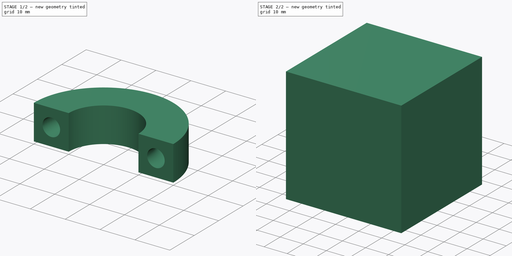
[diagram: build sequence overview — one tinted view per stage of 2, left to right]
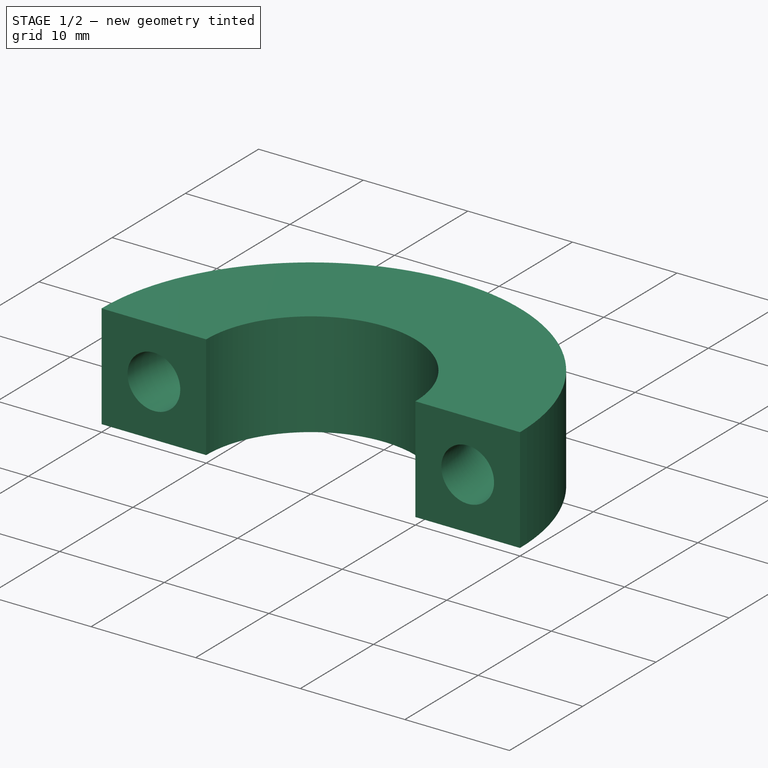
[diagram: stage 1 of 2 — iso view after this stage's code; geometry added in this stage tinted green]
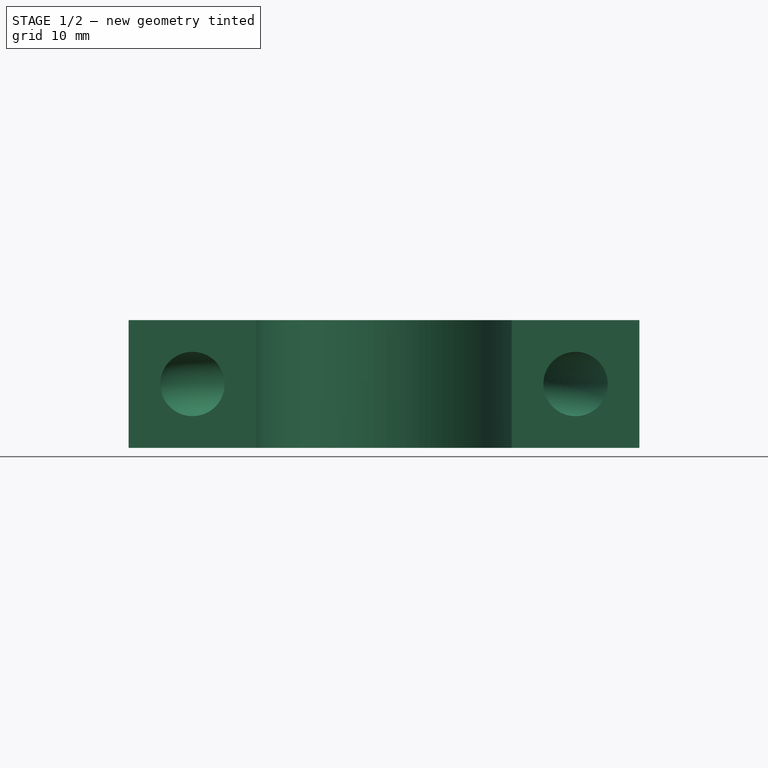
[diagram: stage 1 of 2 — front view after this stage's code; geometry added in this stage tinted green]
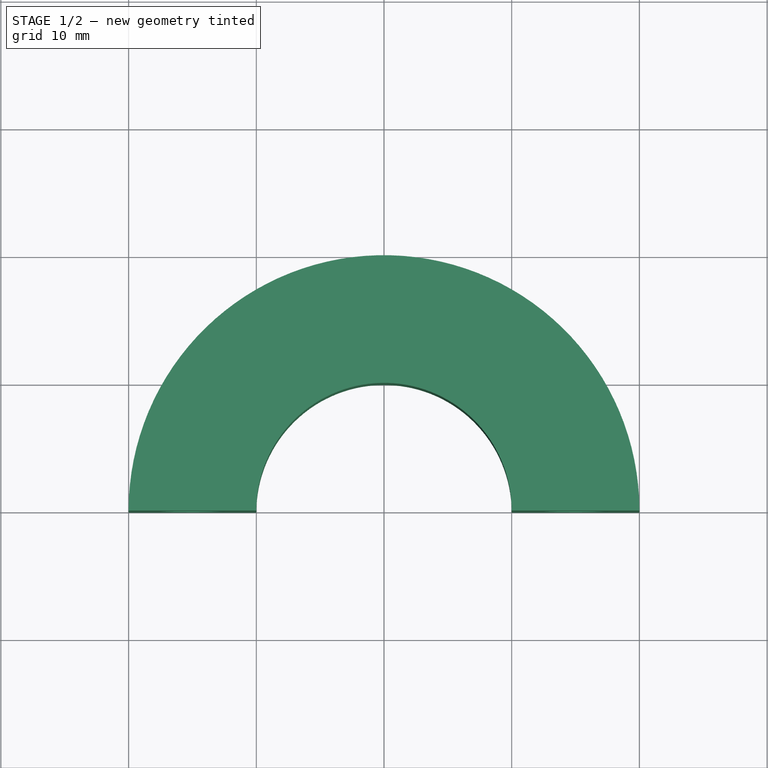
[diagram: stage 1 of 2 — top view after this stage's code; geometry added in this stage tinted green]
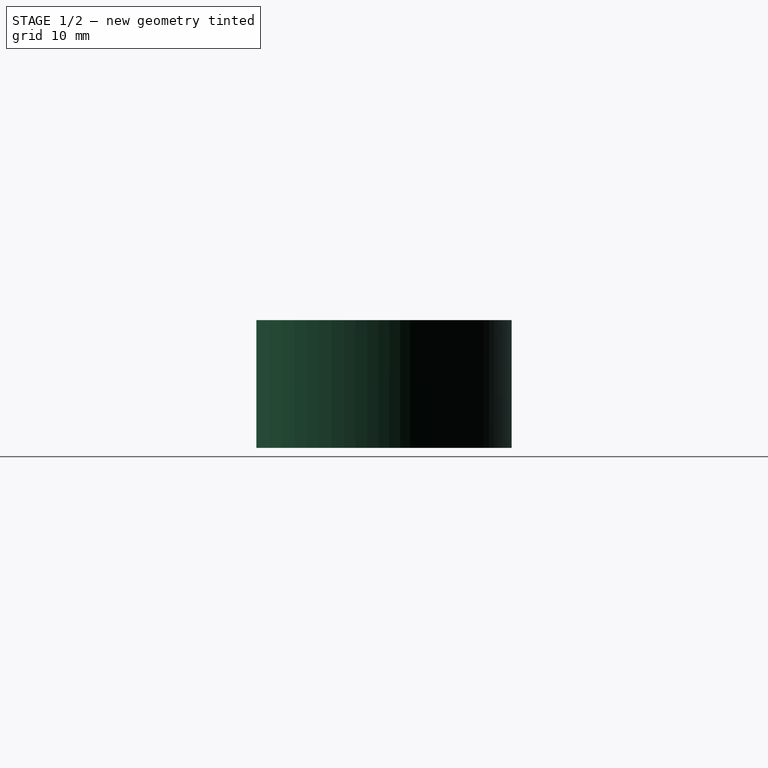
[diagram: stage 1 of 2 — right view after this stage's code; geometry added in this stage tinted green]
FCSTD DOCUMENT  (FreeCAD 1.0R39109 (Git))
Label: revolveTest-torus
License: All rights reserved
LicenseURL: http://en.wikipedia.org/wiki/All_rights_reserved
objects: App::DocumentObjectGroupPython×1248, App::Part×2, Part::FeaturePython×1, Sketcher::SketchObject×1, Part::Revolution×1
note: 4 computed .brp shape members not serialized (recipe doc carries the construction recipe); baked Part::Feature solids carry a one-line shape summary decoded from their .brp

FEATURE [Sketcher::SketchObject] Sketch001
  ArcFitTolerance = 0
  FullyConstrained = true
  MakeInternals = false
  Placement = pos=(0,0,0) rot=(1,0,0;1.5708rad)
  sketch-geometry (5):
    g0: Circle CenterX=15 CenterY=5 CenterZ=0 NormalX=0 NormalY=0 NormalZ=1 AngleXU=0 Radius=2.52
    g1: LineSegment StartX=10 StartY=10 StartZ=0 EndX=20 EndY=10 EndZ=0
    g2: LineSegment StartX=20 StartY=10 StartZ=0 EndX=20 EndY=0 EndZ=0
    g3: LineSegment StartX=20 StartY=0 StartZ=0 EndX=10 EndY=0 EndZ=0
    g4: LineSegment StartX=10 StartY=0 StartZ=0 EndX=10 EndY=10 EndZ=0
  constraints (15):
    c: Coincident(g1,g2)
    c: Coincident(g2,g3)
    c: Coincident(g3,g4)
    c: Coincident(g4,g1)
    c: Horizontal(g1)
    c: Horizontal(g3)
    c: Vertical(g2)
    c: Vertical(g4)
    c: PointOnObject(g2,g-1)
    c: DistanceX(g1,g1) = 10
    c: DistanceY(g4,g4) = 10
    c: Diameter(g0) = 5.04
    c: DistanceX(g0) = 15
    c: DistanceY(g0) = 5
    c: DistanceX(g1) = 10
FEATURE [Part::Revolution] Revolve
  Angle = 180
  Axis = (0,0,1)
  Base = (0,0,0)
  FaceMakerClass = Part::FaceMakerBullseye
  Solid = true
  Source = -> Sketch001
  Symmetric = false
  material = 261
FEATURE [App::Part] Part
  Group = -> [Sketch001,Revolve]
  Origin = -> Origin001
FEATURE [App::Part] worldVOL
  Group = -> [GDMLBox_WorldBox,Part]
  Origin = -> Origin
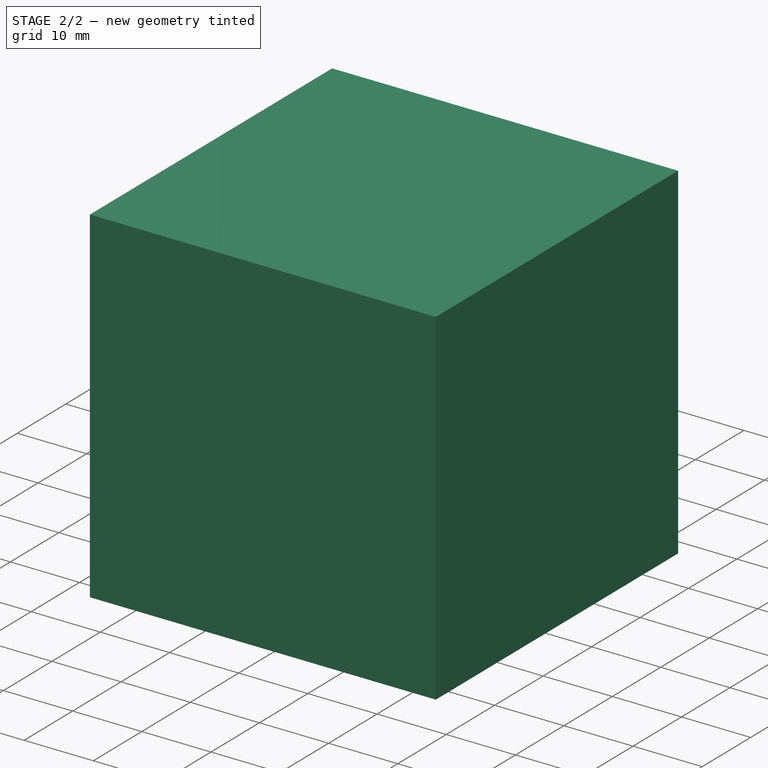
[diagram: stage 2 of 2 — iso view after this stage's code; geometry added in this stage tinted green]
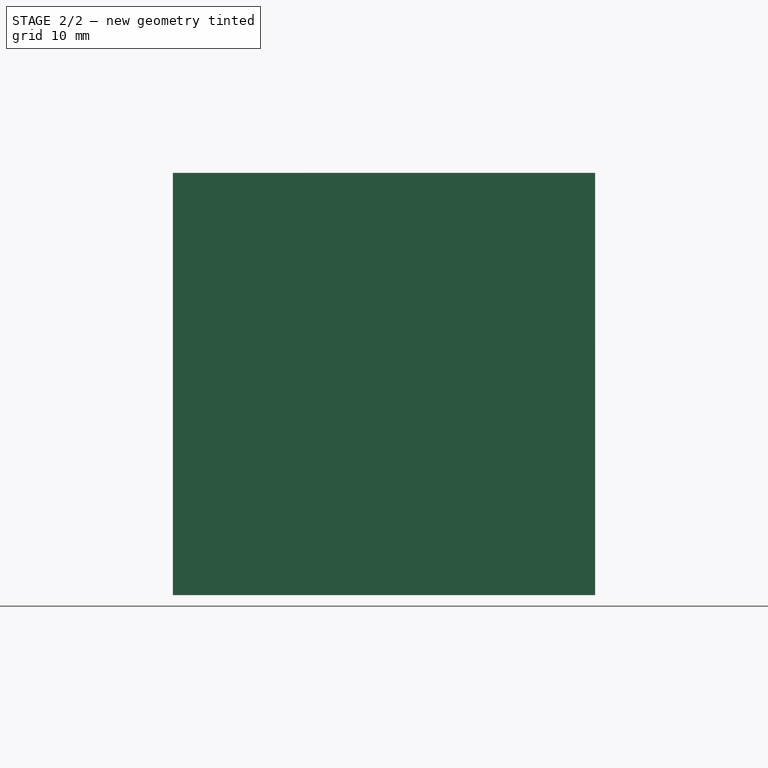
[diagram: stage 2 of 2 — front view after this stage's code; geometry added in this stage tinted green]
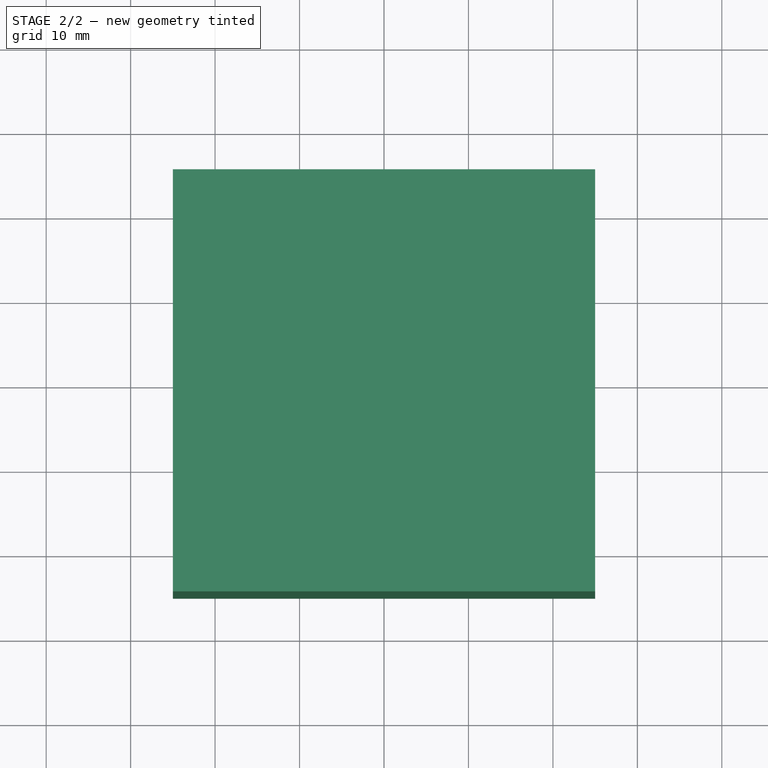
[diagram: stage 2 of 2 — top view after this stage's code; geometry added in this stage tinted green]
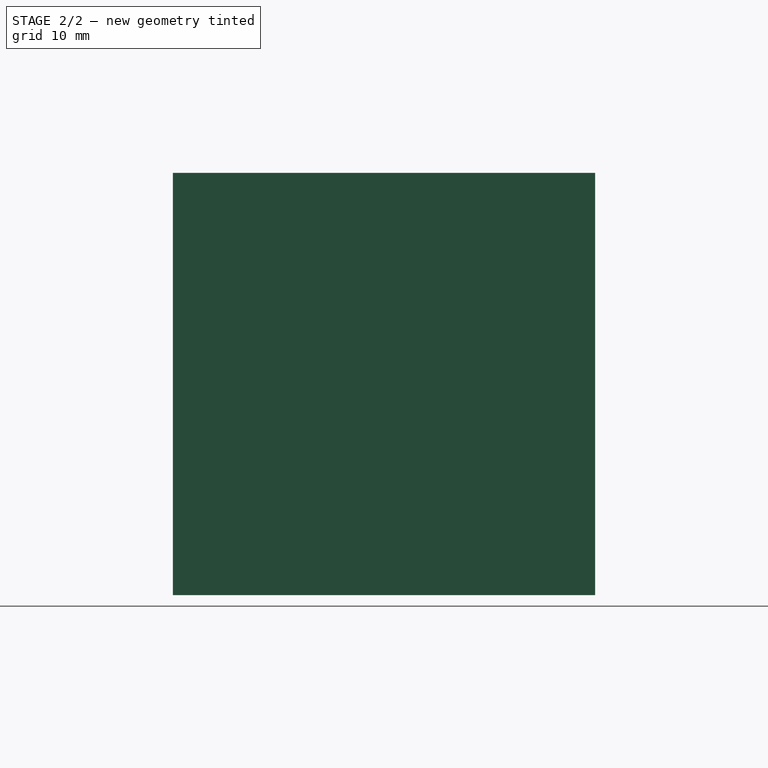
[diagram: stage 2 of 2 — right view after this stage's code; geometry added in this stage tinted green]
FEATURE [App::DocumentObjectGroupPython] HALFPI  # scripted group (container) (typed FeaturePython)
  name = HALFPI
  value = pi/2.
FEATURE [App::DocumentObjectGroupPython] PI  # scripted group (container) (typed FeaturePython)
  name = PI
  value = 1.*pi
FEATURE [App::DocumentObjectGroupPython] TWOPI  # scripted group (container) (typed FeaturePython)
  name = TWOPI
  value = 2.*pi
FEATURE [App::DocumentObjectGroupPython] Constants  # scripted group (container) (typed FeaturePython)
  Group = -> [HALFPI,PI,TWOPI]
FEATURE [App::DocumentObjectGroupPython] Variables  # scripted group (container) (typed FeaturePython)
FEATURE [App::DocumentObjectGroupPython] Quantities  # scripted group (container) (typed FeaturePython)
FEATURE [App::DocumentObjectGroupPython] Isotopes  # scripted group (container) (typed FeaturePython)
FEATURE [App::DocumentObjectGroupPython] Elements  # scripted group (container) (typed FeaturePython)
FEATURE [App::DocumentObjectGroupPython] G4Isotopes  # scripted group (container) (typed FeaturePython)
FEATURE [App::DocumentObjectGroupPython] H_element  # scripted group (container) (typed FeaturePython)
  Z = 1
  atom_value = 1.008
  formula = H
  name = H_element
FEATURE [App::DocumentObjectGroupPython] He_element  # scripted group (container) (typed FeaturePython)
  Z = 2
  atom_value = 4.0026
  formula = He
  name = He_element
FEATURE [App::DocumentObjectGroupPython] Li_element  # scripted group (container) (typed FeaturePython)
  Z = 3
  atom_value = 6.94
  formula = Li
  name = Li_element
FEATURE [App::DocumentObjectGroupPython] Be_element  # scripted group (container) (typed FeaturePython)
  Z = 4
  atom_value = 9.01218
  formula = Be
  name = Be_element
FEATURE [App::DocumentObjectGroupPython] B_element  # scripted group (container) (typed FeaturePython)
  Z = 5
  atom_value = 10.81
  formula = B
  name = B_element
FEATURE [App::DocumentObjectGroupPython] C_element  # scripted group (container) (typed FeaturePython)
  Z = 6
  atom_value = 12.011
  formula = C
  name = C_element
FEATURE [App::DocumentObjectGroupPython] N_element  # scripted group (container) (typed FeaturePython)
  Z = 7
  atom_value = 14.007
  formula = N
  name = N_element
FEATURE [App::DocumentObjectGroupPython] O_element  # scripted group (container) (typed FeaturePython)
  Z = 8
  atom_value = 15.999
  formula = O
  name = O_element
FEATURE [App::DocumentObjectGroupPython] F_element  # scripted group (container) (typed FeaturePython)
  Z = 9
  atom_value = 18.9984
  formula = F
  name = F_element
FEATURE [App::DocumentObjectGroupPython] Ne_element  # scripted group (container) (typed FeaturePython)
  Z = 10
  atom_value = 20.1797
  formula = Ne
  name = Ne_element
FEATURE [App::DocumentObjectGroupPython] Na_element  # scripted group (container) (typed FeaturePython)
  Z = 11
  atom_value = 22.9898
  formula = Na
  name = Na_element
FEATURE [App::DocumentObjectGroupPython] Mg_element  # scripted group (container) (typed FeaturePython)
  Z = 12
  atom_value = 24.305
  formula = Mg
  name = Mg_element
FEATURE [App::DocumentObjectGroupPython] Al_element  # scripted group (container) (typed FeaturePython)
  Z = 13
  atom_value = 26.9815
  formula = Al
  name = Al_element
FEATURE [App::DocumentObjectGroupPython] Si_element  # scripted group (container) (typed FeaturePython)
  Z = 14
  atom_value = 28.085
  formula = Si
  name = Si_element
FEATURE [App::DocumentObjectGroupPython] P_element  # scripted group (container) (typed FeaturePython)
  Z = 15
  atom_value = 30.9738
  formula = P
  name = P_element
FEATURE [App::DocumentObjectGroupPython] S_element  # scripted group (container) (typed FeaturePython)
  Z = 16
  atom_value = 32.06
  formula = S
  name = S_element
FEATURE [App::DocumentObjectGroupPython] Cl_element  # scripted group (container) (typed FeaturePython)
  Z = 17
  atom_value = 35.45
  formula = Cl
  name = Cl_element
FEATURE [App::DocumentObjectGroupPython] Ar_element  # scripted group (container) (typed FeaturePython)
  Z = 18
  atom_value = 39.95
  formula = Ar
  name = Ar_element
FEATURE [App::DocumentObjectGroupPython] K_element  # scripted group (container) (typed FeaturePython)
  Z = 19
  atom_value = 39.0983
  formula = K
  name = K_element
FEATURE [App::DocumentObjectGroupPython] Ca_element  # scripted group (container) (typed FeaturePython)
  Z = 20
  atom_value = 40.078
  formula = Ca
  name = Ca_element
FEATURE [App::DocumentObjectGroupPython] Sc_element  # scripted group (container) (typed FeaturePython)
  Z = 21
  atom_value = 44.9559
  formula = Sc
  name = Sc_element
FEATURE [App::DocumentObjectGroupPython] Ti_element  # scripted group (container) (typed FeaturePython)
  Z = 22
  atom_value = 47.867
  formula = Ti
  name = Ti_element
FEATURE [App::DocumentObjectGroupPython] V_element  # scripted group (container) (typed FeaturePython)
  Z = 23
  atom_value = 50.9415
  formula = V
  name = V_element
FEATURE [App::DocumentObjectGroupPython] Cr_element  # scripted group (container) (typed FeaturePython)
  Z = 24
  atom_value = 51.9961
  formula = Cr
  name = Cr_element
FEATURE [App::DocumentObjectGroupPython] Mn_element  # scripted group (container) (typed FeaturePython)
  Z = 25
  atom_value = 54.938
  formula = Mn
  name = Mn_element
FEATURE [App::DocumentObjectGroupPython] Fe_element  # scripted group (container) (typed FeaturePython)
  Z = 26
  atom_value = 55.845
  formula = Fe
  name = Fe_element
FEATURE [App::DocumentObjectGroupPython] Co_element  # scripted group (container) (typed FeaturePython)
  Z = 27
  atom_value = 58.9332
  formula = Co
  name = Co_element
FEATURE [App::DocumentObjectGroupPython] Ni_element  # scripted group (container) (typed FeaturePython)
  Z = 28
  atom_value = 58.6934
  formula = Ni
  name = Ni_element
FEATURE [App::DocumentObjectGroupPython] Cu_element  # scripted group (container) (typed FeaturePython)
  Z = 29
  atom_value = 63.546
  formula = Cu
  name = Cu_element
FEATURE [App::DocumentObjectGroupPython] Zn_element  # scripted group (container) (typed FeaturePython)
  Z = 30
  atom_value = 65.38
  formula = Zn
  name = Zn_element
FEATURE [App::DocumentObjectGroupPython] Ga_element  # scripted group (container) (typed FeaturePython)
  Z = 31
  atom_value = 69.723
  formula = Ga
  name = Ga_element
FEATURE [App::DocumentObjectGroupPython] Ge_element  # scripted group (container) (typed FeaturePython)
  Z = 32
  atom_value = 72.63
  formula = Ge
  name = Ge_element
FEATURE [App::DocumentObjectGroupPython] As_element  # scripted group (container) (typed FeaturePython)
  Z = 33
  atom_value = 74.9216
  formula = As
  name = As_element
FEATURE [App::DocumentObjectGroupPython] Se_element  # scripted group (container) (typed FeaturePython)
  Z = 34
  atom_value = 78.971
  formula = Se
  name = Se_element
FEATURE [App::DocumentObjectGroupPython] Br_element  # scripted group (container) (typed FeaturePython)
  Z = 35
  atom_value = 79.904
  formula = Br
  name = Br_element
FEATURE [App::DocumentObjectGroupPython] Kr_element  # scripted group (container) (typed FeaturePython)
  Z = 36
  atom_value = 83.798
  formula = Kr
  name = Kr_element
FEATURE [App::DocumentObjectGroupPython] Rb_element  # scripted group (container) (typed FeaturePython)
  Z = 37
  atom_value = 85.4678
  formula = Rb
  name = Rb_element
FEATURE [App::DocumentObjectGroupPython] Sr_element  # scripted group (container) (typed FeaturePython)
  Z = 38
  atom_value = 87.62
  formula = Sr
  name = Sr_element
FEATURE [App::DocumentObjectGroupPython] Y_element  # scripted group (container) (typed FeaturePython)
  Z = 39
  atom_value = 88.9058
  formula = Y
  name = Y_element
FEATURE [App::DocumentObjectGroupPython] Zr_element  # scripted group (container) (typed FeaturePython)
  Z = 40
  atom_value = 91.224
  formula = Zr
  name = Zr_element
FEATURE [App::DocumentObjectGroupPython] Nb_element  # scripted group (container) (typed FeaturePython)
  Z = 41
  atom_value = 92.9064
  formula = Nb
  name = Nb_element
FEATURE [App::DocumentObjectGroupPython] Mo_element  # scripted group (container) (typed FeaturePython)
  Z = 42
  atom_value = 95.95
  formula = Mo
  name = Mo_element
FEATURE [App::DocumentObjectGroupPython] Tc_element  # scripted group (container) (typed FeaturePython)
  Z = 43
  atom_value = 97
  formula = Tc
  name = Tc_element
FEATURE [App::DocumentObjectGroupPython] Ru_element  # scripted group (container) (typed FeaturePython)
  Z = 44
  atom_value = 101.07
  formula = Ru
  name = Ru_element
FEATURE [App::DocumentObjectGroupPython] Rh_element  # scripted group (container) (typed FeaturePython)
  Z = 45
  atom_value = 102.905
  formula = Rh
  name = Rh_element
FEATURE [App::DocumentObjectGroupPython] Pd_element  # scripted group (container) (typed FeaturePython)
  Z = 46
  atom_value = 106.42
  formula = Pd
  name = Pd_element
FEATURE [App::DocumentObjectGroupPython] Ag_element  # scripted group (container) (typed FeaturePython)
  Z = 47
  atom_value = 107.868
  formula = Ag
  name = Ag_element
FEATURE [App::DocumentObjectGroupPython] Cd_element  # scripted group (container) (typed FeaturePython)
  Z = 48
  atom_value = 112.414
  formula = Cd
  name = Cd_element
FEATURE [App::DocumentObjectGroupPython] In_element  # scripted group (container) (typed FeaturePython)
  Z = 49
  atom_value = 114.818
  formula = In
  name = In_element
FEATURE [App::DocumentObjectGroupPython] Sn_element  # scripted group (container) (typed FeaturePython)
  Z = 50
  atom_value = 118.71
  formula = Sn
  name = Sn_element
FEATURE [App::DocumentObjectGroupPython] Sb_element  # scripted group (container) (typed FeaturePython)
  Z = 51
  atom_value = 121.76
  formula = Sb
  name = Sb_element
FEATURE [App::DocumentObjectGroupPython] Te_element  # scripted group (container) (typed FeaturePython)
  Z = 52
  atom_value = 127.6
  formula = Te
  name = Te_element
FEATURE [App::DocumentObjectGroupPython] I_element  # scripted group (container) (typed FeaturePython)
  Z = 53
  atom_value = 126.904
  formula = I
  name = I_element
FEATURE [App::DocumentObjectGroupPython] Xe_element  # scripted group (container) (typed FeaturePython)
  Z = 54
  atom_value = 131.293
  formula = Xe
  name = Xe_element
FEATURE [App::DocumentObjectGroupPython] Cs_element  # scripted group (container) (typed FeaturePython)
  Z = 55
  atom_value = 132.905
  formula = Cs
  name = Cs_element
FEATURE [App::DocumentObjectGroupPython] Ba_element  # scripted group (container) (typed FeaturePython)
  Z = 56
  atom_value = 137.327
  formula = Ba
  name = Ba_element
FEATURE [App::DocumentObjectGroupPython] La_element  # scripted group (container) (typed FeaturePython)
  Z = 57
  atom_value = 138.905
  formula = La
  name = La_element
FEATURE [App::DocumentObjectGroupPython] Ce_element  # scripted group (container) (typed FeaturePython)
  Z = 58
  atom_value = 140.116
  formula = Ce
  name = Ce_element
FEATURE [App::DocumentObjectGroupPython] Pr_element  # scripted group (container) (typed FeaturePython)
  Z = 59
  atom_value = 140.908
  formula = Pr
  name = Pr_element
FEATURE [App::DocumentObjectGroupPython] Nd_element  # scripted group (container) (typed FeaturePython)
  Z = 60
  atom_value = 144.242
  formula = Nd
  name = Nd_element
FEATURE [App::DocumentObjectGroupPython] Pm_element  # scripted group (container) (typed FeaturePython)
  Z = 61
  atom_value = 145
  formula = Pm
  name = Pm_element
FEATURE [App::DocumentObjectGroupPython] Sm_element  # scripted group (container) (typed FeaturePython)
  Z = 62
  atom_value = 150.36
  formula = Sm
  name = Sm_element
FEATURE [App::DocumentObjectGroupPython] Eu_element  # scripted group (container) (typed FeaturePython)
  Z = 63
  atom_value = 151.964
  formula = Eu
  name = Eu_element
FEATURE [App::DocumentObjectGroupPython] Gd_element  # scripted group (container) (typed FeaturePython)
  Z = 64
  atom_value = 157.25
  formula = Gd
  name = Gd_element
FEATURE [App::DocumentObjectGroupPython] Tb_element  # scripted group (container) (typed FeaturePython)
  Z = 65
  atom_value = 158.925
  formula = Tb
  name = Tb_element
FEATURE [App::DocumentObjectGroupPython] Dy_element  # scripted group (container) (typed FeaturePython)
  Z = 66
  atom_value = 162.5
  formula = Dy
  name = Dy_element
FEATURE [App::DocumentObjectGroupPython] Ho_element  # scripted group (container) (typed FeaturePython)
  Z = 67
  atom_value = 164.93
  formula = Ho
  name = Ho_element
FEATURE [App::DocumentObjectGroupPython] Er_element  # scripted group (container) (typed FeaturePython)
  Z = 68
  atom_value = 167.259
  formula = Er
  name = Er_element
FEATURE [App::DocumentObjectGroupPython] Tm_element  # scripted group (container) (typed FeaturePython)
  Z = 69
  atom_value = 168.934
  formula = Tm
  name = Tm_element
FEATURE [App::DocumentObjectGroupPython] Yb_element  # scripted group (container) (typed FeaturePython)
  Z = 70
  atom_value = 173.045
  formula = Yb
  name = Yb_element
FEATURE [App::DocumentObjectGroupPython] Lu_element  # scripted group (container) (typed FeaturePython)
  Z = 71
  atom_value = 174.967
  formula = Lu
  name = Lu_element
FEATURE [App::DocumentObjectGroupPython] Hf_element  # scripted group (container) (typed FeaturePython)
  Z = 72
  atom_value = 178.49
  formula = Hf
  name = Hf_element
FEATURE [App::DocumentObjectGroupPython] Ta_element  # scripted group (container) (typed FeaturePython)
  Z = 73
  atom_value = 180.948
  formula = Ta
  name = Ta_element
FEATURE [App::DocumentObjectGroupPython] W_element  # scripted group (container) (typed FeaturePython)
  Z = 74
  atom_value = 183.84
  formula = W
  name = W_element
FEATURE [App::DocumentObjectGroupPython] Re_element  # scripted group (container) (typed FeaturePython)
  Z = 75
  atom_value = 186.207
  formula = Re
  name = Re_element
FEATURE [App::DocumentObjectGroupPython] Os_element  # scripted group (container) (typed FeaturePython)
  Z = 76
  atom_value = 190.23
  formula = Os
  name = Os_element
FEATURE [App::DocumentObjectGroupPython] Ir_element  # scripted group (container) (typed FeaturePython)
  Z = 77
  atom_value = 192.217
  formula = Ir
  name = Ir_element
FEATURE [App::DocumentObjectGroupPython] Pt_element  # scripted group (container) (typed FeaturePython)
  Z = 78
  atom_value = 195.084
  formula = Pt
  name = Pt_element
FEATURE [App::DocumentObjectGroupPython] Au_element  # scripted group (container) (typed FeaturePython)
  Z = 79
  atom_value = 196.967
  formula = Au
  name = Au_element
FEATURE [App::DocumentObjectGroupPython] Hg_element  # scripted group (container) (typed FeaturePython)
  Z = 80
  atom_value = 200.592
  formula = Hg
  name = Hg_element
FEATURE [App::DocumentObjectGroupPython] Tl_element  # scripted group (container) (typed FeaturePython)
  Z = 81
  atom_value = 204.38
  formula = Tl
  name = Tl_element
FEATURE [App::DocumentObjectGroupPython] Pb_element  # scripted group (container) (typed FeaturePython)
  Z = 82
  atom_value = 207.2
  formula = Pb
  name = Pb_element
FEATURE [App::DocumentObjectGroupPython] Bi_element  # scripted group (container) (typed FeaturePython)
  Z = 83
  atom_value = 208.98
  formula = Bi
  name = Bi_element
FEATURE [App::DocumentObjectGroupPython] Po_element  # scripted group (container) (typed FeaturePython)
  Z = 84
  atom_value = 209
  formula = Po
  name = Po_element
FEATURE [App::DocumentObjectGroupPython] At_element  # scripted group (container) (typed FeaturePython)
  Z = 85
  atom_value = 210
  formula = At
  name = At_element
FEATURE [App::DocumentObjectGroupPython] Rn_element  # scripted group (container) (typed FeaturePython)
  Z = 86
  atom_value = 222
  formula = Rn
  name = Rn_element
FEATURE [App::DocumentObjectGroupPython] Fr_element  # scripted group (container) (typed FeaturePython)
  Z = 87
  atom_value = 223
  formula = Fr
  name = Fr_element
FEATURE [App::DocumentObjectGroupPython] Ra_element  # scripted group (container) (typed FeaturePython)
  Z = 88
  atom_value = 226
  formula = Ra
  name = Ra_element
FEATURE [App::DocumentObjectGroupPython] Ac_element  # scripted group (container) (typed FeaturePython)
  Z = 89
  atom_value = 227
  formula = Ac
  name = Ac_element
FEATURE [App::DocumentObjectGroupPython] Th_element  # scripted group (container) (typed FeaturePython)
  Z = 90
  atom_value = 232.038
  formula = Th
  name = Th_element
FEATURE [App::DocumentObjectGroupPython] Pa_element  # scripted group (container) (typed FeaturePython)
  Z = 91
  atom_value = 231.036
  formula = Pa
  name = Pa_element
FEATURE [App::DocumentObjectGroupPython] U_element  # scripted group (container) (typed FeaturePython)
  Z = 92
  atom_value = 238.029
  formula = U
  name = U_element
FEATURE [App::DocumentObjectGroupPython] Np_element  # scripted group (container) (typed FeaturePython)
  Z = 93
  atom_value = 237
  formula = Np
  name = Np_element
FEATURE [App::DocumentObjectGroupPython] Pu_element  # scripted group (container) (typed FeaturePython)
  Z = 94
  atom_value = 244
  formula = Pu
  name = Pu_element
FEATURE [App::DocumentObjectGroupPython] Am_element  # scripted group (container) (typed FeaturePython)
  Z = 95
  atom_value = 243
  formula = Am
  name = Am_element
FEATURE [App::DocumentObjectGroupPython] Cm_element  # scripted group (container) (typed FeaturePython)
  Z = 96
  atom_value = 247
  formula = Cm
  name = Cm_element
FEATURE [App::DocumentObjectGroupPython] Bk_element  # scripted group (container) (typed FeaturePython)
  Z = 97
  atom_value = 247
  formula = Bk
  name = Bk_element
FEATURE [App::DocumentObjectGroupPython] Cf_element  # scripted group (container) (typed FeaturePython)
  Z = 98
  atom_value = 251
  formula = Cf
  name = Cf_element
FEATURE [App::DocumentObjectGroupPython] G4Elements  # scripted group (container) (typed FeaturePython)
  Group = -> [H_element,He_element,Li_element,Be_element,B_element,C_element,N_element,O_element,F_element,Ne_element,Na_element,Mg_element,Al_element,Si_element,P_element,S_element,Cl_element,Ar_element,K_element,Ca_element,Sc_element,Ti_element,V_element,Cr_element,Mn_element,Fe_element,Co_element,Ni_element,Cu_element,Zn_element,Ga_element,Ge_element,As_element,Se_element,Br_element,Kr_element,Rb_element,+61 more]
FEATURE [App::DocumentObjectGroupPython] H_element001  label="H_element : 0.101"  # scripted group (container) (typed FeaturePython)
  n = 0.101327
FEATURE [App::DocumentObjectGroupPython] C_element001  label="C_element : 0.775"  # scripted group (container) (typed FeaturePython)
  n = 0.7755
FEATURE [App::DocumentObjectGroupPython] N_element001  label="N_element : 0.035"  # scripted group (container) (typed FeaturePython)
  n = 0.035057
FEATURE [App::DocumentObjectGroupPython] O_element001  label="O_element : 0.052"  # scripted group (container) (typed FeaturePython)
  n = 0.0523159
FEATURE [App::DocumentObjectGroupPython] F_element001  label="F_element : 0.017"  # scripted group (container) (typed FeaturePython)
  n = 0.017422
FEATURE [App::DocumentObjectGroupPython] Ca_element001  label="Ca_element : 0.018"  # scripted group (container) (typed FeaturePython)
  n = 0.018378
FEATURE [App::DocumentObjectGroupPython] G4_A_150_TISSUE  label="G4_A-150_TISSUE"  # scripted group (container) (typed FeaturePython)
  Dunit = g/cm3
  Dvalue = 1.127
  Group = -> [H_element001,C_element001,N_element001,O_element001,F_element001,Ca_element001]
  conduct = 2
  density = 1
  expand = 3
  formula = G4_A-150_TISSUE
  name = G4_A-150_TISSUE
  specific = 4
FEATURE [App::DocumentObjectGroupPython] C_element002  label="C_element : 3"  # scripted group (container) (typed FeaturePython)
  n = 3
  ref = C_element
FEATURE [App::DocumentObjectGroupPython] H_element002  label="H_element : 6"  # scripted group (container) (typed FeaturePython)
  n = 6
  ref = H_element
FEATURE [App::DocumentObjectGroupPython] O_element002  label="O_element : 1"  # scripted group (container) (typed FeaturePython)
  n = 1
  ref = O_element
FEATURE [App::DocumentObjectGroupPython] G4_ACETONE  # scripted group (container) (typed FeaturePython)
  Dunit = g/cm3
  Dvalue = 0.7899
  Group = -> [C_element002,H_element002,O_element002]
  conduct = 2
  density = 1
  expand = 3
  formula = G4_ACETONE
  name = G4_ACETONE
  specific = 4
FEATURE [App::DocumentObjectGroupPython] C_element003  label="C_element : 2"  # scripted group (container) (typed FeaturePython)
  n = 2
  ref = C_element
FEATURE [App::DocumentObjectGroupPython] H_element003  label="H_element : 2"  # scripted group (container) (typed FeaturePython)
  n = 2
  ref = H_element
FEATURE [App::DocumentObjectGroupPython] G4_ACETYLENE  # scripted group (container) (typed FeaturePython)
  Dunit = g/cm3
  Dvalue = 0.0010967
  Group = -> [C_element003,H_element003]
  conduct = 2
  density = 1
  expand = 3
  formula = G4_ACETYLENE
  name = G4_ACETYLENE
  specific = 4
FEATURE [App::DocumentObjectGroupPython] C_element004  label="C_element : 5"  # scripted group (container) (typed FeaturePython)
  n = 5
  ref = C_element
FEATURE [App::DocumentObjectGroupPython] H_element004  label="H_element : 5"  # scripted group (container) (typed FeaturePython)
  n = 5
  ref = H_element
FEATURE [App::DocumentObjectGroupPython] N_element002  label="N_element : 5"  # scripted group (container) (typed FeaturePython)
  n = 5
  ref = N_element
FEATURE [App::DocumentObjectGroupPython] G4_ADENINE  # scripted group (container) (typed FeaturePython)
  Dunit = g/cm3
  Dvalue = 1.6
  Group = -> [C_element004,H_element004,N_element002]
  conduct = 2
  density = 1
  expand = 3
  formula = G4_ADENINE
  name = G4_ADENINE
  specific = 4
FEATURE [App::DocumentObjectGroupPython] H_element005  label="H_element : 0.114"  # scripted group (container) (typed FeaturePython)
  n = 0.114
FEATURE [App::DocumentObjectGroupPython] C_element005  label="C_element : 0.598"  # scripted group (container) (typed FeaturePython)
  n = 0.598
FEATURE [App::DocumentObjectGroupPython] N_element003  label="N_element : 0.007"  # scripted group (container) (typed FeaturePython)
  n = 0.007
FEATURE [App::DocumentObjectGroupPython] O_element003  label="O_element : 0.278"  # scripted group (container) (typed FeaturePython)
  n = 0.278
FEATURE [App::DocumentObjectGroupPython] Na_element001  label="Na_element : 0.001"  # scripted group (container) (typed FeaturePython)
  n = 0.001
FEATURE [App::DocumentObjectGroupPython] S_element001  label="S_element : 0.001"  # scripted group (container) (typed FeaturePython)
  n = 0.001
FEATURE [App::DocumentObjectGroupPython] Cl_element001  label="Cl_element : 0.001"  # scripted group (container) (typed FeaturePython)
  n = 0.001
FEATURE [App::DocumentObjectGroupPython] G4_ADIPOSE_TISSUE_ICRP  # scripted group (container) (typed FeaturePython)
  Dunit = g/cm3
  Dvalue = 0.95
  Group = -> [H_element005,C_element005,N_element003,O_element003,Na_element001,S_element001,Cl_element001]
  conduct = 2
  density = 1
  expand = 3
  formula = G4_ADIPOSE_TISSUE_ICRP
  name = G4_ADIPOSE_TISSUE_ICRP
  specific = 4
FEATURE [App::DocumentObjectGroupPython] C_element006  label="C_element : 0.000"  # scripted group (container) (typed FeaturePython)
  n = 0.000124
FEATURE [App::DocumentObjectGroupPython] N_element004  label="N_element : 0.755"  # scripted group (container) (typed FeaturePython)
  n = 0.755268
FEATURE [App::DocumentObjectGroupPython] O_element004  label="O_element : 0.232"  # scripted group (container) (typed FeaturePython)
  n = 0.231781
FEATURE [App::DocumentObjectGroupPython] Ar_element001  label="Ar_element : 0.013"  # scripted group (container) (typed FeaturePython)
  n = 0.012827
FEATURE [App::DocumentObjectGroupPython] G4_AIR  # scripted group (container) (typed FeaturePython)
  Dunit = g/cm3
  Dvalue = 0.00120479
  Group = -> [C_element006,N_element004,O_element004,Ar_element001]
  conduct = 2
  density = 1
  expand = 3
  formula = G4_AIR
  name = G4_AIR
  specific = 4
FEATURE [App::DocumentObjectGroupPython] C_element007  label="C_element : 006"  # scripted group (container) (typed FeaturePython)
  n = 3
  ref = C_element
FEATURE [App::DocumentObjectGroupPython] H_element006  label="H_element : 7"  # scripted group (container) (typed FeaturePython)
  n = 7
  ref = H_element
FEATURE [App::DocumentObjectGroupPython] N_element005  label="N_element : 1"  # scripted group (container) (typed FeaturePython)
  n = 1
  ref = N_element
FEATURE [App::DocumentObjectGroupPython] O_element005  label="O_element : 2"  # scripted group (container) (typed FeaturePython)
  n = 2
  ref = O_element
FEATURE [App::DocumentObjectGroupPython] G4_ALANINE  # scripted group (container) (typed FeaturePython)
  Dunit = g/cm3
  Dvalue = 1.42
  Group = -> [C_element007,H_element006,N_element005,O_element005]
  conduct = 2
  density = 1
  expand = 3
  formula = G4_ALANINE
  name = G4_ALANINE
  specific = 4
FEATURE [App::DocumentObjectGroupPython] Al_element001  label="Al_element : 2"  # scripted group (container) (typed FeaturePython)
  n = 2
  ref = Al_element
FEATURE [App::DocumentObjectGroupPython] O_element006  label="O_element : 3"  # scripted group (container) (typed FeaturePython)
  n = 3
  ref = O_element
FEATURE [App::DocumentObjectGroupPython] G4_ALUMINUM_OXIDE  # scripted group (container) (typed FeaturePython)
  Dunit = g/cm3
  Dvalue = 3.97
  Group = -> [Al_element001,O_element006]
  conduct = 2
  density = 1
  expand = 3
  formula = G4_ALUMINUM_OXIDE
  name = G4_ALUMINUM_OXIDE
  specific = 4
FEATURE [App::DocumentObjectGroupPython] H_element007  label="H_element : 0.106"  # scripted group (container) (typed FeaturePython)
  n = 0.10593
FEATURE [App::DocumentObjectGroupPython] C_element008  label="C_element : 0.789"  # scripted group (container) (typed FeaturePython)
  n = 0.788974
FEATURE [App::DocumentObjectGroupPython] O_element007  label="O_element : 0.105"  # scripted group (container) (typed FeaturePython)
  n = 0.105096
FEATURE [App::DocumentObjectGroupPython] G4_AMBER  # scripted group (container) (typed FeaturePython)
  Dunit = g/cm3
  Dvalue = 1.1
  Group = -> [H_element007,C_element008,O_element007]
  conduct = 2
  density = 1
  expand = 3
  formula = G4_AMBER
  name = G4_AMBER
  specific = 4
FEATURE [App::DocumentObjectGroupPython] N_element006  label="N_element : 006"  # scripted group (container) (typed FeaturePython)
  n = 1
  ref = N_element
FEATURE [App::DocumentObjectGroupPython] H_element008  label="H_element : 3"  # scripted group (container) (typed FeaturePython)
  n = 3
  ref = H_element
FEATURE [App::DocumentObjectGroupPython] G4_AMMONIA  # scripted group (container) (typed FeaturePython)
  Dunit = g/cm3
  Dvalue = 0.000826019
  Group = -> [N_element006,H_element008]
  conduct = 2
  density = 1
  expand = 3
  formula = G4_AMMONIA
  name = G4_AMMONIA
  specific = 4
FEATURE [App::DocumentObjectGroupPython] C_element009  label="C_element : 6"  # scripted group (container) (typed FeaturePython)
  n = 6
  ref = C_element
FEATURE [App::DocumentObjectGroupPython] H_element009  label="H_element : 008"  # scripted group (container) (typed FeaturePython)
  n = 7
  ref = H_element
FEATURE [App::DocumentObjectGroupPython] N_element007  label="N_element : 007"  # scripted group (container) (typed FeaturePython)
  n = 1
  ref = N_element
FEATURE [App::DocumentObjectGroupPython] G4_ANILINE  # scripted group (container) (typed FeaturePython)
  Dunit = g/cm3
  Dvalue = 1.0235
  Group = -> [C_element009,H_element009,N_element007]
  conduct = 2
  density = 1
  expand = 3
  formula = G4_ANILINE
  name = G4_ANILINE
  specific = 4
FEATURE [App::DocumentObjectGroupPython] C_element010  label="C_element : 14"  # scripted group (container) (typed FeaturePython)
  n = 14
  ref = C_element
FEATURE [App::DocumentObjectGroupPython] H_element010  label="H_element : 10"  # scripted group (container) (typed FeaturePython)
  n = 10
  ref = H_element
FEATURE [App::DocumentObjectGroupPython] G4_ANTHRACENE  # scripted group (container) (typed FeaturePython)
  Dunit = g/cm3
  Dvalue = 1.283
  Group = -> [C_element010,H_element010]
  conduct = 2
  density = 1
  expand = 3
  formula = G4_ANTHRACENE
  name = G4_ANTHRACENE
  specific = 4
FEATURE [App::DocumentObjectGroupPython] H_element011  label="H_element : 0.065"  # scripted group (container) (typed FeaturePython)
  n = 0.0654709
FEATURE [App::DocumentObjectGroupPython] C_element011  label="C_element : 0.537"  # scripted group (container) (typed FeaturePython)
  n = 0.536944
FEATURE [App::DocumentObjectGroupPython] N_element008  label="N_element : 0.021"  # scripted group (container) (typed FeaturePython)
  n = 0.0215
FEATURE [App::DocumentObjectGroupPython] O_element008  label="O_element : 0.032"  # scripted group (container) (typed FeaturePython)
  n = 0.032085
FEATURE [App::DocumentObjectGroupPython] F_element002  label="F_element : 0.167"  # scripted group (container) (typed FeaturePython)
  n = 0.167411
FEATURE [App::DocumentObjectGroupPython] Ca_element002  label="Ca_element : 0.177"  # scripted group (container) (typed FeaturePython)
  n = 0.176589
FEATURE [App::DocumentObjectGroupPython] G4_B_100_BONE  label="G4_B-100_BONE"  # scripted group (container) (typed FeaturePython)
  Dunit = g/cm3
  Dvalue = 1.45
  Group = -> [H_element011,C_element011,N_element008,O_element008,F_element002,Ca_element002]
  conduct = 2
  density = 1
  expand = 3
  formula = G4_B-100_BONE
  name = G4_B-100_BONE
  specific = 4
FEATURE [App::DocumentObjectGroupPython] H_element012  label="H_element : 0.057"  # scripted group (container) (typed FeaturePython)
  n = 0.057441
FEATURE [App::DocumentObjectGroupPython] C_element012  label="C_element : 0.790"  # scripted group (container) (typed FeaturePython)
  n = 0.774591
FEATURE [App::DocumentObjectGroupPython] O_element009  label="O_element : 0.168"  # scripted group (container) (typed FeaturePython)
  n = 0.167968
FEATURE [App::DocumentObjectGroupPython] G4_BAKELITE  # scripted group (container) (typed FeaturePython)
  Dunit = g/cm3
  Dvalue = 1.25
  Group = -> [H_element012,C_element012,O_element009]
  conduct = 2
  density = 1
  expand = 3
  formula = G4_BAKELITE
  name = G4_BAKELITE
  specific = 4
FEATURE [App::DocumentObjectGroupPython] Ba_element001  label="Ba_element : 1"  # scripted group (container) (typed FeaturePython)
  n = 1
  ref = Ba_element
FEATURE [App::DocumentObjectGroupPython] F_element003  label="F_element : 2"  # scripted group (container) (typed FeaturePython)
  n = 2
  ref = F_element
FEATURE [App::DocumentObjectGroupPython] G4_BARIUM_FLUORIDE  # scripted group (container) (typed FeaturePython)
  Dunit = g/cm3
  Dvalue = 4.89
  Group = -> [Ba_element001,F_element003]
  conduct = 2
  density = 1
  expand = 3
  formula = G4_BARIUM_FLUORIDE
  name = G4_BARIUM_FLUORIDE
  specific = 4
FEATURE [App::DocumentObjectGroupPython] Ba_element002  label="Ba_element : 002"  # scripted group (container) (typed FeaturePython)
  n = 1
  ref = Ba_element
FEATURE [App::DocumentObjectGroupPython] S_element002  label="S_element : 1"  # scripted group (container) (typed FeaturePython)
  n = 1
  ref = S_element
FEATURE [App::DocumentObjectGroupPython] O_element010  label="O_element : 4"  # scripted group (container) (typed FeaturePython)
  n = 4
  ref = O_element
FEATURE [App::DocumentObjectGroupPython] G4_BARIUM_SULFATE  # scripted group (container) (typed FeaturePython)
  Dunit = g/cm3
  Dvalue = 4.5
  Group = -> [Ba_element002,S_element002,O_element010]
  conduct = 2
  density = 1
  expand = 3
  formula = G4_BARIUM_SULFATE
  name = G4_BARIUM_SULFATE
  specific = 4
FEATURE [App::DocumentObjectGroupPython] C_element013  label="C_element : 007"  # scripted group (container) (typed FeaturePython)
  n = 6
  ref = C_element
FEATURE [App::DocumentObjectGroupPython] H_element013  label="H_element : 009"  # scripted group (container) (typed FeaturePython)
  n = 6
  ref = H_element
FEATURE [App::DocumentObjectGroupPython] G4_BENZENE  # scripted group (container) (typed FeaturePython)
  Dunit = g/cm3
  Dvalue = 0.87865
  Group = -> [C_element013,H_element013]
  conduct = 2
  density = 1
  expand = 3
  formula = G4_BENZENE
  name = G4_BENZENE
  specific = 4
FEATURE [App::DocumentObjectGroupPython] Be_element001  label="Be_element : 1"  # scripted group (container) (typed FeaturePython)
  n = 1
  ref = Be_element
FEATURE [App::DocumentObjectGroupPython] O_element011  label="O_element : 005"  # scripted group (container) (typed FeaturePython)
  n = 1
  ref = O_element
FEATURE [App::DocumentObjectGroupPython] G4_BERYLLIUM_OXIDE  # scripted group (container) (typed FeaturePython)
  Dunit = g/cm3
  Dvalue = 3.01
  Group = -> [Be_element001,O_element011]
  conduct = 2
  density = 1
  expand = 3
  formula = G4_BERYLLIUM_OXIDE
  name = G4_BERYLLIUM_OXIDE
  specific = 4
FEATURE [App::DocumentObjectGroupPython] Bi_element001  label="Bi_element : 4"  # scripted group (container) (typed FeaturePython)
  n = 4
  ref = Bi_element
FEATURE [App::DocumentObjectGroupPython] Ge_element001  label="Ge_element : 3"  # scripted group (container) (typed FeaturePython)
  n = 3
  ref = Ge_element
FEATURE [App::DocumentObjectGroupPython] O_element012  label="O_element : 12"  # scripted group (container) (typed FeaturePython)
  n = 12
  ref = O_element
FEATURE [App::DocumentObjectGroupPython] G4_BGO  # scripted group (container) (typed FeaturePython)
  Dunit = g/cm3
  Dvalue = 7.13
  Group = -> [Bi_element001,Ge_element001,O_element012]
  conduct = 2
  density = 1
  expand = 3
  formula = G4_BGO
  name = G4_BGO
  specific = 4
FEATURE [App::DocumentObjectGroupPython] H_element014  label="H_element : 0.102"  # scripted group (container) (typed FeaturePython)
  n = 0.102
FEATURE [App::DocumentObjectGroupPython] C_element014  label="C_element : 0.110"  # scripted group (container) (typed FeaturePython)
  n = 0.11
FEATURE [App::DocumentObjectGroupPython] N_element009  label="N_element : 0.033"  # scripted group (container) (typed FeaturePython)
  n = 0.033
FEATURE [App::DocumentObjectGroupPython] O_element013  label="O_element : 0.745"  # scripted group (container) (typed FeaturePython)
  n = 0.745
FEATURE [App::DocumentObjectGroupPython] Na_element002  label="Na_element : 0.002"  # scripted group (container) (typed FeaturePython)
  n = 0.001
FEATURE [App::DocumentObjectGroupPython] P_element001  label="P_element : 0.001"  # scripted group (container) (typed FeaturePython)
  n = 0.001
FEATURE [App::DocumentObjectGroupPython] S_element003  label="S_element : 0.002"  # scripted group (container) (typed FeaturePython)
  n = 0.002
FEATURE [App::DocumentObjectGroupPython] Cl_element002  label="Cl_element : 0.003"  # scripted group (container) (typed FeaturePython)
  n = 0.003
FEATURE [App::DocumentObjectGroupPython] K_element001  label="K_element : 0.002"  # scripted group (container) (typed FeaturePython)
  n = 0.002
FEATURE [App::DocumentObjectGroupPython] Fe_element001  label="Fe_element : 0.001"  # scripted group (container) (typed FeaturePython)
  n = 0.001
FEATURE [App::DocumentObjectGroupPython] G4_BLOOD_ICRP  # scripted group (container) (typed FeaturePython)
  Dunit = g/cm3
  Dvalue = 1.06
  Group = -> [H_element014,C_element014,N_element009,O_element013,Na_element002,P_element001,S_element003,Cl_element002,K_element001,Fe_element001]
  conduct = 2
  density = 1
  expand = 3
  formula = G4_BLOOD_ICRP
  name = G4_BLOOD_ICRP
  specific = 4
FEATURE [App::DocumentObjectGroupPython] H_element015  label="H_element : 0.064"  # scripted group (container) (typed FeaturePython)
  n = 0.064
FEATURE [App::DocumentObjectGroupPython] C_element015  label="C_element : 0.278"  # scripted group (container) (typed FeaturePython)
  n = 0.278
FEATURE [App::DocumentObjectGroupPython] N_element010  label="N_element : 0.027"  # scripted group (container) (typed FeaturePython)
  n = 0.027
FEATURE [App::DocumentObjectGroupPython] O_element014  label="O_element : 0.410"  # scripted group (container) (typed FeaturePython)
  n = 0.41
FEATURE [App::DocumentObjectGroupPython] Mg_element001  label="Mg_element : 0.002"  # scripted group (container) (typed FeaturePython)
  n = 0.002
FEATURE [App::DocumentObjectGroupPython] P_element002  label="P_element : 0.070"  # scripted group (container) (typed FeaturePython)
  n = 0.07
FEATURE [App::DocumentObjectGroupPython] S_element004  label="S_element : 0.003"  # scripted group (container) (typed FeaturePython)
  n = 0.002
FEATURE [App::DocumentObjectGroupPython] Ca_element003  label="Ca_element : 0.147"  # scripted group (container) (typed FeaturePython)
  n = 0.147
FEATURE [App::DocumentObjectGroupPython] G4_BONE_COMPACT_ICRU  # scripted group (container) (typed FeaturePython)
  Dunit = g/cm3
  Dvalue = 1.85
  Group = -> [H_element015,C_element015,N_element010,O_element014,Mg_element001,P_element002,S_element004,Ca_element003]
  conduct = 2
  density = 1
  expand = 3
  formula = G4_BONE_COMPACT_ICRU
  name = G4_BONE_COMPACT_ICRU
  specific = 4
FEATURE [App::DocumentObjectGroupPython] H_element016  label="H_element : 0.034"  # scripted group (container) (typed FeaturePython)
  n = 0.034
FEATURE [App::DocumentObjectGroupPython] C_element016  label="C_element : 0.155"  # scripted group (container) (typed FeaturePython)
  n = 0.155
FEATURE [App::DocumentObjectGroupPython] N_element011  label="N_element : 0.042"  # scripted group (container) (typed FeaturePython)
  n = 0.042
FEATURE [App::DocumentObjectGroupPython] O_element015  label="O_element : 0.435"  # scripted group (container) (typed FeaturePython)
  n = 0.435
FEATURE [App::DocumentObjectGroupPython] Na_element003  label="Na_element : 0.003"  # scripted group (container) (typed FeaturePython)
  n = 0.001
FEATURE [App::DocumentObjectGroupPython] Mg_element002  label="Mg_element : 0.003"  # scripted group (container) (typed FeaturePython)
  n = 0.002
FEATURE [App::DocumentObjectGroupPython] P_element003  label="P_element : 0.103"  # scripted group (container) (typed FeaturePython)
  n = 0.103
FEATURE [App::DocumentObjectGroupPython] S_element005  label="S_element : 0.004"  # scripted group (container) (typed FeaturePython)
  n = 0.003
FEATURE [App::DocumentObjectGroupPython] Ca_element004  label="Ca_element : 0.225"  # scripted group (container) (typed FeaturePython)
  n = 0.225
FEATURE [App::DocumentObjectGroupPython] G4_BONE_CORTICAL_ICRP  # scripted group (container) (typed FeaturePython)
  Dunit = g/cm3
  Dvalue = 1.92
  Group = -> [H_element016,C_element016,N_element011,O_element015,Na_element003,Mg_element002,P_element003,S_element005,Ca_element004]
  conduct = 2
  density = 1
  expand = 3
  formula = G4_BONE_CORTICAL_ICRP
  name = G4_BONE_CORTICAL_ICRP
  specific = 4
FEATURE [App::DocumentObjectGroupPython] B_element001  label="B_element : 4"  # scripted group (container) (typed FeaturePython)
  n = 4
  ref = B_element
FEATURE [App::DocumentObjectGroupPython] C_element017  label="C_element : 1"  # scripted group (container) (typed FeaturePython)
  n = 1
  ref = C_element
FEATURE [App::DocumentObjectGroupPython] G4_BORON_CARBIDE  # scripted group (container) (typed FeaturePython)
  Dunit = g/cm3
  Dvalue = 2.52
  Group = -> [B_element001,C_element017]
  conduct = 2
  density = 1
  expand = 3
  formula = G4_BORON_CARBIDE
  name = G4_BORON_CARBIDE
  specific = 4
FEATURE [App::DocumentObjectGroupPython] B_element002  label="B_element : 2"  # scripted group (container) (typed FeaturePython)
  n = 2
  ref = B_element
FEATURE [App::DocumentObjectGroupPython] O_element016  label="O_element : 006"  # scripted group (container) (typed FeaturePython)
  n = 3
  ref = O_element
FEATURE [App::DocumentObjectGroupPython] G4_BORON_OXIDE  # scripted group (container) (typed FeaturePython)
  Dunit = g/cm3
  Dvalue = 1.812
  Group = -> [B_element002,O_element016]
  conduct = 2
  density = 1
  expand = 3
  formula = G4_BORON_OXIDE
  name = G4_BORON_OXIDE
  specific = 4
FEATURE [App::DocumentObjectGroupPython] H_element017  label="H_element : 0.107"  # scripted group (container) (typed FeaturePython)
  n = 0.107
FEATURE [App::DocumentObjectGroupPython] C_element018  label="C_element : 0.145"  # scripted group (container) (typed FeaturePython)
  n = 0.145
FEATURE [App::DocumentObjectGroupPython] N_element012  label="N_element : 0.022"  # scripted group (container) (typed FeaturePython)
  n = 0.022
FEATURE [App::DocumentObjectGroupPython] O_element017  label="O_element : 0.712"  # scripted group (container) (typed FeaturePython)
  n = 0.712
FEATURE [App::DocumentObjectGroupPython] Na_element004  label="Na_element : 0.004"  # scripted group (container) (typed FeaturePython)
  n = 0.002
FEATURE [App::DocumentObjectGroupPython] P_element004  label="P_element : 0.004"  # scripted group (container) (typed FeaturePython)
  n = 0.004
FEATURE [App::DocumentObjectGroupPython] S_element006  label="S_element : 0.005"  # scripted group (container) (typed FeaturePython)
  n = 0.002
FEATURE [App::DocumentObjectGroupPython] Cl_element003  label="Cl_element : 0.004"  # scripted group (container) (typed FeaturePython)
  n = 0.003
FEATURE [App::DocumentObjectGroupPython] K_element002  label="K_element : 0.003"  # scripted group (container) (typed FeaturePython)
  n = 0.003
FEATURE [App::DocumentObjectGroupPython] G4_BRAIN_ICRP  # scripted group (container) (typed FeaturePython)
  Dunit = g/cm3
  Dvalue = 1.04
  Group = -> [H_element017,C_element018,N_element012,O_element017,Na_element004,P_element004,S_element006,Cl_element003,K_element002]
  conduct = 2
  density = 1
  expand = 3
  formula = G4_BRAIN_ICRP
  name = G4_BRAIN_ICRP
  specific = 4
FEATURE [App::DocumentObjectGroupPython] C_element019  label="C_element : 4"  # scripted group (container) (typed FeaturePython)
  n = 4
  ref = C_element
FEATURE [App::DocumentObjectGroupPython] H_element018  label="H_element : 010"  # scripted group (container) (typed FeaturePython)
  n = 10
  ref = H_element
FEATURE [App::DocumentObjectGroupPython] G4_BUTANE  # scripted group (container) (typed FeaturePython)
  Dunit = g/cm3
  Dvalue = 0.00249343
  Group = -> [C_element019,H_element018]
  conduct = 2
  density = 1
  expand = 3
  formula = G4_BUTANE
  name = G4_BUTANE
  specific = 4
FEATURE [App::DocumentObjectGroupPython] C_element020  label="C_element : 008"  # scripted group (container) (typed FeaturePython)
  n = 4
  ref = C_element
FEATURE [App::DocumentObjectGroupPython] H_element019  label="H_element : 011"  # scripted group (container) (typed FeaturePython)
  n = 10
  ref = H_element
FEATURE [App::DocumentObjectGroupPython] O_element018  label="O_element : 007"  # scripted group (container) (typed FeaturePython)
  n = 1
  ref = O_element
FEATURE [App::DocumentObjectGroupPython] G4_N_BUTYL_ALCOHOL  label="G4_N-BUTYL_ALCOHOL"  # scripted group (container) (typed FeaturePython)
  Dunit = g/cm3
  Dvalue = 0.8098
  Group = -> [C_element020,H_element019,O_element018]
  conduct = 2
  density = 1
  expand = 3
  formula = G4_N-BUTYL_ALCOHOL
  name = G4_N-BUTYL_ALCOHOL
  specific = 4
FEATURE [App::DocumentObjectGroupPython] H_element020  label="H_element : 0.025"  # scripted group (container) (typed FeaturePython)
  n = 0.02468
FEATURE [App::DocumentObjectGroupPython] C_element021  label="C_element : 0.502"  # scripted group (container) (typed FeaturePython)
  n = 0.501611
FEATURE [App::DocumentObjectGroupPython] O_element019  label="O_element : 0.005"  # scripted group (container) (typed FeaturePython)
  n = 0.004527
FEATURE [App::DocumentObjectGroupPython] F_element004  label="F_element : 0.465"  # scripted group (container) (typed FeaturePython)
  n = 0.465209
FEATURE [App::DocumentObjectGroupPython] Si_element001  label="Si_element : 0.004"  # scripted group (container) (typed FeaturePython)
  n = 0.003973
FEATURE [App::DocumentObjectGroupPython] G4_C_552  label="G4_C-552"  # scripted group (container) (typed FeaturePython)
  Dunit = g/cm3
  Dvalue = 1.76
  Group = -> [H_element020,C_element021,O_element019,F_element004,Si_element001]
  conduct = 2
  density = 1
  expand = 3
  formula = G4_C-552
  name = G4_C-552
  specific = 4
FEATURE [App::DocumentObjectGroupPython] Cd_element001  label="Cd_element : 1"  # scripted group (container) (typed FeaturePython)
  n = 1
  ref = Cd_element
FEATURE [App::DocumentObjectGroupPython] Te_element001  label="Te_element : 1"  # scripted group (container) (typed FeaturePython)
  n = 1
  ref = Te_element
FEATURE [App::DocumentObjectGroupPython] G4_CADMIUM_TELLURIDE  # scripted group (container) (typed FeaturePython)
  Dunit = g/cm3
  Dvalue = 6.2
  Group = -> [Cd_element001,Te_element001]
  conduct = 2
  density = 1
  expand = 3
  formula = G4_CADMIUM_TELLURIDE
  name = G4_CADMIUM_TELLURIDE
  specific = 4
FEATURE [App::DocumentObjectGroupPython] Cd_element002  label="Cd_element : 002"  # scripted group (container) (typed FeaturePython)
  n = 1
  ref = Cd_element
FEATURE [App::DocumentObjectGroupPython] W_element001  label="W_element : 1"  # scripted group (container) (typed FeaturePython)
  n = 1
  ref = W_element
FEATURE [App::DocumentObjectGroupPython] O_element020  label="O_element : 008"  # scripted group (container) (typed FeaturePython)
  n = 4
  ref = O_element
FEATURE [App::DocumentObjectGroupPython] G4_CADMIUM_TUNGSTATE  # scripted group (container) (typed FeaturePython)
  Dunit = g/cm3
  Dvalue = 7.9
  Group = -> [Cd_element002,W_element001,O_element020]
  conduct = 2
  density = 1
  expand = 3
  formula = G4_CADMIUM_TUNGSTATE
  name = G4_CADMIUM_TUNGSTATE
  specific = 4
FEATURE [App::DocumentObjectGroupPython] Ca_element005  label="Ca_element : 1"  # scripted group (container) (typed FeaturePython)
  n = 1
  ref = Ca_element
FEATURE [App::DocumentObjectGroupPython] C_element022  label="C_element : 009"  # scripted group (container) (typed FeaturePython)
  n = 1
  ref = C_element
FEATURE [App::DocumentObjectGroupPython] O_element021  label="O_element : 009"  # scripted group (container) (typed FeaturePython)
  n = 3
  ref = O_element
FEATURE [App::DocumentObjectGroupPython] G4_CALCIUM_CARBONATE  # scripted group (container) (typed FeaturePython)
  Dunit = g/cm3
  Dvalue = 2.8
  Group = -> [Ca_element005,C_element022,O_element021]
  conduct = 2
  density = 1
  expand = 3
  formula = G4_CALCIUM_CARBONATE
  name = G4_CALCIUM_CARBONATE
  specific = 4
FEATURE [App::DocumentObjectGroupPython] Ca_element006  label="Ca_element : 002"  # scripted group (container) (typed FeaturePython)
  n = 1
  ref = Ca_element
FEATURE [App::DocumentObjectGroupPython] F_element005  label="F_element : 003"  # scripted group (container) (typed FeaturePython)
  n = 2
  ref = F_element
FEATURE [App::DocumentObjectGroupPython] G4_CALCIUM_FLUORIDE  # scripted group (container) (typed FeaturePython)
  Dunit = g/cm3
  Dvalue = 3.18
  Group = -> [Ca_element006,F_element005]
  conduct = 2
  density = 1
  expand = 3
  formula = G4_CALCIUM_FLUORIDE
  name = G4_CALCIUM_FLUORIDE
  specific = 4
FEATURE [App::DocumentObjectGroupPython] Ca_element007  label="Ca_element : 003"  # scripted group (container) (typed FeaturePython)
  n = 1
  ref = Ca_element
FEATURE [App::DocumentObjectGroupPython] O_element022  label="O_element : 010"  # scripted group (container) (typed FeaturePython)
  n = 1
  ref = O_element
FEATURE [App::DocumentObjectGroupPython] G4_CALCIUM_OXIDE  # scripted group (container) (typed FeaturePython)
  Dunit = g/cm3
  Dvalue = 3.3
  Group = -> [Ca_element007,O_element022]
  conduct = 2
  density = 1
  expand = 3
  formula = G4_CALCIUM_OXIDE
  name = G4_CALCIUM_OXIDE
  specific = 4
FEATURE [App::DocumentObjectGroupPython] Ca_element008  label="Ca_element : 004"  # scripted group (container) (typed FeaturePython)
  n = 1
  ref = Ca_element
FEATURE [App::DocumentObjectGroupPython] S_element007  label="S_element : 002"  # scripted group (container) (typed FeaturePython)
  n = 1
  ref = S_element
FEATURE [App::DocumentObjectGroupPython] O_element023  label="O_element : 011"  # scripted group (container) (typed FeaturePython)
  n = 4
  ref = O_element
FEATURE [App::DocumentObjectGroupPython] G4_CALCIUM_SULFATE  # scripted group (container) (typed FeaturePython)
  Dunit = g/cm3
  Dvalue = 2.96
  Group = -> [Ca_element008,S_element007,O_element023]
  conduct = 2
  density = 1
  expand = 3
  formula = G4_CALCIUM_SULFATE
  name = G4_CALCIUM_SULFATE
  specific = 4
FEATURE [App::DocumentObjectGroupPython] Ca_element009  label="Ca_element : 005"  # scripted group (container) (typed FeaturePython)
  n = 1
  ref = Ca_element
FEATURE [App::DocumentObjectGroupPython] W_element002  label="W_element : 002"  # scripted group (container) (typed FeaturePython)
  n = 1
  ref = W_element
FEATURE [App::DocumentObjectGroupPython] O_element024  label="O_element : 012"  # scripted group (container) (typed FeaturePython)
  n = 4
  ref = O_element
FEATURE [App::DocumentObjectGroupPython] G4_CALCIUM_TUNGSTATE  # scripted group (container) (typed FeaturePython)
  Dunit = g/cm3
  Dvalue = 6.062
  Group = -> [Ca_element009,W_element002,O_element024]
  conduct = 2
  density = 1
  expand = 3
  formula = G4_CALCIUM_TUNGSTATE
  name = G4_CALCIUM_TUNGSTATE
  specific = 4
FEATURE [App::DocumentObjectGroupPython] C_element023  label="C_element : 010"  # scripted group (container) (typed FeaturePython)
  n = 1
  ref = C_element
FEATURE [App::DocumentObjectGroupPython] O_element025  label="O_element : 013"  # scripted group (container) (typed FeaturePython)
  n = 2
  ref = O_element
FEATURE [App::DocumentObjectGroupPython] G4_CARBON_DIOXIDE  # scripted group (container) (typed FeaturePython)
  Dunit = g/cm3
  Dvalue = 0.00184212
  Group = -> [C_element023,O_element025]
  conduct = 2
  density = 1
  expand = 3
  formula = G4_CARBON_DIOXIDE
  name = G4_CARBON_DIOXIDE
  specific = 4
FEATURE [App::DocumentObjectGroupPython] C_element024  label="C_element : 011"  # scripted group (container) (typed FeaturePython)
  n = 1
  ref = C_element
FEATURE [App::DocumentObjectGroupPython] Cl_element004  label="Cl_element : 4"  # scripted group (container) (typed FeaturePython)
  n = 4
  ref = Cl_element
FEATURE [App::DocumentObjectGroupPython] G4_CARBON_TETRACHLORIDE  # scripted group (container) (typed FeaturePython)
  Dunit = g/cm3
  Dvalue = 1.594
  Group = -> [C_element024,Cl_element004]
  conduct = 2
  density = 1
  expand = 3
  formula = G4_CARBON_TETRACHLORIDE
  name = G4_CARBON_TETRACHLORIDE
  specific = 4
FEATURE [App::DocumentObjectGroupPython] C_element025  label="C_element : 012"  # scripted group (container) (typed FeaturePython)
  n = 6
  ref = C_element
FEATURE [App::DocumentObjectGroupPython] H_element021  label="H_element : 012"  # scripted group (container) (typed FeaturePython)
  n = 10
  ref = H_element
FEATURE [App::DocumentObjectGroupPython] O_element026  label="O_element : 5"  # scripted group (container) (typed FeaturePython)
  n = 5
  ref = O_element
FEATURE [App::DocumentObjectGroupPython] G4_CELLULOSE_CELLOPHANE  # scripted group (container) (typed FeaturePython)
  Dunit = g/cm3
  Dvalue = 1.42
  Group = -> [C_element025,H_element021,O_element026]
  conduct = 2
  density = 1
  expand = 3
  formula = G4_CELLULOSE_CELLOPHANE
  name = G4_CELLULOSE_CELLOPHANE
  specific = 4
FEATURE [App::DocumentObjectGroupPython] H_element022  label="H_element : 0.067"  # scripted group (container) (typed FeaturePython)
  n = 0.067125
FEATURE [App::DocumentObjectGroupPython] C_element026  label="C_element : 0.545"  # scripted group (container) (typed FeaturePython)
  n = 0.545403
FEATURE [App::DocumentObjectGroupPython] O_element027  label="O_element : 0.387"  # scripted group (container) (typed FeaturePython)
  n = 0.387472
FEATURE [App::DocumentObjectGroupPython] G4_CELLULOSE_BUTYRATE  # scripted group (container) (typed FeaturePython)
  Dunit = g/cm3
  Dvalue = 1.2
  Group = -> [H_element022,C_element026,O_element027]
  conduct = 2
  density = 1
  expand = 3
  formula = G4_CELLULOSE_BUTYRATE
  name = G4_CELLULOSE_BUTYRATE
  specific = 4
FEATURE [App::DocumentObjectGroupPython] H_element023  label="H_element : 0.029"  # scripted group (container) (typed FeaturePython)
  n = 0.029216
FEATURE [App::DocumentObjectGroupPython] C_element027  label="C_element : 0.271"  # scripted group (container) (typed FeaturePython)
  n = 0.271296
FEATURE [App::DocumentObjectGroupPython] N_element013  label="N_element : 0.121"  # scripted group (container) (typed FeaturePython)
  n = 0.121276
FEATURE [App::DocumentObjectGroupPython] O_element028  label="O_element : 0.578"  # scripted group (container) (typed FeaturePython)
  n = 0.578212
FEATURE [App::DocumentObjectGroupPython] G4_CELLULOSE_NITRATE  # scripted group (container) (typed FeaturePython)
  Dunit = g/cm3
  Dvalue = 1.49
  Group = -> [H_element023,C_element027,N_element013,O_element028]
  conduct = 2
  density = 1
  expand = 3
  formula = G4_CELLULOSE_NITRATE
  name = G4_CELLULOSE_NITRATE
  specific = 4
FEATURE [App::DocumentObjectGroupPython] H_element024  label="H_element : 0.108"  # scripted group (container) (typed FeaturePython)
  n = 0.107596
FEATURE [App::DocumentObjectGroupPython] N_element014  label="N_element : 0.001"  # scripted group (container) (typed FeaturePython)
  n = 0.0008
FEATURE [App::DocumentObjectGroupPython] O_element029  label="O_element : 0.875"  # scripted group (container) (typed FeaturePython)
  n = 0.874976
FEATURE [App::DocumentObjectGroupPython] S_element008  label="S_element : 0.015"  # scripted group (container) (typed FeaturePython)
  n = 0.014627
FEATURE [App::DocumentObjectGroupPython] Ce_element001  label="Ce_element : 0.002"  # scripted group (container) (typed FeaturePython)
  n = 0.002001
FEATURE [App::DocumentObjectGroupPython] G4_CERIC_SULFATE  # scripted group (container) (typed FeaturePython)
  Dunit = g/cm3
  Dvalue = 1.03
  Group = -> [H_element024,N_element014,O_element029,S_element008,Ce_element001]
  conduct = 2
  density = 1
  expand = 3
  formula = G4_CERIC_SULFATE
  name = G4_CERIC_SULFATE
  specific = 4
FEATURE [App::DocumentObjectGroupPython] Cs_element001  label="Cs_element : 1"  # scripted group (container) (typed FeaturePython)
  n = 1
  ref = Cs_element
FEATURE [App::DocumentObjectGroupPython] F_element006  label="F_element : 1"  # scripted group (container) (typed FeaturePython)
  n = 1
  ref = F_element
FEATURE [App::DocumentObjectGroupPython] G4_CESIUM_FLUORIDE  # scripted group (container) (typed FeaturePython)
  Dunit = g/cm3
  Dvalue = 4.115
  Group = -> [Cs_element001,F_element006]
  conduct = 2
  density = 1
  expand = 3
  formula = G4_CESIUM_FLUORIDE
  name = G4_CESIUM_FLUORIDE
  specific = 4
FEATURE [App::DocumentObjectGroupPython] Cs_element002  label="Cs_element : 002"  # scripted group (container) (typed FeaturePython)
  n = 1
  ref = Cs_element
FEATURE [App::DocumentObjectGroupPython] I_element001  label="I_element : 1"  # scripted group (container) (typed FeaturePython)
  n = 1
  ref = I_element
FEATURE [App::DocumentObjectGroupPython] G4_CESIUM_IODIDE  # scripted group (container) (typed FeaturePython)
  Dunit = g/cm3
  Dvalue = 4.51
  Group = -> [Cs_element002,I_element001]
  conduct = 2
  density = 1
  expand = 3
  formula = G4_CESIUM_IODIDE
  name = G4_CESIUM_IODIDE
  specific = 4
FEATURE [App::DocumentObjectGroupPython] C_element028  label="C_element : 013"  # scripted group (container) (typed FeaturePython)
  n = 6
  ref = C_element
FEATURE [App::DocumentObjectGroupPython] H_element025  label="H_element : 013"  # scripted group (container) (typed FeaturePython)
  n = 5
  ref = H_element
FEATURE [App::DocumentObjectGroupPython] Cl_element005  label="Cl_element : 1"  # scripted group (container) (typed FeaturePython)
  n = 1
  ref = Cl_element
FEATURE [App::DocumentObjectGroupPython] G4_CHLOROBENZENE  # scripted group (container) (typed FeaturePython)
  Dunit = g/cm3
  Dvalue = 1.1058
  Group = -> [C_element028,H_element025,Cl_element005]
  conduct = 2
  density = 1
  expand = 3
  formula = G4_CHLOROBENZENE
  name = G4_CHLOROBENZENE
  specific = 4
FEATURE [App::DocumentObjectGroupPython] C_element029  label="C_element : 014"  # scripted group (container) (typed FeaturePython)
  n = 1
  ref = C_element
FEATURE [App::DocumentObjectGroupPython] H_element026  label="H_element : 1"  # scripted group (container) (typed FeaturePython)
  n = 1
  ref = H_element
FEATURE [App::DocumentObjectGroupPython] Cl_element006  label="Cl_element : 3"  # scripted group (container) (typed FeaturePython)
  n = 3
  ref = Cl_element
FEATURE [App::DocumentObjectGroupPython] G4_CHLOROFORM  # scripted group (container) (typed FeaturePython)
  Dunit = g/cm3
  Dvalue = 1.4832
  Group = -> [C_element029,H_element026,Cl_element006]
  conduct = 2
  density = 1
  expand = 3
  formula = G4_CHLOROFORM
  name = G4_CHLOROFORM
  specific = 4
FEATURE [App::DocumentObjectGroupPython] H_element027  label="H_element : 0.010"  # scripted group (container) (typed FeaturePython)
  n = 0.01
FEATURE [App::DocumentObjectGroupPython] C_element030  label="C_element : 0.001"  # scripted group (container) (typed FeaturePython)
  n = 0.001
FEATURE [App::DocumentObjectGroupPython] O_element030  label="O_element : 0.529"  # scripted group (container) (typed FeaturePython)
  n = 0.529107
FEATURE [App::DocumentObjectGroupPython] Na_element005  label="Na_element : 0.016"  # scripted group (container) (typed FeaturePython)
  n = 0.016
FEATURE [App::DocumentObjectGroupPython] Mg_element003  label="Mg_element : 0.004"  # scripted group (container) (typed FeaturePython)
  n = 0.002
FEATURE [App::DocumentObjectGroupPython] Al_element002  label="Al_element : 0.034"  # scripted group (container) (typed FeaturePython)
  n = 0.033872
FEATURE [App::DocumentObjectGroupPython] Si_element002  label="Si_element : 0.337"  # scripted group (container) (typed FeaturePython)
  n = 0.337021
FEATURE [App::DocumentObjectGroupPython] K_element003  label="K_element : 0.013"  # scripted group (container) (typed FeaturePython)
  n = 0.013
FEATURE [App::DocumentObjectGroupPython] Ca_element010  label="Ca_element : 0.044"  # scripted group (container) (typed FeaturePython)
  n = 0.044
FEATURE [App::DocumentObjectGroupPython] Fe_element002  label="Fe_element : 0.014"  # scripted group (container) (typed FeaturePython)
  n = 0.014
FEATURE [App::DocumentObjectGroupPython] G4_CONCRETE  # scripted group (container) (typed FeaturePython)
  Dunit = g/cm3
  Dvalue = 2.3
  Group = -> [H_element027,C_element030,O_element030,Na_element005,Mg_element003,Al_element002,Si_element002,K_element003,Ca_element010,Fe_element002]
  conduct = 2
  density = 1
  expand = 3
  formula = G4_CONCRETE
  name = G4_CONCRETE
  specific = 4
FEATURE [App::DocumentObjectGroupPython] C_element031  label="C_element : 015"  # scripted group (container) (typed FeaturePython)
  n = 6
  ref = C_element
FEATURE [App::DocumentObjectGroupPython] H_element028  label="H_element : 12"  # scripted group (container) (typed FeaturePython)
  n = 12
  ref = H_element
FEATURE [App::DocumentObjectGroupPython] G4_CYCLOHEXANE  # scripted group (container) (typed FeaturePython)
  Dunit = g/cm3
  Dvalue = 0.779
  Group = -> [C_element031,H_element028]
  conduct = 2
  density = 1
  expand = 3
  formula = G4_CYCLOHEXANE
  name = G4_CYCLOHEXANE
  specific = 4
FEATURE [App::DocumentObjectGroupPython] C_element032  label="C_element : 016"  # scripted group (container) (typed FeaturePython)
  n = 6
  ref = C_element
FEATURE [App::DocumentObjectGroupPython] H_element029  label="H_element : 4"  # scripted group (container) (typed FeaturePython)
  n = 4
  ref = H_element
FEATURE [App::DocumentObjectGroupPython] Cl_element007  label="Cl_element : 2"  # scripted group (container) (typed FeaturePython)
  n = 2
  ref = Cl_element
FEATURE [App::DocumentObjectGroupPython] G4_1_2_DICHLOROBENZENE  label="G4_1.2-DICHLOROBENZENE"  # scripted group (container) (typed FeaturePython)
  Dunit = g/cm3
  Dvalue = 1.3048
  Group = -> [C_element032,H_element029,Cl_element007]
  conduct = 2
  density = 1
  expand = 3
  formula = G4_1.2-DICHLOROBENZENE
  name = G4_1.2-DICHLOROBENZENE
  specific = 4
FEATURE [App::DocumentObjectGroupPython] C_element033  label="C_element : 017"  # scripted group (container) (typed FeaturePython)
  n = 4
  ref = C_element
FEATURE [App::DocumentObjectGroupPython] H_element030  label="H_element : 8"  # scripted group (container) (typed FeaturePython)
  n = 8
  ref = H_element
FEATURE [App::DocumentObjectGroupPython] O_element031  label="O_element : 014"  # scripted group (container) (typed FeaturePython)
  n = 1
  ref = O_element
FEATURE [App::DocumentObjectGroupPython] Cl_element008  label="Cl_element : 005"  # scripted group (container) (typed FeaturePython)
  n = 2
  ref = Cl_element
FEATURE [App::DocumentObjectGroupPython] G4_DICHLORODIETHYL_ETHER  # scripted group (container) (typed FeaturePython)
  Dunit = g/cm3
  Dvalue = 1.2199
  Group = -> [C_element033,H_element030,O_element031,Cl_element008]
  conduct = 2
  density = 1
  expand = 3
  formula = G4_DICHLORODIETHYL_ETHER
  name = G4_DICHLORODIETHYL_ETHER
  specific = 4
FEATURE [App::DocumentObjectGroupPython] C_element034  label="C_element : 018"  # scripted group (container) (typed FeaturePython)
  n = 2
  ref = C_element
FEATURE [App::DocumentObjectGroupPython] H_element031  label="H_element : 014"  # scripted group (container) (typed FeaturePython)
  n = 4
  ref = H_element
FEATURE [App::DocumentObjectGroupPython] Cl_element009  label="Cl_element : 006"  # scripted group (container) (typed FeaturePython)
  n = 2
  ref = Cl_element
FEATURE [App::DocumentObjectGroupPython] G4_1_2_DICHLOROETHANE  label="G4_1.2-DICHLOROETHANE"  # scripted group (container) (typed FeaturePython)
  Dunit = g/cm3
  Dvalue = 1.2351
  Group = -> [C_element034,H_element031,Cl_element009]
  conduct = 2
  density = 1
  expand = 3
  formula = G4_1.2-DICHLOROETHANE
  name = G4_1.2-DICHLOROETHANE
  specific = 4
FEATURE [App::DocumentObjectGroupPython] C_element035  label="C_element : 019"  # scripted group (container) (typed FeaturePython)
  n = 4
  ref = C_element
FEATURE [App::DocumentObjectGroupPython] H_element032  label="H_element : 015"  # scripted group (container) (typed FeaturePython)
  n = 10
  ref = H_element
FEATURE [App::DocumentObjectGroupPython] O_element032  label="O_element : 015"  # scripted group (container) (typed FeaturePython)
  n = 1
  ref = O_element
FEATURE [App::DocumentObjectGroupPython] G4_DIETHYL_ETHER  # scripted group (container) (typed FeaturePython)
  Dunit = g/cm3
  Dvalue = 0.71378
  Group = -> [C_element035,H_element032,O_element032]
  conduct = 2
  density = 1
  expand = 3
  formula = G4_DIETHYL_ETHER
  name = G4_DIETHYL_ETHER
  specific = 4
FEATURE [App::DocumentObjectGroupPython] C_element036  label="C_element : 020"  # scripted group (container) (typed FeaturePython)
  n = 3
  ref = C_element
FEATURE [App::DocumentObjectGroupPython] H_element033  label="H_element : 016"  # scripted group (container) (typed FeaturePython)
  n = 7
  ref = H_element
FEATURE [App::DocumentObjectGroupPython] N_element015  label="N_element : 008"  # scripted group (container) (typed FeaturePython)
  n = 1
  ref = N_element
FEATURE [App::DocumentObjectGroupPython] O_element033  label="O_element : 016"  # scripted group (container) (typed FeaturePython)
  n = 1
  ref = O_element
FEATURE [App::DocumentObjectGroupPython] G4_N_N_DIMETHYL_FORMAMIDE  label="G4_N.N-DIMETHYL_FORMAMIDE"  # scripted group (container) (typed FeaturePython)
  Dunit = g/cm3
  Dvalue = 0.9487
  Group = -> [C_element036,H_element033,N_element015,O_element033]
  conduct = 2
  density = 1
  expand = 3
  formula = G4_N.N-DIMETHYL_FORMAMIDE
  name = G4_N.N-DIMETHYL_FORMAMIDE
  specific = 4
FEATURE [App::DocumentObjectGroupPython] C_element037  label="C_element : 021"  # scripted group (container) (typed FeaturePython)
  n = 2
  ref = C_element
FEATURE [App::DocumentObjectGroupPython] H_element034  label="H_element : 017"  # scripted group (container) (typed FeaturePython)
  n = 6
  ref = H_element
FEATURE [App::DocumentObjectGroupPython] O_element034  label="O_element : 017"  # scripted group (container) (typed FeaturePython)
  n = 1
  ref = O_element
FEATURE [App::DocumentObjectGroupPython] S_element009  label="S_element : 003"  # scripted group (container) (typed FeaturePython)
  n = 1
  ref = S_element
FEATURE [App::DocumentObjectGroupPython] G4_DIMETHYL_SULFOXIDE  # scripted group (container) (typed FeaturePython)
  Dunit = g/cm3
  Dvalue = 1.1014
  Group = -> [C_element037,H_element034,O_element034,S_element009]
  conduct = 2
  density = 1
  expand = 3
  formula = G4_DIMETHYL_SULFOXIDE
  name = G4_DIMETHYL_SULFOXIDE
  specific = 4
FEATURE [App::DocumentObjectGroupPython] C_element038  label="C_element : 022"  # scripted group (container) (typed FeaturePython)
  n = 2
  ref = C_element
FEATURE [App::DocumentObjectGroupPython] H_element035  label="H_element : 018"  # scripted group (container) (typed FeaturePython)
  n = 6
  ref = H_element
FEATURE [App::DocumentObjectGroupPython] G4_ETHANE  # scripted group (container) (typed FeaturePython)
  Dunit = g/cm3
  Dvalue = 0.00125324
  Group = -> [C_element038,H_element035]
  conduct = 2
  density = 1
  expand = 3
  formula = G4_ETHANE
  name = G4_ETHANE
  specific = 4
FEATURE [App::DocumentObjectGroupPython] C_element039  label="C_element : 023"  # scripted group (container) (typed FeaturePython)
  n = 2
  ref = C_element
FEATURE [App::DocumentObjectGroupPython] H_element036  label="H_element : 019"  # scripted group (container) (typed FeaturePython)
  n = 6
  ref = H_element
FEATURE [App::DocumentObjectGroupPython] O_element035  label="O_element : 018"  # scripted group (container) (typed FeaturePython)
  n = 1
  ref = O_element
FEATURE [App::DocumentObjectGroupPython] G4_ETHYL_ALCOHOL  # scripted group (container) (typed FeaturePython)
  Dunit = g/cm3
  Dvalue = 0.7893
  Group = -> [C_element039,H_element036,O_element035]
  conduct = 2
  density = 1
  expand = 3
  formula = G4_ETHYL_ALCOHOL
  name = G4_ETHYL_ALCOHOL
  specific = 4
FEATURE [App::DocumentObjectGroupPython] H_element037  label="H_element : 0.090"  # scripted group (container) (typed FeaturePython)
  n = 0.090027
FEATURE [App::DocumentObjectGroupPython] C_element040  label="C_element : 0.585"  # scripted group (container) (typed FeaturePython)
  n = 0.585182
FEATURE [App::DocumentObjectGroupPython] O_element036  label="O_element : 0.325"  # scripted group (container) (typed FeaturePython)
  n = 0.324791
FEATURE [App::DocumentObjectGroupPython] G4_ETHYL_CELLULOSE  # scripted group (container) (typed FeaturePython)
  Dunit = g/cm3
  Dvalue = 1.13
  Group = -> [H_element037,C_element040,O_element036]
  conduct = 2
  density = 1
  expand = 3
  formula = G4_ETHYL_CELLULOSE
  name = G4_ETHYL_CELLULOSE
  specific = 4
FEATURE [App::DocumentObjectGroupPython] C_element041  label="C_element : 024"  # scripted group (container) (typed FeaturePython)
  n = 2
  ref = C_element
FEATURE [App::DocumentObjectGroupPython] H_element038  label="H_element : 020"  # scripted group (container) (typed FeaturePython)
  n = 4
  ref = H_element
FEATURE [App::DocumentObjectGroupPython] G4_ETHYLENE  # scripted group (container) (typed FeaturePython)
  Dunit = g/cm3
  Dvalue = 0.00117497
  Group = -> [C_element041,H_element038]
  conduct = 2
  density = 1
  expand = 3
  formula = G4_ETHYLENE
  name = G4_ETHYLENE
  specific = 4
FEATURE [App::DocumentObjectGroupPython] H_element039  label="H_element : 0.096"  # scripted group (container) (typed FeaturePython)
  n = 0.096
FEATURE [App::DocumentObjectGroupPython] C_element042  label="C_element : 0.195"  # scripted group (container) (typed FeaturePython)
  n = 0.195
FEATURE [App::DocumentObjectGroupPython] N_element016  label="N_element : 0.057"  # scripted group (container) (typed FeaturePython)
  n = 0.057
FEATURE [App::DocumentObjectGroupPython] O_element037  label="O_element : 0.646"  # scripted group (container) (typed FeaturePython)
  n = 0.646
FEATURE [App::DocumentObjectGroupPython] Na_element006  label="Na_element : 0.017"  # scripted group (container) (typed FeaturePython)
  n = 0.001
FEATURE [App::DocumentObjectGroupPython] P_element005  label="P_element : 0.104"  # scripted group (container) (typed FeaturePython)
  n = 0.001
FEATURE [App::DocumentObjectGroupPython] S_element010  label="S_element : 0.016"  # scripted group (container) (typed FeaturePython)
  n = 0.003
FEATURE [App::DocumentObjectGroupPython] Cl_element010  label="Cl_element : 0.005"  # scripted group (container) (typed FeaturePython)
  n = 0.001
FEATURE [App::DocumentObjectGroupPython] G4_EYE_LENS_ICRP  # scripted group (container) (typed FeaturePython)
  Dunit = g/cm3
  Dvalue = 1.07
  Group = -> [H_element039,C_element042,N_element016,O_element037,Na_element006,P_element005,S_element010,Cl_element010]
  conduct = 2
  density = 1
  expand = 3
  formula = G4_EYE_LENS_ICRP
  name = G4_EYE_LENS_ICRP
  specific = 4
FEATURE [App::DocumentObjectGroupPython] Fe_element003  label="Fe_element : 2"  # scripted group (container) (typed FeaturePython)
  n = 2
  ref = Fe_element
FEATURE [App::DocumentObjectGroupPython] O_element038  label="O_element : 019"  # scripted group (container) (typed FeaturePython)
  n = 3
  ref = O_element
FEATURE [App::DocumentObjectGroupPython] G4_FERRIC_OXIDE  # scripted group (container) (typed FeaturePython)
  Dunit = g/cm3
  Dvalue = 5.2
  Group = -> [Fe_element003,O_element038]
  conduct = 2
  density = 1
  expand = 3
  formula = G4_FERRIC_OXIDE
  name = G4_FERRIC_OXIDE
  specific = 4
FEATURE [App::DocumentObjectGroupPython] Fe_element004  label="Fe_element : 1"  # scripted group (container) (typed FeaturePython)
  n = 1
  ref = Fe_element
FEATURE [App::DocumentObjectGroupPython] B_element003  label="B_element : 1"  # scripted group (container) (typed FeaturePython)
  n = 1
  ref = B_element
FEATURE [App::DocumentObjectGroupPython] G4_FERROBORIDE  # scripted group (container) (typed FeaturePython)
  Dunit = g/cm3
  Dvalue = 7.15
  Group = -> [Fe_element004,B_element003]
  conduct = 2
  density = 1
  expand = 3
  formula = G4_FERROBORIDE
  name = G4_FERROBORIDE
  specific = 4
FEATURE [App::DocumentObjectGroupPython] Fe_element005  label="Fe_element : 003"  # scripted group (container) (typed FeaturePython)
  n = 1
  ref = Fe_element
FEATURE [App::DocumentObjectGroupPython] O_element039  label="O_element : 020"  # scripted group (container) (typed FeaturePython)
  n = 1
  ref = O_element
FEATURE [App::DocumentObjectGroupPython] G4_FERROUS_OXIDE  # scripted group (container) (typed FeaturePython)
  Dunit = g/cm3
  Dvalue = 5.7
  Group = -> [Fe_element005,O_element039]
  conduct = 2
  density = 1
  expand = 3
  formula = G4_FERROUS_OXIDE
  name = G4_FERROUS_OXIDE
  specific = 4
FEATURE [App::DocumentObjectGroupPython] H_element040  label="H_element : 0.115"  # scripted group (container) (typed FeaturePython)
  n = 0.108259
FEATURE [App::DocumentObjectGroupPython] N_element017  label="N_element : 0.000"  # scripted group (container) (typed FeaturePython)
  n = 2.7e-05
FEATURE [App::DocumentObjectGroupPython] O_element040  label="O_element : 0.879"  # scripted group (container) (typed FeaturePython)
  n = 0.878636
FEATURE [App::DocumentObjectGroupPython] Na_element007  label="Na_element : 0.000"  # scripted group (container) (typed FeaturePython)
  n = 2.2e-05
FEATURE [App::DocumentObjectGroupPython] S_element011  label="S_element : 0.013"  # scripted group (container) (typed FeaturePython)
  n = 0.012968
FEATURE [App::DocumentObjectGroupPython] Cl_element011  label="Cl_element : 0.000"  # scripted group (container) (typed FeaturePython)
  n = 3.4e-05
FEATURE [App::DocumentObjectGroupPython] Fe_element006  label="Fe_element : 0.000"  # scripted group (container) (typed FeaturePython)
  n = 5.4e-05
FEATURE [App::DocumentObjectGroupPython] G4_FERROUS_SULFATE  # scripted group (container) (typed FeaturePython)
  Dunit = g/cm3
  Dvalue = 1.024
  Group = -> [H_element040,N_element017,O_element040,Na_element007,S_element011,Cl_element011,Fe_element006]
  conduct = 2
  density = 1
  expand = 3
  formula = G4_FERROUS_SULFATE
  name = G4_FERROUS_SULFATE
  specific = 4
FEATURE [App::DocumentObjectGroupPython] C_element043  label="C_element : 0.099"  # scripted group (container) (typed FeaturePython)
  n = 0.099335
FEATURE [App::DocumentObjectGroupPython] F_element007  label="F_element : 0.314"  # scripted group (container) (typed FeaturePython)
  n = 0.314247
FEATURE [App::DocumentObjectGroupPython] Cl_element012  label="Cl_element : 0.586"  # scripted group (container) (typed FeaturePython)
  n = 0.586418
FEATURE [App::DocumentObjectGroupPython] G4_FREON_12  label="G4_FREON-12"  # scripted group (container) (typed FeaturePython)
  Dunit = g/cm3
  Dvalue = 1.12
  Group = -> [C_element043,F_element007,Cl_element012]
  conduct = 2
  density = 1
  expand = 3
  formula = G4_FREON-12
  name = G4_FREON-12
  specific = 4
FEATURE [App::DocumentObjectGroupPython] C_element044  label="C_element : 0.057"  # scripted group (container) (typed FeaturePython)
  n = 0.057245
FEATURE [App::DocumentObjectGroupPython] F_element008  label="F_element : 0.181"  # scripted group (container) (typed FeaturePython)
  n = 0.181096
FEATURE [App::DocumentObjectGroupPython] Br_element001  label="Br_element : 0.762"  # scripted group (container) (typed FeaturePython)
  n = 0.761659
FEATURE [App::DocumentObjectGroupPython] G4_FREON_12B2  label="G4_FREON-12B2"  # scripted group (container) (typed FeaturePython)
  Dunit = g/cm3
  Dvalue = 1.8
  Group = -> [C_element044,F_element008,Br_element001]
  conduct = 2
  density = 1
  expand = 3
  formula = G4_FREON-12B2
  name = G4_FREON-12B2
  specific = 4
FEATURE [App::DocumentObjectGroupPython] C_element045  label="C_element : 0.115"  # scripted group (container) (typed FeaturePython)
  n = 0.114983
FEATURE [App::DocumentObjectGroupPython] F_element009  label="F_element : 0.546"  # scripted group (container) (typed FeaturePython)
  n = 0.545621
FEATURE [App::DocumentObjectGroupPython] Cl_element013  label="Cl_element : 0.339"  # scripted group (container) (typed FeaturePython)
  n = 0.339396
FEATURE [App::DocumentObjectGroupPython] G4_FREON_13  label="G4_FREON-13"  # scripted group (container) (typed FeaturePython)
  Dunit = g/cm3
  Dvalue = 0.95
  Group = -> [C_element045,F_element009,Cl_element013]
  conduct = 2
  density = 1
  expand = 3
  formula = G4_FREON-13
  name = G4_FREON-13
  specific = 4
FEATURE [App::DocumentObjectGroupPython] C_element046  label="C_element : 025"  # scripted group (container) (typed FeaturePython)
  n = 1
  ref = C_element
FEATURE [App::DocumentObjectGroupPython] F_element010  label="F_element : 3"  # scripted group (container) (typed FeaturePython)
  n = 3
  ref = F_element
FEATURE [App::DocumentObjectGroupPython] Br_element002  label="Br_element : 1"  # scripted group (container) (typed FeaturePython)
  n = 1
  ref = Br_element
FEATURE [App::DocumentObjectGroupPython] G4_FREON_13B1  label="G4_FREON-13B1"  # scripted group (container) (typed FeaturePython)
  Dunit = g/cm3
  Dvalue = 1.5
  Group = -> [C_element046,F_element010,Br_element002]
  conduct = 2
  density = 1
  expand = 3
  formula = G4_FREON-13B1
  name = G4_FREON-13B1
  specific = 4
FEATURE [App::DocumentObjectGroupPython] C_element047  label="C_element : 0.061"  # scripted group (container) (typed FeaturePython)
  n = 0.061309
FEATURE [App::DocumentObjectGroupPython] F_element011  label="F_element : 0.291"  # scripted group (container) (typed FeaturePython)
  n = 0.290924
FEATURE [App::DocumentObjectGroupPython] I_element002  label="I_element : 0.648"  # scripted group (container) (typed FeaturePython)
  n = 0.647767
FEATURE [App::DocumentObjectGroupPython] G4_FREON_13I1  label="G4_FREON-13I1"  # scripted group (container) (typed FeaturePython)
  Dunit = g/cm3
  Dvalue = 1.8
  Group = -> [C_element047,F_element011,I_element002]
  conduct = 2
  density = 1
  expand = 3
  formula = G4_FREON-13I1
  name = G4_FREON-13I1
  specific = 4
FEATURE [App::DocumentObjectGroupPython] Gd_element001  label="Gd_element : 2"  # scripted group (container) (typed FeaturePython)
  n = 2
  ref = Gd_element
FEATURE [App::DocumentObjectGroupPython] O_element041  label="O_element : 021"  # scripted group (container) (typed FeaturePython)
  n = 2
  ref = O_element
FEATURE [App::DocumentObjectGroupPython] S_element012  label="S_element : 004"  # scripted group (container) (typed FeaturePython)
  n = 1
  ref = S_element
FEATURE [App::DocumentObjectGroupPython] G4_GADOLINIUM_OXYSULFIDE  # scripted group (container) (typed FeaturePython)
  Dunit = g/cm3
  Dvalue = 7.44
  Group = -> [Gd_element001,O_element041,S_element012]
  conduct = 2
  density = 1
  expand = 3
  formula = G4_GADOLINIUM_OXYSULFIDE
  name = G4_GADOLINIUM_OXYSULFIDE
  specific = 4
FEATURE [App::DocumentObjectGroupPython] Ga_element001  label="Ga_element : 1"  # scripted group (container) (typed FeaturePython)
  n = 1
  ref = Ga_element
FEATURE [App::DocumentObjectGroupPython] As_element001  label="As_element : 1"  # scripted group (container) (typed FeaturePython)
  n = 1
  ref = As_element
FEATURE [App::DocumentObjectGroupPython] G4_GALLIUM_ARSENIDE  # scripted group (container) (typed FeaturePython)
  Dunit = g/cm3
  Dvalue = 5.31
  Group = -> [Ga_element001,As_element001]
  conduct = 2
  density = 1
  expand = 3
  formula = G4_GALLIUM_ARSENIDE
  name = G4_GALLIUM_ARSENIDE
  specific = 4
FEATURE [App::DocumentObjectGroupPython] H_element041  label="H_element : 0.081"  # scripted group (container) (typed FeaturePython)
  n = 0.08118
FEATURE [App::DocumentObjectGroupPython] C_element048  label="C_element : 0.416"  # scripted group (container) (typed FeaturePython)
  n = 0.41606
FEATURE [App::DocumentObjectGroupPython] N_element018  label="N_element : 0.111"  # scripted group (container) (typed FeaturePython)
  n = 0.11124
FEATURE [App::DocumentObjectGroupPython] O_element042  label="O_element : 0.381"  # scripted group (container) (typed FeaturePython)
  n = 0.38064
FEATURE [App::DocumentObjectGroupPython] S_element013  label="S_element : 0.011"  # scripted group (container) (typed FeaturePython)
  n = 0.01088
FEATURE [App::DocumentObjectGroupPython] G4_GEL_PHOTO_EMULSION  # scripted group (container) (typed FeaturePython)
  Dunit = g/cm3
  Dvalue = 1.2914
  Group = -> [H_element041,C_element048,N_element018,O_element042,S_element013]
  conduct = 2
  density = 1
  expand = 3
  formula = G4_GEL_PHOTO_EMULSION
  name = G4_GEL_PHOTO_EMULSION
  specific = 4
FEATURE [App::DocumentObjectGroupPython] B_element004  label="B_element : 0.040"  # scripted group (container) (typed FeaturePython)
  n = 0.0400639
FEATURE [App::DocumentObjectGroupPython] O_element043  label="O_element : 0.540"  # scripted group (container) (typed FeaturePython)
  n = 0.539561
FEATURE [App::DocumentObjectGroupPython] Na_element008  label="Na_element : 0.028"  # scripted group (container) (typed FeaturePython)
  n = 0.0281909
FEATURE [App::DocumentObjectGroupPython] Al_element003  label="Al_element : 0.012"  # scripted group (container) (typed FeaturePython)
  n = 0.011644
FEATURE [App::DocumentObjectGroupPython] Si_element003  label="Si_element : 0.377"  # scripted group (container) (typed FeaturePython)
  n = 0.377219
FEATURE [App::DocumentObjectGroupPython] K_element004  label="K_element : 0.014"  # scripted group (container) (typed FeaturePython)
  n = 0.00332099
FEATURE [App::DocumentObjectGroupPython] G4_Pyrex_Glass  # scripted group (container) (typed FeaturePython)
  Dunit = g/cm3
  Dvalue = 2.23
  Group = -> [B_element004,O_element043,Na_element008,Al_element003,Si_element003,K_element004]
  conduct = 2
  density = 1
  expand = 3
  formula = G4_Pyrex_Glass
  name = G4_Pyrex_Glass
  specific = 4
FEATURE [App::DocumentObjectGroupPython] O_element044  label="O_element : 0.156"  # scripted group (container) (typed FeaturePython)
  n = 0.156453
FEATURE [App::DocumentObjectGroupPython] Si_element004  label="Si_element : 0.081"  # scripted group (container) (typed FeaturePython)
  n = 0.080866
FEATURE [App::DocumentObjectGroupPython] Ti_element001  label="Ti_element : 0.008"  # scripted group (container) (typed FeaturePython)
  n = 0.008092
FEATURE [App::DocumentObjectGroupPython] As_element002  label="As_element : 0.003"  # scripted group (container) (typed FeaturePython)
  n = 0.002651
FEATURE [App::DocumentObjectGroupPython] Pb_element001  label="Pb_element : 0.752"  # scripted group (container) (typed FeaturePython)
  n = 0.751938
FEATURE [App::DocumentObjectGroupPython] G4_GLASS_LEAD  # scripted group (container) (typed FeaturePython)
  Dunit = g/cm3
  Dvalue = 6.22
  Group = -> [O_element044,Si_element004,Ti_element001,As_element002,Pb_element001]
  conduct = 2
  density = 1
  expand = 3
  formula = G4_GLASS_LEAD
  name = G4_GLASS_LEAD
  specific = 4
FEATURE [App::DocumentObjectGroupPython] O_element045  label="O_element : 0.460"  # scripted group (container) (typed FeaturePython)
  n = 0.4598
FEATURE [App::DocumentObjectGroupPython] Na_element009  label="Na_element : 0.096"  # scripted group (container) (typed FeaturePython)
  n = 0.0964411
FEATURE [App::DocumentObjectGroupPython] Si_element005  label="Si_element : 0.378"  # scripted group (container) (typed FeaturePython)
  n = 0.336553
FEATURE [App::DocumentObjectGroupPython] Ca_element011  label="Ca_element : 0.107"  # scripted group (container) (typed FeaturePython)
  n = 0.107205
FEATURE [App::DocumentObjectGroupPython] G4_GLASS_PLATE  # scripted group (container) (typed FeaturePython)
  Dunit = g/cm3
  Dvalue = 2.4
  Group = -> [O_element045,Na_element009,Si_element005,Ca_element011]
  conduct = 2
  density = 1
  expand = 3
  formula = G4_GLASS_PLATE
  name = G4_GLASS_PLATE
  specific = 4
FEATURE [App::DocumentObjectGroupPython] C_element049  label="C_element : 026"  # scripted group (container) (typed FeaturePython)
  n = 5
  ref = C_element
FEATURE [App::DocumentObjectGroupPython] H_element042  label="H_element : 021"  # scripted group (container) (typed FeaturePython)
  n = 10
  ref = H_element
FEATURE [App::DocumentObjectGroupPython] N_element019  label="N_element : 2"  # scripted group (container) (typed FeaturePython)
  n = 2
  ref = N_element
FEATURE [App::DocumentObjectGroupPython] O_element046  label="O_element : 022"  # scripted group (container) (typed FeaturePython)
  n = 3
  ref = O_element
FEATURE [App::DocumentObjectGroupPython] G4_GLUTAMINE  # scripted group (container) (typed FeaturePython)
  Dunit = g/cm3
  Dvalue = 1.46
  Group = -> [C_element049,H_element042,N_element019,O_element046]
  conduct = 2
  density = 1
  expand = 3
  formula = G4_GLUTAMINE
  name = G4_GLUTAMINE
  specific = 4
FEATURE [App::DocumentObjectGroupPython] C_element050  label="C_element : 027"  # scripted group (container) (typed FeaturePython)
  n = 3
  ref = C_element
FEATURE [App::DocumentObjectGroupPython] H_element043  label="H_element : 022"  # scripted group (container) (typed FeaturePython)
  n = 8
  ref = H_element
FEATURE [App::DocumentObjectGroupPython] O_element047  label="O_element : 023"  # scripted group (container) (typed FeaturePython)
  n = 3
  ref = O_element
FEATURE [App::DocumentObjectGroupPython] G4_GLYCEROL  # scripted group (container) (typed FeaturePython)
  Dunit = g/cm3
  Dvalue = 1.2613
  Group = -> [C_element050,H_element043,O_element047]
  conduct = 2
  density = 1
  expand = 3
  formula = G4_GLYCEROL
  name = G4_GLYCEROL
  specific = 4
FEATURE [App::DocumentObjectGroupPython] C_element051  label="C_element : 028"  # scripted group (container) (typed FeaturePython)
  n = 5
  ref = C_element
FEATURE [App::DocumentObjectGroupPython] H_element044  label="H_element : 023"  # scripted group (container) (typed FeaturePython)
  n = 5
  ref = H_element
FEATURE [App::DocumentObjectGroupPython] N_element020  label="N_element : 009"  # scripted group (container) (typed FeaturePython)
  n = 5
  ref = N_element
FEATURE [App::DocumentObjectGroupPython] O_element048  label="O_element : 024"  # scripted group (container) (typed FeaturePython)
  n = 1
  ref = O_element
FEATURE [App::DocumentObjectGroupPython] G4_GUANINE  # scripted group (container) (typed FeaturePython)
  Dunit = g/cm3
  Dvalue = 2.2
  Group = -> [C_element051,H_element044,N_element020,O_element048]
  conduct = 2
  density = 1
  expand = 3
  formula = G4_GUANINE
  name = G4_GUANINE
  specific = 4
FEATURE [App::DocumentObjectGroupPython] Ca_element012  label="Ca_element : 006"  # scripted group (container) (typed FeaturePython)
  n = 1
  ref = Ca_element
FEATURE [App::DocumentObjectGroupPython] S_element014  label="S_element : 005"  # scripted group (container) (typed FeaturePython)
  n = 1
  ref = S_element
FEATURE [App::DocumentObjectGroupPython] O_element049  label="O_element : 6"  # scripted group (container) (typed FeaturePython)
  n = 6
  ref = O_element
FEATURE [App::DocumentObjectGroupPython] H_element045  label="H_element : 024"  # scripted group (container) (typed FeaturePython)
  n = 4
  ref = H_element
FEATURE [App::DocumentObjectGroupPython] G4_GYPSUM  # scripted group (container) (typed FeaturePython)
  Dunit = g/cm3
  Dvalue = 2.32
  Group = -> [Ca_element012,S_element014,O_element049,H_element045]
  conduct = 2
  density = 1
  expand = 3
  formula = G4_GYPSUM
  name = G4_GYPSUM
  specific = 4
FEATURE [App::DocumentObjectGroupPython] C_element052  label="C_element : 7"  # scripted group (container) (typed FeaturePython)
  n = 7
  ref = C_element
FEATURE [App::DocumentObjectGroupPython] H_element046  label="H_element : 16"  # scripted group (container) (typed FeaturePython)
  n = 16
  ref = H_element
FEATURE [App::DocumentObjectGroupPython] G4_N_HEPTANE  label="G4_N-HEPTANE"  # scripted group (container) (typed FeaturePython)
  Dunit = g/cm3
  Dvalue = 0.68376
  Group = -> [C_element052,H_element046]
  conduct = 2
  density = 1
  expand = 3
  formula = G4_N-HEPTANE
  name = G4_N-HEPTANE
  specific = 4
FEATURE [App::DocumentObjectGroupPython] C_element053  label="C_element : 029"  # scripted group (container) (typed FeaturePython)
  n = 6
  ref = C_element
FEATURE [App::DocumentObjectGroupPython] H_element047  label="H_element : 14"  # scripted group (container) (typed FeaturePython)
  n = 14
  ref = H_element
FEATURE [App::DocumentObjectGroupPython] G4_N_HEXANE  label="G4_N-HEXANE"  # scripted group (container) (typed FeaturePython)
  Dunit = g/cm3
  Dvalue = 0.6603
  Group = -> [C_element053,H_element047]
  conduct = 2
  density = 1
  expand = 3
  formula = G4_N-HEXANE
  name = G4_N-HEXANE
  specific = 4
FEATURE [App::DocumentObjectGroupPython] C_element054  label="C_element : 22"  # scripted group (container) (typed FeaturePython)
  n = 22
  ref = C_element
FEATURE [App::DocumentObjectGroupPython] H_element048  label="H_element : 025"  # scripted group (container) (typed FeaturePython)
  n = 10
  ref = H_element
FEATURE [App::DocumentObjectGroupPython] N_element021  label="N_element : 010"  # scripted group (container) (typed FeaturePython)
  n = 2
  ref = N_element
FEATURE [App::DocumentObjectGroupPython] O_element050  label="O_element : 025"  # scripted group (container) (typed FeaturePython)
  n = 5
  ref = O_element
FEATURE [App::DocumentObjectGroupPython] G4_KAPTON  # scripted group (container) (typed FeaturePython)
  Dunit = g/cm3
  Dvalue = 1.42
  Group = -> [C_element054,H_element048,N_element021,O_element050]
  conduct = 2
  density = 1
  expand = 3
  formula = G4_KAPTON
  name = G4_KAPTON
  specific = 4
FEATURE [App::DocumentObjectGroupPython] La_element001  label="La_element : 1"  # scripted group (container) (typed FeaturePython)
  n = 1
  ref = La_element
FEATURE [App::DocumentObjectGroupPython] Br_element003  label="Br_element : 002"  # scripted group (container) (typed FeaturePython)
  n = 1
  ref = Br_element
FEATURE [App::DocumentObjectGroupPython] O_element051  label="O_element : 026"  # scripted group (container) (typed FeaturePython)
  n = 1
  ref = O_element
FEATURE [App::DocumentObjectGroupPython] G4_LANTHANUM_OXYBROMIDE  # scripted group (container) (typed FeaturePython)
  Dunit = g/cm3
  Dvalue = 6.28
  Group = -> [La_element001,Br_element003,O_element051]
  conduct = 2
  density = 1
  expand = 3
  formula = G4_LANTHANUM_OXYBROMIDE
  name = G4_LANTHANUM_OXYBROMIDE
  specific = 4
FEATURE [App::DocumentObjectGroupPython] La_element002  label="La_element : 2"  # scripted group (container) (typed FeaturePython)
  n = 2
  ref = La_element
FEATURE [App::DocumentObjectGroupPython] O_element052  label="O_element : 027"  # scripted group (container) (typed FeaturePython)
  n = 2
  ref = O_element
FEATURE [App::DocumentObjectGroupPython] S_element015  label="S_element : 006"  # scripted group (container) (typed FeaturePython)
  n = 1
  ref = S_element
FEATURE [App::DocumentObjectGroupPython] G4_LANTHANUM_OXYSULFIDE  # scripted group (container) (typed FeaturePython)
  Dunit = g/cm3
  Dvalue = 5.86
  Group = -> [La_element002,O_element052,S_element015]
  conduct = 2
  density = 1
  expand = 3
  formula = G4_LANTHANUM_OXYSULFIDE
  name = G4_LANTHANUM_OXYSULFIDE
  specific = 4
FEATURE [App::DocumentObjectGroupPython] O_element053  label="O_element : 0.072"  # scripted group (container) (typed FeaturePython)
  n = 0.071682
FEATURE [App::DocumentObjectGroupPython] Pb_element002  label="Pb_element : 0.928"  # scripted group (container) (typed FeaturePython)
  n = 0.928318
FEATURE [App::DocumentObjectGroupPython] G4_LEAD_OXIDE  # scripted group (container) (typed FeaturePython)
  Dunit = g/cm3
  Dvalue = 9.53
  Group = -> [O_element053,Pb_element002]
  conduct = 2
  density = 1
  expand = 3
  formula = G4_LEAD_OXIDE
  name = G4_LEAD_OXIDE
  specific = 4
FEATURE [App::DocumentObjectGroupPython] Li_element001  label="Li_element : 1"  # scripted group (container) (typed FeaturePython)
  n = 1
  ref = Li_element
FEATURE [App::DocumentObjectGroupPython] N_element022  label="N_element : 011"  # scripted group (container) (typed FeaturePython)
  n = 1
  ref = N_element
FEATURE [App::DocumentObjectGroupPython] H_element049  label="H_element : 026"  # scripted group (container) (typed FeaturePython)
  n = 2
  ref = H_element
FEATURE [App::DocumentObjectGroupPython] G4_LITHIUM_AMIDE  # scripted group (container) (typed FeaturePython)
  Dunit = g/cm3
  Dvalue = 1.178
  Group = -> [Li_element001,N_element022,H_element049]
  conduct = 2
  density = 1
  expand = 3
  formula = G4_LITHIUM_AMIDE
  name = G4_LITHIUM_AMIDE
  specific = 4
FEATURE [App::DocumentObjectGroupPython] Li_element002  label="Li_element : 2"  # scripted group (container) (typed FeaturePython)
  n = 2
  ref = Li_element
FEATURE [App::DocumentObjectGroupPython] C_element055  label="C_element : 030"  # scripted group (container) (typed FeaturePython)
  n = 1
  ref = C_element
FEATURE [App::DocumentObjectGroupPython] O_element054  label="O_element : 028"  # scripted group (container) (typed FeaturePython)
  n = 3
  ref = O_element
FEATURE [App::DocumentObjectGroupPython] G4_LITHIUM_CARBONATE  # scripted group (container) (typed FeaturePython)
  Dunit = g/cm3
  Dvalue = 2.11
  Group = -> [Li_element002,C_element055,O_element054]
  conduct = 2
  density = 1
  expand = 3
  formula = G4_LITHIUM_CARBONATE
  name = G4_LITHIUM_CARBONATE
  specific = 4
FEATURE [App::DocumentObjectGroupPython] Li_element003  label="Li_element : 003"  # scripted group (container) (typed FeaturePython)
  n = 1
  ref = Li_element
FEATURE [App::DocumentObjectGroupPython] F_element012  label="F_element : 004"  # scripted group (container) (typed FeaturePython)
  n = 1
  ref = F_element
FEATURE [App::DocumentObjectGroupPython] G4_LITHIUM_FLUORIDE  # scripted group (container) (typed FeaturePython)
  Dunit = g/cm3
  Dvalue = 2.635
  Group = -> [Li_element003,F_element012]
  conduct = 2
  density = 1
  expand = 3
  formula = G4_LITHIUM_FLUORIDE
  name = G4_LITHIUM_FLUORIDE
  specific = 4
FEATURE [App::DocumentObjectGroupPython] Li_element004  label="Li_element : 004"  # scripted group (container) (typed FeaturePython)
  n = 1
  ref = Li_element
FEATURE [App::DocumentObjectGroupPython] H_element050  label="H_element : 027"  # scripted group (container) (typed FeaturePython)
  n = 1
  ref = H_element
FEATURE [App::DocumentObjectGroupPython] G4_LITHIUM_HYDRIDE  # scripted group (container) (typed FeaturePython)
  Dunit = g/cm3
  Dvalue = 0.82
  Group = -> [Li_element004,H_element050]
  conduct = 2
  density = 1
  expand = 3
  formula = G4_LITHIUM_HYDRIDE
  name = G4_LITHIUM_HYDRIDE
  specific = 4
FEATURE [App::DocumentObjectGroupPython] Li_element005  label="Li_element : 005"  # scripted group (container) (typed FeaturePython)
  n = 1
  ref = Li_element
FEATURE [App::DocumentObjectGroupPython] I_element003  label="I_element : 002"  # scripted group (container) (typed FeaturePython)
  n = 1
  ref = I_element
FEATURE [App::DocumentObjectGroupPython] G4_LITHIUM_IODIDE  # scripted group (container) (typed FeaturePython)
  Dunit = g/cm3
  Dvalue = 3.494
  Group = -> [Li_element005,I_element003]
  conduct = 2
  density = 1
  expand = 3
  formula = G4_LITHIUM_IODIDE
  name = G4_LITHIUM_IODIDE
  specific = 4
FEATURE [App::DocumentObjectGroupPython] Li_element006  label="Li_element : 006"  # scripted group (container) (typed FeaturePython)
  n = 2
  ref = Li_element
FEATURE [App::DocumentObjectGroupPython] O_element055  label="O_element : 029"  # scripted group (container) (typed FeaturePython)
  n = 1
  ref = O_element
FEATURE [App::DocumentObjectGroupPython] G4_LITHIUM_OXIDE  # scripted group (container) (typed FeaturePython)
  Dunit = g/cm3
  Dvalue = 2.013
  Group = -> [Li_element006,O_element055]
  conduct = 2
  density = 1
  expand = 3
  formula = G4_LITHIUM_OXIDE
  name = G4_LITHIUM_OXIDE
  specific = 4
FEATURE [App::DocumentObjectGroupPython] Li_element007  label="Li_element : 007"  # scripted group (container) (typed FeaturePython)
  n = 2
  ref = Li_element
FEATURE [App::DocumentObjectGroupPython] B_element005  label="B_element : 005"  # scripted group (container) (typed FeaturePython)
  n = 4
  ref = B_element
FEATURE [App::DocumentObjectGroupPython] O_element056  label="O_element : 7"  # scripted group (container) (typed FeaturePython)
  n = 7
  ref = O_element
FEATURE [App::DocumentObjectGroupPython] G4_LITHIUM_TETRABORATE  # scripted group (container) (typed FeaturePython)
  Dunit = g/cm3
  Dvalue = 2.44
  Group = -> [Li_element007,B_element005,O_element056]
  conduct = 2
  density = 1
  expand = 3
  formula = G4_LITHIUM_TETRABORATE
  name = G4_LITHIUM_TETRABORATE
  specific = 4
FEATURE [App::DocumentObjectGroupPython] H_element051  label="H_element : 0.105"  # scripted group (container) (typed FeaturePython)
  n = 0.105
FEATURE [App::DocumentObjectGroupPython] C_element056  label="C_element : 0.083"  # scripted group (container) (typed FeaturePython)
  n = 0.083
FEATURE [App::DocumentObjectGroupPython] N_element023  label="N_element : 0.023"  # scripted group (container) (typed FeaturePython)
  n = 0.023
FEATURE [App::DocumentObjectGroupPython] O_element057  label="O_element : 0.779"  # scripted group (container) (typed FeaturePython)
  n = 0.779
FEATURE [App::DocumentObjectGroupPython] Na_element010  label="Na_element : 0.097"  # scripted group (container) (typed FeaturePython)
  n = 0.002
FEATURE [App::DocumentObjectGroupPython] P_element006  label="P_element : 0.105"  # scripted group (container) (typed FeaturePython)
  n = 0.001
FEATURE [App::DocumentObjectGroupPython] S_element016  label="S_element : 0.017"  # scripted group (container) (typed FeaturePython)
  n = 0.002
FEATURE [App::DocumentObjectGroupPython] Cl_element014  label="Cl_element : 0.587"  # scripted group (container) (typed FeaturePython)
  n = 0.003
FEATURE [App::DocumentObjectGroupPython] K_element005  label="K_element : 0.015"  # scripted group (container) (typed FeaturePython)
  n = 0.002
FEATURE [App::DocumentObjectGroupPython] G4_LUNG_ICRP  # scripted group (container) (typed FeaturePython)
  Dunit = g/cm3
  Dvalue = 1.04
  Group = -> [H_element051,C_element056,N_element023,O_element057,Na_element010,P_element006,S_element016,Cl_element014,K_element005]
  conduct = 2
  density = 1
  expand = 3
  formula = G4_LUNG_ICRP
  name = G4_LUNG_ICRP
  specific = 4
FEATURE [App::DocumentObjectGroupPython] H_element052  label="H_element : 0.116"  # scripted group (container) (typed FeaturePython)
  n = 0.114318
FEATURE [App::DocumentObjectGroupPython] C_element057  label="C_element : 0.656"  # scripted group (container) (typed FeaturePython)
  n = 0.655824
FEATURE [App::DocumentObjectGroupPython] O_element058  label="O_element : 0.092"  # scripted group (container) (typed FeaturePython)
  n = 0.0921831
FEATURE [App::DocumentObjectGroupPython] Mg_element004  label="Mg_element : 0.135"  # scripted group (container) (typed FeaturePython)
  n = 0.134792
FEATURE [App::DocumentObjectGroupPython] Ca_element013  label="Ca_element : 0.003"  # scripted group (container) (typed FeaturePython)
  n = 0.002883
FEATURE [App::DocumentObjectGroupPython] G4_M3_WAX  # scripted group (container) (typed FeaturePython)
  Dunit = g/cm3
  Dvalue = 1.05
  Group = -> [H_element052,C_element057,O_element058,Mg_element004,Ca_element013]
  conduct = 2
  density = 1
  expand = 3
  formula = G4_M3_WAX
  name = G4_M3_WAX
  specific = 4
FEATURE [App::DocumentObjectGroupPython] Mg_element005  label="Mg_element : 1"  # scripted group (container) (typed FeaturePython)
  n = 1
  ref = Mg_element
FEATURE [App::DocumentObjectGroupPython] C_element058  label="C_element : 031"  # scripted group (container) (typed FeaturePython)
  n = 1
  ref = C_element
FEATURE [App::DocumentObjectGroupPython] O_element059  label="O_element : 030"  # scripted group (container) (typed FeaturePython)
  n = 3
  ref = O_element
FEATURE [App::DocumentObjectGroupPython] G4_MAGNESIUM_CARBONATE  # scripted group (container) (typed FeaturePython)
  Dunit = g/cm3
  Dvalue = 2.958
  Group = -> [Mg_element005,C_element058,O_element059]
  conduct = 2
  density = 1
  expand = 3
  formula = G4_MAGNESIUM_CARBONATE
  name = G4_MAGNESIUM_CARBONATE
  specific = 4
FEATURE [App::DocumentObjectGroupPython] Mg_element006  label="Mg_element : 002"  # scripted group (container) (typed FeaturePython)
  n = 1
  ref = Mg_element
FEATURE [App::DocumentObjectGroupPython] F_element013  label="F_element : 005"  # scripted group (container) (typed FeaturePython)
  n = 2
  ref = F_element
FEATURE [App::DocumentObjectGroupPython] G4_MAGNESIUM_FLUORIDE  # scripted group (container) (typed FeaturePython)
  Dunit = g/cm3
  Dvalue = 3
  Group = -> [Mg_element006,F_element013]
  conduct = 2
  density = 1
  expand = 3
  formula = G4_MAGNESIUM_FLUORIDE
  name = G4_MAGNESIUM_FLUORIDE
  specific = 4
FEATURE [App::DocumentObjectGroupPython] Mg_element007  label="Mg_element : 003"  # scripted group (container) (typed FeaturePython)
  n = 1
  ref = Mg_element
FEATURE [App::DocumentObjectGroupPython] O_element060  label="O_element : 031"  # scripted group (container) (typed FeaturePython)
  n = 1
  ref = O_element
FEATURE [App::DocumentObjectGroupPython] G4_MAGNESIUM_OXIDE  # scripted group (container) (typed FeaturePython)
  Dunit = g/cm3
  Dvalue = 3.58
  Group = -> [Mg_element007,O_element060]
  conduct = 2
  density = 1
  expand = 3
  formula = G4_MAGNESIUM_OXIDE
  name = G4_MAGNESIUM_OXIDE
  specific = 4
FEATURE [App::DocumentObjectGroupPython] Mg_element008  label="Mg_element : 004"  # scripted group (container) (typed FeaturePython)
  n = 1
  ref = Mg_element
FEATURE [App::DocumentObjectGroupPython] B_element006  label="B_element : 006"  # scripted group (container) (typed FeaturePython)
  n = 4
  ref = B_element
FEATURE [App::DocumentObjectGroupPython] O_element061  label="O_element : 032"  # scripted group (container) (typed FeaturePython)
  n = 7
  ref = O_element
FEATURE [App::DocumentObjectGroupPython] G4_MAGNESIUM_TETRABORATE  # scripted group (container) (typed FeaturePython)
  Dunit = g/cm3
  Dvalue = 2.53
  Group = -> [Mg_element008,B_element006,O_element061]
  conduct = 2
  density = 1
  expand = 3
  formula = G4_MAGNESIUM_TETRABORATE
  name = G4_MAGNESIUM_TETRABORATE
  specific = 4
FEATURE [App::DocumentObjectGroupPython] Hg_element001  label="Hg_element : 1"  # scripted group (container) (typed FeaturePython)
  n = 1
  ref = Hg_element
FEATURE [App::DocumentObjectGroupPython] I_element004  label="I_element : 2"  # scripted group (container) (typed FeaturePython)
  n = 2
  ref = I_element
FEATURE [App::DocumentObjectGroupPython] G4_MERCURIC_IODIDE  # scripted group (container) (typed FeaturePython)
  Dunit = g/cm3
  Dvalue = 6.36
  Group = -> [Hg_element001,I_element004]
  conduct = 2
  density = 1
  expand = 3
  formula = G4_MERCURIC_IODIDE
  name = G4_MERCURIC_IODIDE
  specific = 4
FEATURE [App::DocumentObjectGroupPython] C_element059  label="C_element : 032"  # scripted group (container) (typed FeaturePython)
  n = 1
  ref = C_element
FEATURE [App::DocumentObjectGroupPython] H_element053  label="H_element : 028"  # scripted group (container) (typed FeaturePython)
  n = 4
  ref = H_element
FEATURE [App::DocumentObjectGroupPython] G4_METHANE  # scripted group (container) (typed FeaturePython)
  Dunit = g/cm3
  Dvalue = 0.000667151
  Group = -> [C_element059,H_element053]
  conduct = 2
  density = 1
  expand = 3
  formula = G4_METHANE
  name = G4_METHANE
  specific = 4
FEATURE [App::DocumentObjectGroupPython] C_element060  label="C_element : 033"  # scripted group (container) (typed FeaturePython)
  n = 1
  ref = C_element
FEATURE [App::DocumentObjectGroupPython] H_element054  label="H_element : 029"  # scripted group (container) (typed FeaturePython)
  n = 4
  ref = H_element
FEATURE [App::DocumentObjectGroupPython] O_element062  label="O_element : 033"  # scripted group (container) (typed FeaturePython)
  n = 1
  ref = O_element
FEATURE [App::DocumentObjectGroupPython] G4_METHANOL  # scripted group (container) (typed FeaturePython)
  Dunit = g/cm3
  Dvalue = 0.7914
  Group = -> [C_element060,H_element054,O_element062]
  conduct = 2
  density = 1
  expand = 3
  formula = G4_METHANOL
  name = G4_METHANOL
  specific = 4
FEATURE [App::DocumentObjectGroupPython] H_element055  label="H_element : 0.134"  # scripted group (container) (typed FeaturePython)
  n = 0.13404
FEATURE [App::DocumentObjectGroupPython] C_element061  label="C_element : 0.778"  # scripted group (container) (typed FeaturePython)
  n = 0.77796
FEATURE [App::DocumentObjectGroupPython] O_element063  label="O_element : 0.035"  # scripted group (container) (typed FeaturePython)
  n = 0.03502
FEATURE [App::DocumentObjectGroupPython] Mg_element009  label="Mg_element : 0.039"  # scripted group (container) (typed FeaturePython)
  n = 0.038594
FEATURE [App::DocumentObjectGroupPython] Ti_element002  label="Ti_element : 0.014"  # scripted group (container) (typed FeaturePython)
  n = 0.014386
FEATURE [App::DocumentObjectGroupPython] G4_MIX_D_WAX  # scripted group (container) (typed FeaturePython)
  Dunit = g/cm3
  Dvalue = 0.99
  Group = -> [H_element055,C_element061,O_element063,Mg_element009,Ti_element002]
  conduct = 2
  density = 1
  expand = 3
  formula = G4_MIX_D_WAX
  name = G4_MIX_D_WAX
  specific = 4
FEATURE [App::DocumentObjectGroupPython] H_element056  label="H_element : 0.135"  # scripted group (container) (typed FeaturePython)
  n = 0.081192
FEATURE [App::DocumentObjectGroupPython] C_element062  label="C_element : 0.583"  # scripted group (container) (typed FeaturePython)
  n = 0.583442
FEATURE [App::DocumentObjectGroupPython] N_element024  label="N_element : 0.018"  # scripted group (container) (typed FeaturePython)
  n = 0.017798
FEATURE [App::DocumentObjectGroupPython] O_element064  label="O_element : 0.186"  # scripted group (container) (typed FeaturePython)
  n = 0.186381
FEATURE [App::DocumentObjectGroupPython] Mg_element010  label="Mg_element : 0.130"  # scripted group (container) (typed FeaturePython)
  n = 0.130287
FEATURE [App::DocumentObjectGroupPython] Cl_element015  label="Cl_element : 0.588"  # scripted group (container) (typed FeaturePython)
  n = 0.0009
FEATURE [App::DocumentObjectGroupPython] G4_MS20_TISSUE  # scripted group (container) (typed FeaturePython)
  Dunit = g/cm3
  Dvalue = 1
  Group = -> [H_element056,C_element062,N_element024,O_element064,Mg_element010,Cl_element015]
  conduct = 2
  density = 1
  expand = 3
  formula = G4_MS20_TISSUE
  name = G4_MS20_TISSUE
  specific = 4
FEATURE [App::DocumentObjectGroupPython] H_element057  label="H_element : 0.136"  # scripted group (container) (typed FeaturePython)
  n = 0.102
FEATURE [App::DocumentObjectGroupPython] C_element063  label="C_element : 0.143"  # scripted group (container) (typed FeaturePython)
  n = 0.143
FEATURE [App::DocumentObjectGroupPython] N_element025  label="N_element : 0.034"  # scripted group (container) (typed FeaturePython)
  n = 0.034
FEATURE [App::DocumentObjectGroupPython] O_element065  label="O_element : 0.710"  # scripted group (container) (typed FeaturePython)
  n = 0.71
FEATURE [App::DocumentObjectGroupPython] Na_element011  label="Na_element : 0.098"  # scripted group (container) (typed FeaturePython)
  n = 0.001
FEATURE [App::DocumentObjectGroupPython] P_element007  label="P_element : 0.002"  # scripted group (container) (typed FeaturePython)
  n = 0.002
FEATURE [App::DocumentObjectGroupPython] S_element017  label="S_element : 0.018"  # scripted group (container) (typed FeaturePython)
  n = 0.003
FEATURE [App::DocumentObjectGroupPython] Cl_element016  label="Cl_element : 0.589"  # scripted group (container) (typed FeaturePython)
  n = 0.001
FEATURE [App::DocumentObjectGroupPython] K_element006  label="K_element : 0.004"  # scripted group (container) (typed FeaturePython)
  n = 0.004
FEATURE [App::DocumentObjectGroupPython] G4_MUSCLE_SKELETAL_ICRP  # scripted group (container) (typed FeaturePython)
  Dunit = g/cm3
  Dvalue = 1.05
  Group = -> [H_element057,C_element063,N_element025,O_element065,Na_element011,P_element007,S_element017,Cl_element016,K_element006]
  conduct = 2
  density = 1
  expand = 3
  formula = G4_MUSCLE_SKELETAL_ICRP
  name = G4_MUSCLE_SKELETAL_ICRP
  specific = 4
FEATURE [App::DocumentObjectGroupPython] H_element058  label="H_element : 0.137"  # scripted group (container) (typed FeaturePython)
  n = 0.102102
FEATURE [App::DocumentObjectGroupPython] C_element064  label="C_element : 0.123"  # scripted group (container) (typed FeaturePython)
  n = 0.123123
FEATURE [App::DocumentObjectGroupPython] N_element026  label="N_element : 0.756"  # scripted group (container) (typed FeaturePython)
  n = 0.035035
FEATURE [App::DocumentObjectGroupPython] O_element066  label="O_element : 0.730"  # scripted group (container) (typed FeaturePython)
  n = 0.72973
FEATURE [App::DocumentObjectGroupPython] Na_element012  label="Na_element : 0.099"  # scripted group (container) (typed FeaturePython)
  n = 0.001001
FEATURE [App::DocumentObjectGroupPython] P_element008  label="P_element : 0.106"  # scripted group (container) (typed FeaturePython)
  n = 0.002002
FEATURE [App::DocumentObjectGroupPython] S_element018  label="S_element : 0.019"  # scripted group (container) (typed FeaturePython)
  n = 0.004004
FEATURE [App::DocumentObjectGroupPython] K_element007  label="K_element : 0.016"  # scripted group (container) (typed FeaturePython)
  n = 0.003003
FEATURE [App::DocumentObjectGroupPython] G4_MUSCLE_STRIATED_ICRU  # scripted group (container) (typed FeaturePython)
  Dunit = g/cm3
  Dvalue = 1.04
  Group = -> [H_element058,C_element064,N_element026,O_element066,Na_element012,P_element008,S_element018,K_element007]
  conduct = 2
  density = 1
  expand = 3
  formula = G4_MUSCLE_STRIATED_ICRU
  name = G4_MUSCLE_STRIATED_ICRU
  specific = 4
FEATURE [App::DocumentObjectGroupPython] H_element059  label="H_element : 0.098"  # scripted group (container) (typed FeaturePython)
  n = 0.0982341
FEATURE [App::DocumentObjectGroupPython] C_element065  label="C_element : 0.156"  # scripted group (container) (typed FeaturePython)
  n = 0.156214
FEATURE [App::DocumentObjectGroupPython] N_element027  label="N_element : 0.757"  # scripted group (container) (typed FeaturePython)
  n = 0.035451
FEATURE [App::DocumentObjectGroupPython] O_element067  label="O_element : 0.880"  # scripted group (container) (typed FeaturePython)
  n = 0.710101
FEATURE [App::DocumentObjectGroupPython] G4_MUSCLE_WITH_SUCROSE  # scripted group (container) (typed FeaturePython)
  Dunit = g/cm3
  Dvalue = 1.11
  Group = -> [H_element059,C_element065,N_element027,O_element067]
  conduct = 2
  density = 1
  expand = 3
  formula = G4_MUSCLE_WITH_SUCROSE
  name = G4_MUSCLE_WITH_SUCROSE
  specific = 4
FEATURE [App::DocumentObjectGroupPython] H_element060  label="H_element : 0.138"  # scripted group (container) (typed FeaturePython)
  n = 0.101969
FEATURE [App::DocumentObjectGroupPython] C_element066  label="C_element : 0.120"  # scripted group (container) (typed FeaturePython)
  n = 0.120058
FEATURE [App::DocumentObjectGroupPython] N_element028  label="N_element : 0.758"  # scripted group (container) (typed FeaturePython)
  n = 0.035451
FEATURE [App::DocumentObjectGroupPython] O_element068  label="O_element : 0.743"  # scripted group (container) (typed FeaturePython)
  n = 0.742522
FEATURE [App::DocumentObjectGroupPython] G4_MUSCLE_WITHOUT_SUCROSE  # scripted group (container) (typed FeaturePython)
  Dunit = g/cm3
  Dvalue = 1.07
  Group = -> [H_element060,C_element066,N_element028,O_element068]
  conduct = 2
  density = 1
  expand = 3
  formula = G4_MUSCLE_WITHOUT_SUCROSE
  name = G4_MUSCLE_WITHOUT_SUCROSE
  specific = 4
FEATURE [App::DocumentObjectGroupPython] C_element067  label="C_element : 10"  # scripted group (container) (typed FeaturePython)
  n = 10
  ref = C_element
FEATURE [App::DocumentObjectGroupPython] H_element061  label="H_element : 030"  # scripted group (container) (typed FeaturePython)
  n = 8
  ref = H_element
FEATURE [App::DocumentObjectGroupPython] G4_NAPHTHALENE  # scripted group (container) (typed FeaturePython)
  Dunit = g/cm3
  Dvalue = 1.145
  Group = -> [C_element067,H_element061]
  conduct = 2
  density = 1
  expand = 3
  formula = G4_NAPHTHALENE
  name = G4_NAPHTHALENE
  specific = 4
FEATURE [App::DocumentObjectGroupPython] C_element068  label="C_element : 034"  # scripted group (container) (typed FeaturePython)
  n = 6
  ref = C_element
FEATURE [App::DocumentObjectGroupPython] H_element062  label="H_element : 031"  # scripted group (container) (typed FeaturePython)
  n = 5
  ref = H_element
FEATURE [App::DocumentObjectGroupPython] N_element029  label="N_element : 012"  # scripted group (container) (typed FeaturePython)
  n = 1
  ref = N_element
FEATURE [App::DocumentObjectGroupPython] O_element069  label="O_element : 034"  # scripted group (container) (typed FeaturePython)
  n = 2
  ref = O_element
FEATURE [App::DocumentObjectGroupPython] G4_NITROBENZENE  # scripted group (container) (typed FeaturePython)
  Dunit = g/cm3
  Dvalue = 1.19867
  Group = -> [C_element068,H_element062,N_element029,O_element069]
  conduct = 2
  density = 1
  expand = 3
  formula = G4_NITROBENZENE
  name = G4_NITROBENZENE
  specific = 4
FEATURE [App::DocumentObjectGroupPython] N_element030  label="N_element : 013"  # scripted group (container) (typed FeaturePython)
  n = 2
  ref = N_element
FEATURE [App::DocumentObjectGroupPython] O_element070  label="O_element : 035"  # scripted group (container) (typed FeaturePython)
  n = 1
  ref = O_element
FEATURE [App::DocumentObjectGroupPython] G4_NITROUS_OXIDE  # scripted group (container) (typed FeaturePython)
  Dunit = g/cm3
  Dvalue = 0.00183094
  Group = -> [N_element030,O_element070]
  conduct = 2
  density = 1
  expand = 3
  formula = G4_NITROUS_OXIDE
  name = G4_NITROUS_OXIDE
  specific = 4
FEATURE [App::DocumentObjectGroupPython] H_element063  label="H_element : 0.104"  # scripted group (container) (typed FeaturePython)
  n = 0.103509
FEATURE [App::DocumentObjectGroupPython] C_element069  label="C_element : 0.648"  # scripted group (container) (typed FeaturePython)
  n = 0.648416
FEATURE [App::DocumentObjectGroupPython] N_element031  label="N_element : 0.100"  # scripted group (container) (typed FeaturePython)
  n = 0.0995361
FEATURE [App::DocumentObjectGroupPython] O_element071  label="O_element : 0.149"  # scripted group (container) (typed FeaturePython)
  n = 0.148539
FEATURE [App::DocumentObjectGroupPython] G4_NYLON_8062  label="G4_NYLON-8062"  # scripted group (container) (typed FeaturePython)
  Dunit = g/cm3
  Dvalue = 1.08
  Group = -> [H_element063,C_element069,N_element031,O_element071]
  conduct = 2
  density = 1
  expand = 3
  formula = G4_NYLON-8062
  name = G4_NYLON-8062
  specific = 4
FEATURE [App::DocumentObjectGroupPython] C_element070  label="C_element : 035"  # scripted group (container) (typed FeaturePython)
  n = 6
  ref = C_element
FEATURE [App::DocumentObjectGroupPython] H_element064  label="H_element : 11"  # scripted group (container) (typed FeaturePython)
  n = 11
  ref = H_element
FEATURE [App::DocumentObjectGroupPython] N_element032  label="N_element : 014"  # scripted group (container) (typed FeaturePython)
  n = 1
  ref = N_element
FEATURE [App::DocumentObjectGroupPython] O_element072  label="O_element : 036"  # scripted group (container) (typed FeaturePython)
  n = 1
  ref = O_element
FEATURE [App::DocumentObjectGroupPython] G4_NYLON_6_6  label="G4_NYLON-6-6"  # scripted group (container) (typed FeaturePython)
  Dunit = g/cm3
  Dvalue = 1.14
  Group = -> [C_element070,H_element064,N_element032,O_element072]
  conduct = 2
  density = 1
  expand = 3
  formula = G4_NYLON-6-6
  name = G4_NYLON-6-6
  specific = 4
FEATURE [App::DocumentObjectGroupPython] H_element065  label="H_element : 0.139"  # scripted group (container) (typed FeaturePython)
  n = 0.107062
FEATURE [App::DocumentObjectGroupPython] C_element071  label="C_element : 0.680"  # scripted group (container) (typed FeaturePython)
  n = 0.680449
FEATURE [App::DocumentObjectGroupPython] N_element033  label="N_element : 0.099"  # scripted group (container) (typed FeaturePython)
  n = 0.099189
FEATURE [App::DocumentObjectGroupPython] O_element073  label="O_element : 0.113"  # scripted group (container) (typed FeaturePython)
  n = 0.1133
FEATURE [App::DocumentObjectGroupPython] G4_NYLON_6_10  label="G4_NYLON-6-10"  # scripted group (container) (typed FeaturePython)
  Dunit = g/cm3
  Dvalue = 1.14
  Group = -> [H_element065,C_element071,N_element033,O_element073]
  conduct = 2
  density = 1
  expand = 3
  formula = G4_NYLON-6-10
  name = G4_NYLON-6-10
  specific = 4
FEATURE [App::DocumentObjectGroupPython] H_element066  label="H_element : 0.140"  # scripted group (container) (typed FeaturePython)
  n = 0.115476
FEATURE [App::DocumentObjectGroupPython] C_element072  label="C_element : 0.721"  # scripted group (container) (typed FeaturePython)
  n = 0.720818
FEATURE [App::DocumentObjectGroupPython] N_element034  label="N_element : 0.076"  # scripted group (container) (typed FeaturePython)
  n = 0.0764169
FEATURE [App::DocumentObjectGroupPython] O_element074  label="O_element : 0.087"  # scripted group (container) (typed FeaturePython)
  n = 0.0872889
FEATURE [App::DocumentObjectGroupPython] G4_NYLON_11_RILSAN  label="G4_NYLON-11_RILSAN"  # scripted group (container) (typed FeaturePython)
  Dunit = g/cm3
  Dvalue = 1.425
  Group = -> [H_element066,C_element072,N_element034,O_element074]
  conduct = 2
  density = 1
  expand = 3
  formula = G4_NYLON-11_RILSAN
  name = G4_NYLON-11_RILSAN
  specific = 4
FEATURE [App::DocumentObjectGroupPython] C_element073  label="C_element : 8"  # scripted group (container) (typed FeaturePython)
  n = 8
  ref = C_element
FEATURE [App::DocumentObjectGroupPython] H_element067  label="H_element : 18"  # scripted group (container) (typed FeaturePython)
  n = 18
  ref = H_element
FEATURE [App::DocumentObjectGroupPython] G4_OCTANE  # scripted group (container) (typed FeaturePython)
  Dunit = g/cm3
  Dvalue = 0.7026
  Group = -> [C_element073,H_element067]
  conduct = 2
  density = 1
  expand = 3
  formula = G4_OCTANE
  name = G4_OCTANE
  specific = 4
FEATURE [App::DocumentObjectGroupPython] C_element074  label="C_element : 25"  # scripted group (container) (typed FeaturePython)
  n = 25
  ref = C_element
FEATURE [App::DocumentObjectGroupPython] H_element068  label="H_element : 52"  # scripted group (container) (typed FeaturePython)
  n = 52
  ref = H_element
FEATURE [App::DocumentObjectGroupPython] G4_PARAFFIN  # scripted group (container) (typed FeaturePython)
  Dunit = g/cm3
  Dvalue = 0.93
  Group = -> [C_element074,H_element068]
  conduct = 2
  density = 1
  expand = 3
  formula = G4_PARAFFIN
  name = G4_PARAFFIN
  specific = 4
FEATURE [App::DocumentObjectGroupPython] C_element075  label="C_element : 036"  # scripted group (container) (typed FeaturePython)
  n = 5
  ref = C_element
FEATURE [App::DocumentObjectGroupPython] H_element069  label="H_element : 032"  # scripted group (container) (typed FeaturePython)
  n = 12
  ref = H_element
FEATURE [App::DocumentObjectGroupPython] G4_N_PENTANE  label="G4_N-PENTANE"  # scripted group (container) (typed FeaturePython)
  Dunit = g/cm3
  Dvalue = 0.6262
  Group = -> [C_element075,H_element069]
  conduct = 2
  density = 1
  expand = 3
  formula = G4_N-PENTANE
  name = G4_N-PENTANE
  specific = 4
FEATURE [App::DocumentObjectGroupPython] H_element070  label="H_element : 0.014"  # scripted group (container) (typed FeaturePython)
  n = 0.0141
FEATURE [App::DocumentObjectGroupPython] C_element076  label="C_element : 0.072"  # scripted group (container) (typed FeaturePython)
  n = 0.072261
FEATURE [App::DocumentObjectGroupPython] N_element035  label="N_element : 0.019"  # scripted group (container) (typed FeaturePython)
  n = 0.01932
FEATURE [App::DocumentObjectGroupPython] O_element075  label="O_element : 0.066"  # scripted group (container) (typed FeaturePython)
  n = 0.066101
FEATURE [App::DocumentObjectGroupPython] S_element019  label="S_element : 0.020"  # scripted group (container) (typed FeaturePython)
  n = 0.00189
FEATURE [App::DocumentObjectGroupPython] Br_element004  label="Br_element : 0.349"  # scripted group (container) (typed FeaturePython)
  n = 0.349103
FEATURE [App::DocumentObjectGroupPython] Ag_element001  label="Ag_element : 0.474"  # scripted group (container) (typed FeaturePython)
  n = 0.474105
FEATURE [App::DocumentObjectGroupPython] I_element005  label="I_element : 0.003"  # scripted group (container) (typed FeaturePython)
  n = 0.00312
FEATURE [App::DocumentObjectGroupPython] G4_PHOTO_EMULSION  # scripted group (container) (typed FeaturePython)
  Dunit = g/cm3
  Dvalue = 3.815
  Group = -> [H_element070,C_element076,N_element035,O_element075,S_element019,Br_element004,Ag_element001,I_element005]
  conduct = 2
  density = 1
  expand = 3
  formula = G4_PHOTO_EMULSION
  name = G4_PHOTO_EMULSION
  specific = 4
FEATURE [App::DocumentObjectGroupPython] C_element077  label="C_element : 9"  # scripted group (container) (typed FeaturePython)
  n = 9
  ref = C_element
FEATURE [App::DocumentObjectGroupPython] H_element071  label="H_element : 033"  # scripted group (container) (typed FeaturePython)
  n = 10
  ref = H_element
FEATURE [App::DocumentObjectGroupPython] G4_PLASTIC_SC_VINYLTOLUENE  # scripted group (container) (typed FeaturePython)
  Dunit = g/cm3
  Dvalue = 1.032
  Group = -> [C_element077,H_element071]
  conduct = 2
  density = 1
  expand = 3
  formula = G4_PLASTIC_SC_VINYLTOLUENE
  name = G4_PLASTIC_SC_VINYLTOLUENE
  specific = 4
FEATURE [App::DocumentObjectGroupPython] Pu_element001  label="Pu_element : 1"  # scripted group (container) (typed FeaturePython)
  n = 1
  ref = Pu_element
FEATURE [App::DocumentObjectGroupPython] O_element076  label="O_element : 037"  # scripted group (container) (typed FeaturePython)
  n = 2
  ref = O_element
FEATURE [App::DocumentObjectGroupPython] G4_PLUTONIUM_DIOXIDE  # scripted group (container) (typed FeaturePython)
  Dunit = g/cm3
  Dvalue = 11.46
  Group = -> [Pu_element001,O_element076]
  conduct = 2
  density = 1
  expand = 3
  formula = G4_PLUTONIUM_DIOXIDE
  name = G4_PLUTONIUM_DIOXIDE
  specific = 4
FEATURE [App::DocumentObjectGroupPython] C_element078  label="C_element : 037"  # scripted group (container) (typed FeaturePython)
  n = 3
  ref = C_element
FEATURE [App::DocumentObjectGroupPython] H_element072  label="H_element : 034"  # scripted group (container) (typed FeaturePython)
  n = 3
  ref = H_element
FEATURE [App::DocumentObjectGroupPython] N_element036  label="N_element : 015"  # scripted group (container) (typed FeaturePython)
  n = 1
  ref = N_element
FEATURE [App::DocumentObjectGroupPython] G4_POLYACRYLONITRILE  # scripted group (container) (typed FeaturePython)
  Dunit = g/cm3
  Dvalue = 1.17
  Group = -> [C_element078,H_element072,N_element036]
  conduct = 2
  density = 1
  expand = 3
  formula = G4_POLYACRYLONITRILE
  name = G4_POLYACRYLONITRILE
  specific = 4
FEATURE [App::DocumentObjectGroupPython] C_element079  label="C_element : 16"  # scripted group (container) (typed FeaturePython)
  n = 16
  ref = C_element
FEATURE [App::DocumentObjectGroupPython] H_element073  label="H_element : 035"  # scripted group (container) (typed FeaturePython)
  n = 14
  ref = H_element
FEATURE [App::DocumentObjectGroupPython] O_element077  label="O_element : 038"  # scripted group (container) (typed FeaturePython)
  n = 3
  ref = O_element
FEATURE [App::DocumentObjectGroupPython] G4_POLYCARBONATE  # scripted group (container) (typed FeaturePython)
  Dunit = g/cm3
  Dvalue = 1.2
  Group = -> [C_element079,H_element073,O_element077]
  conduct = 2
  density = 1
  expand = 3
  formula = G4_POLYCARBONATE
  name = G4_POLYCARBONATE
  specific = 4
FEATURE [App::DocumentObjectGroupPython] C_element080  label="C_element : 038"  # scripted group (container) (typed FeaturePython)
  n = 8
  ref = C_element
FEATURE [App::DocumentObjectGroupPython] H_element074  label="H_element : 036"  # scripted group (container) (typed FeaturePython)
  n = 7
  ref = H_element
FEATURE [App::DocumentObjectGroupPython] Cl_element017  label="Cl_element : 007"  # scripted group (container) (typed FeaturePython)
  n = 1
  ref = Cl_element
FEATURE [App::DocumentObjectGroupPython] G4_POLYCHLOROSTYRENE  # scripted group (container) (typed FeaturePython)
  Dunit = g/cm3
  Dvalue = 1.3
  Group = -> [C_element080,H_element074,Cl_element017]
  conduct = 2
  density = 1
  expand = 3
  formula = G4_POLYCHLOROSTYRENE
  name = G4_POLYCHLOROSTYRENE
  specific = 4
FEATURE [App::DocumentObjectGroupPython] C_element081  label="C_element : 039"  # scripted group (container) (typed FeaturePython)
  n = 1
  ref = C_element
FEATURE [App::DocumentObjectGroupPython] H_element075  label="H_element : 037"  # scripted group (container) (typed FeaturePython)
  n = 2
  ref = H_element
FEATURE [App::DocumentObjectGroupPython] G4_POLYETHYLENE  # scripted group (container) (typed FeaturePython)
  Dunit = g/cm3
  Dvalue = 0.94
  Group = -> [C_element081,H_element075]
  conduct = 2
  density = 1
  expand = 3
  formula = G4_POLYETHYLENE
  name = G4_POLYETHYLENE
  specific = 4
FEATURE [App::DocumentObjectGroupPython] C_element082  label="C_element : 040"  # scripted group (container) (typed FeaturePython)
  n = 10
  ref = C_element
FEATURE [App::DocumentObjectGroupPython] H_element076  label="H_element : 038"  # scripted group (container) (typed FeaturePython)
  n = 8
  ref = H_element
FEATURE [App::DocumentObjectGroupPython] O_element078  label="O_element : 039"  # scripted group (container) (typed FeaturePython)
  n = 4
  ref = O_element
FEATURE [App::DocumentObjectGroupPython] G4_MYLAR  # scripted group (container) (typed FeaturePython)
  Dunit = g/cm3
  Dvalue = 1.4
  Group = -> [C_element082,H_element076,O_element078]
  conduct = 2
  density = 1
  expand = 3
  formula = G4_MYLAR
  name = G4_MYLAR
  specific = 4
FEATURE [App::DocumentObjectGroupPython] C_element083  label="C_element : 041"  # scripted group (container) (typed FeaturePython)
  n = 5
  ref = C_element
FEATURE [App::DocumentObjectGroupPython] H_element077  label="H_element : 039"  # scripted group (container) (typed FeaturePython)
  n = 8
  ref = H_element
FEATURE [App::DocumentObjectGroupPython] O_element079  label="O_element : 040"  # scripted group (container) (typed FeaturePython)
  n = 2
  ref = O_element
FEATURE [App::DocumentObjectGroupPython] G4_PLEXIGLASS  # scripted group (container) (typed FeaturePython)
  Dunit = g/cm3
  Dvalue = 1.19
  Group = -> [C_element083,H_element077,O_element079]
  conduct = 2
  density = 1
  expand = 3
  formula = G4_PLEXIGLASS
  name = G4_PLEXIGLASS
  specific = 4
FEATURE [App::DocumentObjectGroupPython] C_element084  label="C_element : 042"  # scripted group (container) (typed FeaturePython)
  n = 1
  ref = C_element
FEATURE [App::DocumentObjectGroupPython] H_element078  label="H_element : 040"  # scripted group (container) (typed FeaturePython)
  n = 2
  ref = H_element
FEATURE [App::DocumentObjectGroupPython] O_element080  label="O_element : 041"  # scripted group (container) (typed FeaturePython)
  n = 1
  ref = O_element
FEATURE [App::DocumentObjectGroupPython] G4_POLYOXYMETHYLENE  # scripted group (container) (typed FeaturePython)
  Dunit = g/cm3
  Dvalue = 1.425
  Group = -> [C_element084,H_element078,O_element080]
  conduct = 2
  density = 1
  expand = 3
  formula = G4_POLYOXYMETHYLENE
  name = G4_POLYOXYMETHYLENE
  specific = 4
FEATURE [App::DocumentObjectGroupPython] C_element085  label="C_element : 043"  # scripted group (container) (typed FeaturePython)
  n = 2
  ref = C_element
FEATURE [App::DocumentObjectGroupPython] H_element079  label="H_element : 041"  # scripted group (container) (typed FeaturePython)
  n = 4
  ref = H_element
FEATURE [App::DocumentObjectGroupPython] G4_POLYPROPYLENE  # scripted group (container) (typed FeaturePython)
  Dunit = g/cm3
  Dvalue = 0.9
  Group = -> [C_element085,H_element079]
  conduct = 2
  density = 1
  expand = 3
  formula = G4_POLYPROPYLENE
  name = G4_POLYPROPYLENE
  specific = 4
FEATURE [App::DocumentObjectGroupPython] C_element086  label="C_element : 044"  # scripted group (container) (typed FeaturePython)
  n = 8
  ref = C_element
FEATURE [App::DocumentObjectGroupPython] H_element080  label="H_element : 042"  # scripted group (container) (typed FeaturePython)
  n = 8
  ref = H_element
FEATURE [App::DocumentObjectGroupPython] G4_POLYSTYRENE  # scripted group (container) (typed FeaturePython)
  Dunit = g/cm3
  Dvalue = 1.06
  Group = -> [C_element086,H_element080]
  conduct = 2
  density = 1
  expand = 3
  formula = G4_POLYSTYRENE
  name = G4_POLYSTYRENE
  specific = 4
FEATURE [App::DocumentObjectGroupPython] C_element087  label="C_element : 045"  # scripted group (container) (typed FeaturePython)
  n = 2
  ref = C_element
FEATURE [App::DocumentObjectGroupPython] F_element014  label="F_element : 4"  # scripted group (container) (typed FeaturePython)
  n = 4
  ref = F_element
FEATURE [App::DocumentObjectGroupPython] G4_TEFLON  # scripted group (container) (typed FeaturePython)
  Dunit = g/cm3
  Dvalue = 2.2
  Group = -> [C_element087,F_element014]
  conduct = 2
  density = 1
  expand = 3
  formula = G4_TEFLON
  name = G4_TEFLON
  specific = 4
FEATURE [App::DocumentObjectGroupPython] C_element088  label="C_element : 046"  # scripted group (container) (typed FeaturePython)
  n = 2
  ref = C_element
FEATURE [App::DocumentObjectGroupPython] F_element015  label="F_element : 006"  # scripted group (container) (typed FeaturePython)
  n = 3
  ref = F_element
FEATURE [App::DocumentObjectGroupPython] Cl_element018  label="Cl_element : 008"  # scripted group (container) (typed FeaturePython)
  n = 1
  ref = Cl_element
FEATURE [App::DocumentObjectGroupPython] G4_POLYTRIFLUOROCHLOROETHYLENE  # scripted group (container) (typed FeaturePython)
  Dunit = g/cm3
  Dvalue = 2.1
  Group = -> [C_element088,F_element015,Cl_element018]
  conduct = 2
  density = 1
  expand = 3
  formula = G4_POLYTRIFLUOROCHLOROETHYLENE
  name = G4_POLYTRIFLUOROCHLOROETHYLENE
  specific = 4
FEATURE [App::DocumentObjectGroupPython] C_element089  label="C_element : 047"  # scripted group (container) (typed FeaturePython)
  n = 4
  ref = C_element
FEATURE [App::DocumentObjectGroupPython] H_element081  label="H_element : 043"  # scripted group (container) (typed FeaturePython)
  n = 6
  ref = H_element
FEATURE [App::DocumentObjectGroupPython] O_element081  label="O_element : 042"  # scripted group (container) (typed FeaturePython)
  n = 2
  ref = O_element
FEATURE [App::DocumentObjectGroupPython] G4_POLYVINYL_ACETATE  # scripted group (container) (typed FeaturePython)
  Dunit = g/cm3
  Dvalue = 1.19
  Group = -> [C_element089,H_element081,O_element081]
  conduct = 2
  density = 1
  expand = 3
  formula = G4_POLYVINYL_ACETATE
  name = G4_POLYVINYL_ACETATE
  specific = 4
FEATURE [App::DocumentObjectGroupPython] C_element090  label="C_element : 048"  # scripted group (container) (typed FeaturePython)
  n = 2
  ref = C_element
FEATURE [App::DocumentObjectGroupPython] H_element082  label="H_element : 044"  # scripted group (container) (typed FeaturePython)
  n = 4
  ref = H_element
FEATURE [App::DocumentObjectGroupPython] O_element082  label="O_element : 043"  # scripted group (container) (typed FeaturePython)
  n = 1
  ref = O_element
FEATURE [App::DocumentObjectGroupPython] G4_POLYVINYL_ALCOHOL  # scripted group (container) (typed FeaturePython)
  Dunit = g/cm3
  Dvalue = 1.3
  Group = -> [C_element090,H_element082,O_element082]
  conduct = 2
  density = 1
  expand = 3
  formula = G4_POLYVINYL_ALCOHOL
  name = G4_POLYVINYL_ALCOHOL
  specific = 4
FEATURE [App::DocumentObjectGroupPython] C_element091  label="C_element : 049"  # scripted group (container) (typed FeaturePython)
  n = 8
  ref = C_element
FEATURE [App::DocumentObjectGroupPython] H_element083  label="H_element : 045"  # scripted group (container) (typed FeaturePython)
  n = 14
  ref = H_element
FEATURE [App::DocumentObjectGroupPython] O_element083  label="O_element : 044"  # scripted group (container) (typed FeaturePython)
  n = 2
  ref = O_element
FEATURE [App::DocumentObjectGroupPython] G4_POLYVINYL_BUTYRAL  # scripted group (container) (typed FeaturePython)
  Dunit = g/cm3
  Dvalue = 1.12
  Group = -> [C_element091,H_element083,O_element083]
  conduct = 2
  density = 1
  expand = 3
  formula = G4_POLYVINYL_BUTYRAL
  name = G4_POLYVINYL_BUTYRAL
  specific = 4
FEATURE [App::DocumentObjectGroupPython] C_element092  label="C_element : 050"  # scripted group (container) (typed FeaturePython)
  n = 2
  ref = C_element
FEATURE [App::DocumentObjectGroupPython] H_element084  label="H_element : 046"  # scripted group (container) (typed FeaturePython)
  n = 3
  ref = H_element
FEATURE [App::DocumentObjectGroupPython] Cl_element019  label="Cl_element : 009"  # scripted group (container) (typed FeaturePython)
  n = 1
  ref = Cl_element
FEATURE [App::DocumentObjectGroupPython] G4_POLYVINYL_CHLORIDE  # scripted group (container) (typed FeaturePython)
  Dunit = g/cm3
  Dvalue = 1.3
  Group = -> [C_element092,H_element084,Cl_element019]
  conduct = 2
  density = 1
  expand = 3
  formula = G4_POLYVINYL_CHLORIDE
  name = G4_POLYVINYL_CHLORIDE
  specific = 4
FEATURE [App::DocumentObjectGroupPython] C_element093  label="C_element : 051"  # scripted group (container) (typed FeaturePython)
  n = 2
  ref = C_element
FEATURE [App::DocumentObjectGroupPython] H_element085  label="H_element : 047"  # scripted group (container) (typed FeaturePython)
  n = 2
  ref = H_element
FEATURE [App::DocumentObjectGroupPython] Cl_element020  label="Cl_element : 010"  # scripted group (container) (typed FeaturePython)
  n = 2
  ref = Cl_element
FEATURE [App::DocumentObjectGroupPython] G4_POLYVINYLIDENE_CHLORIDE  # scripted group (container) (typed FeaturePython)
  Dunit = g/cm3
  Dvalue = 1.7
  Group = -> [C_element093,H_element085,Cl_element020]
  conduct = 2
  density = 1
  expand = 3
  formula = G4_POLYVINYLIDENE_CHLORIDE
  name = G4_POLYVINYLIDENE_CHLORIDE
  specific = 4
FEATURE [App::DocumentObjectGroupPython] C_element094  label="C_element : 052"  # scripted group (container) (typed FeaturePython)
  n = 2
  ref = C_element
FEATURE [App::DocumentObjectGroupPython] H_element086  label="H_element : 048"  # scripted group (container) (typed FeaturePython)
  n = 2
  ref = H_element
FEATURE [App::DocumentObjectGroupPython] F_element016  label="F_element : 007"  # scripted group (container) (typed FeaturePython)
  n = 2
  ref = F_element
FEATURE [App::DocumentObjectGroupPython] G4_POLYVINYLIDENE_FLUORIDE  # scripted group (container) (typed FeaturePython)
  Dunit = g/cm3
  Dvalue = 1.76
  Group = -> [C_element094,H_element086,F_element016]
  conduct = 2
  density = 1
  expand = 3
  formula = G4_POLYVINYLIDENE_FLUORIDE
  name = G4_POLYVINYLIDENE_FLUORIDE
  specific = 4
FEATURE [App::DocumentObjectGroupPython] C_element095  label="C_element : 053"  # scripted group (container) (typed FeaturePython)
  n = 6
  ref = C_element
FEATURE [App::DocumentObjectGroupPython] H_element087  label="H_element : 9"  # scripted group (container) (typed FeaturePython)
  n = 9
  ref = H_element
FEATURE [App::DocumentObjectGroupPython] N_element037  label="N_element : 016"  # scripted group (container) (typed FeaturePython)
  n = 1
  ref = N_element
FEATURE [App::DocumentObjectGroupPython] O_element084  label="O_element : 045"  # scripted group (container) (typed FeaturePython)
  n = 1
  ref = O_element
FEATURE [App::DocumentObjectGroupPython] G4_POLYVINYL_PYRROLIDONE  # scripted group (container) (typed FeaturePython)
  Dunit = g/cm3
  Dvalue = 1.25
  Group = -> [C_element095,H_element087,N_element037,O_element084]
  conduct = 2
  density = 1
  expand = 3
  formula = G4_POLYVINYL_PYRROLIDONE
  name = G4_POLYVINYL_PYRROLIDONE
  specific = 4
FEATURE [App::DocumentObjectGroupPython] K_element008  label="K_element : 1"  # scripted group (container) (typed FeaturePython)
  n = 1
  ref = K_element
FEATURE [App::DocumentObjectGroupPython] I_element006  label="I_element : 003"  # scripted group (container) (typed FeaturePython)
  n = 1
  ref = I_element
FEATURE [App::DocumentObjectGroupPython] G4_POTASSIUM_IODIDE  # scripted group (container) (typed FeaturePython)
  Dunit = g/cm3
  Dvalue = 3.13
  Group = -> [K_element008,I_element006]
  conduct = 2
  density = 1
  expand = 3
  formula = G4_POTASSIUM_IODIDE
  name = G4_POTASSIUM_IODIDE
  specific = 4
FEATURE [App::DocumentObjectGroupPython] K_element009  label="K_element : 2"  # scripted group (container) (typed FeaturePython)
  n = 2
  ref = K_element
FEATURE [App::DocumentObjectGroupPython] O_element085  label="O_element : 046"  # scripted group (container) (typed FeaturePython)
  n = 1
  ref = O_element
FEATURE [App::DocumentObjectGroupPython] G4_POTASSIUM_OXIDE  # scripted group (container) (typed FeaturePython)
  Dunit = g/cm3
  Dvalue = 2.32
  Group = -> [K_element009,O_element085]
  conduct = 2
  density = 1
  expand = 3
  formula = G4_POTASSIUM_OXIDE
  name = G4_POTASSIUM_OXIDE
  specific = 4
FEATURE [App::DocumentObjectGroupPython] C_element096  label="C_element : 054"  # scripted group (container) (typed FeaturePython)
  n = 3
  ref = C_element
FEATURE [App::DocumentObjectGroupPython] H_element088  label="H_element : 049"  # scripted group (container) (typed FeaturePython)
  n = 8
  ref = H_element
FEATURE [App::DocumentObjectGroupPython] G4_PROPANE  # scripted group (container) (typed FeaturePython)
  Dunit = g/cm3
  Dvalue = 0.00187939
  Group = -> [C_element096,H_element088]
  conduct = 2
  density = 1
  expand = 3
  formula = G4_PROPANE
  name = G4_PROPANE
  specific = 4
FEATURE [App::DocumentObjectGroupPython] C_element097  label="C_element : 055"  # scripted group (container) (typed FeaturePython)
  n = 3
  ref = C_element
FEATURE [App::DocumentObjectGroupPython] H_element089  label="H_element : 050"  # scripted group (container) (typed FeaturePython)
  n = 8
  ref = H_element
FEATURE [App::DocumentObjectGroupPython] G4_lPROPANE  # scripted group (container) (typed FeaturePython)
  Dunit = g/cm3
  Dvalue = 0.43
  Group = -> [C_element097,H_element089]
  conduct = 2
  density = 1
  expand = 3
  formula = G4_lPROPANE
  name = G4_lPROPANE
  specific = 4
FEATURE [App::DocumentObjectGroupPython] C_element098  label="C_element : 056"  # scripted group (container) (typed FeaturePython)
  n = 3
  ref = C_element
FEATURE [App::DocumentObjectGroupPython] H_element090  label="H_element : 051"  # scripted group (container) (typed FeaturePython)
  n = 8
  ref = H_element
FEATURE [App::DocumentObjectGroupPython] O_element086  label="O_element : 047"  # scripted group (container) (typed FeaturePython)
  n = 1
  ref = O_element
FEATURE [App::DocumentObjectGroupPython] G4_N_PROPYL_ALCOHOL  label="G4_N-PROPYL_ALCOHOL"  # scripted group (container) (typed FeaturePython)
  Dunit = g/cm3
  Dvalue = 0.8035
  Group = -> [C_element098,H_element090,O_element086]
  conduct = 2
  density = 1
  expand = 3
  formula = G4_N-PROPYL_ALCOHOL
  name = G4_N-PROPYL_ALCOHOL
  specific = 4
FEATURE [App::DocumentObjectGroupPython] C_element099  label="C_element : 057"  # scripted group (container) (typed FeaturePython)
  n = 5
  ref = C_element
FEATURE [App::DocumentObjectGroupPython] H_element091  label="H_element : 052"  # scripted group (container) (typed FeaturePython)
  n = 5
  ref = H_element
FEATURE [App::DocumentObjectGroupPython] N_element038  label="N_element : 017"  # scripted group (container) (typed FeaturePython)
  n = 1
  ref = N_element
FEATURE [App::DocumentObjectGroupPython] G4_PYRIDINE  # scripted group (container) (typed FeaturePython)
  Dunit = g/cm3
  Dvalue = 0.9819
  Group = -> [C_element099,H_element091,N_element038]
  conduct = 2
  density = 1
  expand = 3
  formula = G4_PYRIDINE
  name = G4_PYRIDINE
  specific = 4
FEATURE [App::DocumentObjectGroupPython] H_element092  label="H_element : 0.144"  # scripted group (container) (typed FeaturePython)
  n = 0.143711
FEATURE [App::DocumentObjectGroupPython] C_element100  label="C_element : 0.856"  # scripted group (container) (typed FeaturePython)
  n = 0.856289
FEATURE [App::DocumentObjectGroupPython] G4_RUBBER_BUTYL  # scripted group (container) (typed FeaturePython)
  Dunit = g/cm3
  Dvalue = 0.92
  Group = -> [H_element092,C_element100]
  conduct = 2
  density = 1
  expand = 3
  formula = G4_RUBBER_BUTYL
  name = G4_RUBBER_BUTYL
  specific = 4
FEATURE [App::DocumentObjectGroupPython] H_element093  label="H_element : 0.118"  # scripted group (container) (typed FeaturePython)
  n = 0.118371
FEATURE [App::DocumentObjectGroupPython] C_element101  label="C_element : 0.882"  # scripted group (container) (typed FeaturePython)
  n = 0.881629
FEATURE [App::DocumentObjectGroupPython] G4_RUBBER_NATURAL  # scripted group (container) (typed FeaturePython)
  Dunit = g/cm3
  Dvalue = 0.92
  Group = -> [H_element093,C_element101]
  conduct = 2
  density = 1
  expand = 3
  formula = G4_RUBBER_NATURAL
  name = G4_RUBBER_NATURAL
  specific = 4
FEATURE [App::DocumentObjectGroupPython] H_element094  label="H_element : 0.145"  # scripted group (container) (typed FeaturePython)
  n = 0.05692
FEATURE [App::DocumentObjectGroupPython] C_element102  label="C_element : 0.543"  # scripted group (container) (typed FeaturePython)
  n = 0.542646
FEATURE [App::DocumentObjectGroupPython] Cl_element021  label="Cl_element : 0.400"  # scripted group (container) (typed FeaturePython)
  n = 0.400434
FEATURE [App::DocumentObjectGroupPython] G4_RUBBER_NEOPRENE  # scripted group (container) (typed FeaturePython)
  Dunit = g/cm3
  Dvalue = 1.23
  Group = -> [H_element094,C_element102,Cl_element021]
  conduct = 2
  density = 1
  expand = 3
  formula = G4_RUBBER_NEOPRENE
  name = G4_RUBBER_NEOPRENE
  specific = 4
FEATURE [App::DocumentObjectGroupPython] Si_element006  label="Si_element : 1"  # scripted group (container) (typed FeaturePython)
  n = 1
  ref = Si_element
FEATURE [App::DocumentObjectGroupPython] O_element087  label="O_element : 048"  # scripted group (container) (typed FeaturePython)
  n = 2
  ref = O_element
FEATURE [App::DocumentObjectGroupPython] G4_SILICON_DIOXIDE  # scripted group (container) (typed FeaturePython)
  Dunit = g/cm3
  Dvalue = 2.32
  Group = -> [Si_element006,O_element087]
  conduct = 2
  density = 1
  expand = 3
  formula = G4_SILICON_DIOXIDE
  name = G4_SILICON_DIOXIDE
  specific = 4
FEATURE [App::DocumentObjectGroupPython] Ag_element002  label="Ag_element : 1"  # scripted group (container) (typed FeaturePython)
  n = 1
  ref = Ag_element
FEATURE [App::DocumentObjectGroupPython] Br_element005  label="Br_element : 003"  # scripted group (container) (typed FeaturePython)
  n = 1
  ref = Br_element
FEATURE [App::DocumentObjectGroupPython] G4_SILVER_BROMIDE  # scripted group (container) (typed FeaturePython)
  Dunit = g/cm3
  Dvalue = 6.473
  Group = -> [Ag_element002,Br_element005]
  conduct = 2
  density = 1
  expand = 3
  formula = G4_SILVER_BROMIDE
  name = G4_SILVER_BROMIDE
  specific = 4
FEATURE [App::DocumentObjectGroupPython] Ag_element003  label="Ag_element : 002"  # scripted group (container) (typed FeaturePython)
  n = 1
  ref = Ag_element
FEATURE [App::DocumentObjectGroupPython] Cl_element022  label="Cl_element : 011"  # scripted group (container) (typed FeaturePython)
  n = 1
  ref = Cl_element
FEATURE [App::DocumentObjectGroupPython] G4_SILVER_CHLORIDE  # scripted group (container) (typed FeaturePython)
  Dunit = g/cm3
  Dvalue = 5.56
  Group = -> [Ag_element003,Cl_element022]
  conduct = 2
  density = 1
  expand = 3
  formula = G4_SILVER_CHLORIDE
  name = G4_SILVER_CHLORIDE
  specific = 4
FEATURE [App::DocumentObjectGroupPython] Br_element006  label="Br_element : 0.423"  # scripted group (container) (typed FeaturePython)
  n = 0.422895
FEATURE [App::DocumentObjectGroupPython] Ag_element004  label="Ag_element : 0.574"  # scripted group (container) (typed FeaturePython)
  n = 0.573748
FEATURE [App::DocumentObjectGroupPython] I_element007  label="I_element : 0.649"  # scripted group (container) (typed FeaturePython)
  n = 0.003357
FEATURE [App::DocumentObjectGroupPython] G4_SILVER_HALIDES  # scripted group (container) (typed FeaturePython)
  Dunit = g/cm3
  Dvalue = 6.47
  Group = -> [Br_element006,Ag_element004,I_element007]
  conduct = 2
  density = 1
  expand = 3
  formula = G4_SILVER_HALIDES
  name = G4_SILVER_HALIDES
  specific = 4
FEATURE [App::DocumentObjectGroupPython] Ag_element005  label="Ag_element : 003"  # scripted group (container) (typed FeaturePython)
  n = 1
  ref = Ag_element
FEATURE [App::DocumentObjectGroupPython] I_element008  label="I_element : 004"  # scripted group (container) (typed FeaturePython)
  n = 1
  ref = I_element
FEATURE [App::DocumentObjectGroupPython] G4_SILVER_IODIDE  # scripted group (container) (typed FeaturePython)
  Dunit = g/cm3
  Dvalue = 6.01
  Group = -> [Ag_element005,I_element008]
  conduct = 2
  density = 1
  expand = 3
  formula = G4_SILVER_IODIDE
  name = G4_SILVER_IODIDE
  specific = 4
FEATURE [App::DocumentObjectGroupPython] H_element095  label="H_element : 0.100"  # scripted group (container) (typed FeaturePython)
  n = 0.1
FEATURE [App::DocumentObjectGroupPython] C_element103  label="C_element : 0.204"  # scripted group (container) (typed FeaturePython)
  n = 0.204
FEATURE [App::DocumentObjectGroupPython] N_element039  label="N_element : 0.759"  # scripted group (container) (typed FeaturePython)
  n = 0.042
FEATURE [App::DocumentObjectGroupPython] O_element088  label="O_element : 0.645"  # scripted group (container) (typed FeaturePython)
  n = 0.645
FEATURE [App::DocumentObjectGroupPython] Na_element013  label="Na_element : 0.100"  # scripted group (container) (typed FeaturePython)
  n = 0.002
FEATURE [App::DocumentObjectGroupPython] P_element009  label="P_element : 0.107"  # scripted group (container) (typed FeaturePython)
  n = 0.001
FEATURE [App::DocumentObjectGroupPython] S_element020  label="S_element : 0.021"  # scripted group (container) (typed FeaturePython)
  n = 0.002
FEATURE [App::DocumentObjectGroupPython] Cl_element023  label="Cl_element : 0.590"  # scripted group (container) (typed FeaturePython)
  n = 0.003
FEATURE [App::DocumentObjectGroupPython] K_element010  label="K_element : 0.001"  # scripted group (container) (typed FeaturePython)
  n = 0.001
FEATURE [App::DocumentObjectGroupPython] G4_SKIN_ICRP  # scripted group (container) (typed FeaturePython)
  Dunit = g/cm3
  Dvalue = 1.09
  Group = -> [H_element095,C_element103,N_element039,O_element088,Na_element013,P_element009,S_element020,Cl_element023,K_element010]
  conduct = 2
  density = 1
  expand = 3
  formula = G4_SKIN_ICRP
  name = G4_SKIN_ICRP
  specific = 4
FEATURE [App::DocumentObjectGroupPython] Na_element014  label="Na_element : 2"  # scripted group (container) (typed FeaturePython)
  n = 2
  ref = Na_element
FEATURE [App::DocumentObjectGroupPython] C_element104  label="C_element : 058"  # scripted group (container) (typed FeaturePython)
  n = 1
  ref = C_element
FEATURE [App::DocumentObjectGroupPython] O_element089  label="O_element : 049"  # scripted group (container) (typed FeaturePython)
  n = 3
  ref = O_element
FEATURE [App::DocumentObjectGroupPython] G4_SODIUM_CARBONATE  # scripted group (container) (typed FeaturePython)
  Dunit = g/cm3
  Dvalue = 2.532
  Group = -> [Na_element014,C_element104,O_element089]
  conduct = 2
  density = 1
  expand = 3
  formula = G4_SODIUM_CARBONATE
  name = G4_SODIUM_CARBONATE
  specific = 4
FEATURE [App::DocumentObjectGroupPython] Na_element015  label="Na_element : 1"  # scripted group (container) (typed FeaturePython)
  n = 1
  ref = Na_element
FEATURE [App::DocumentObjectGroupPython] I_element009  label="I_element : 005"  # scripted group (container) (typed FeaturePython)
  n = 1
  ref = I_element
FEATURE [App::DocumentObjectGroupPython] G4_SODIUM_IODIDE  # scripted group (container) (typed FeaturePython)
  Dunit = g/cm3
  Dvalue = 3.667
  Group = -> [Na_element015,I_element009]
  conduct = 2
  density = 1
  expand = 3
  formula = G4_SODIUM_IODIDE
  name = G4_SODIUM_IODIDE
  specific = 4
FEATURE [App::DocumentObjectGroupPython] Na_element016  label="Na_element : 003"  # scripted group (container) (typed FeaturePython)
  n = 2
  ref = Na_element
FEATURE [App::DocumentObjectGroupPython] O_element090  label="O_element : 050"  # scripted group (container) (typed FeaturePython)
  n = 1
  ref = O_element
FEATURE [App::DocumentObjectGroupPython] G4_SODIUM_MONOXIDE  # scripted group (container) (typed FeaturePython)
  Dunit = g/cm3
  Dvalue = 2.27
  Group = -> [Na_element016,O_element090]
  conduct = 2
  density = 1
  expand = 3
  formula = G4_SODIUM_MONOXIDE
  name = G4_SODIUM_MONOXIDE
  specific = 4
FEATURE [App::DocumentObjectGroupPython] Na_element017  label="Na_element : 004"  # scripted group (container) (typed FeaturePython)
  n = 1
  ref = Na_element
FEATURE [App::DocumentObjectGroupPython] N_element040  label="N_element : 018"  # scripted group (container) (typed FeaturePython)
  n = 1
  ref = N_element
FEATURE [App::DocumentObjectGroupPython] O_element091  label="O_element : 051"  # scripted group (container) (typed FeaturePython)
  n = 3
  ref = O_element
FEATURE [App::DocumentObjectGroupPython] G4_SODIUM_NITRATE  # scripted group (container) (typed FeaturePython)
  Dunit = g/cm3
  Dvalue = 2.261
  Group = -> [Na_element017,N_element040,O_element091]
  conduct = 2
  density = 1
  expand = 3
  formula = G4_SODIUM_NITRATE
  name = G4_SODIUM_NITRATE
  specific = 4
FEATURE [App::DocumentObjectGroupPython] C_element105  label="C_element : 059"  # scripted group (container) (typed FeaturePython)
  n = 14
  ref = C_element
FEATURE [App::DocumentObjectGroupPython] H_element096  label="H_element : 053"  # scripted group (container) (typed FeaturePython)
  n = 12
  ref = H_element
FEATURE [App::DocumentObjectGroupPython] G4_STILBENE  # scripted group (container) (typed FeaturePython)
  Dunit = g/cm3
  Dvalue = 0.9707
  Group = -> [C_element105,H_element096]
  conduct = 2
  density = 1
  expand = 3
  formula = G4_STILBENE
  name = G4_STILBENE
  specific = 4
FEATURE [App::DocumentObjectGroupPython] C_element106  label="C_element : 12"  # scripted group (container) (typed FeaturePython)
  n = 12
  ref = C_element
FEATURE [App::DocumentObjectGroupPython] H_element097  label="H_element : 22"  # scripted group (container) (typed FeaturePython)
  n = 22
  ref = H_element
FEATURE [App::DocumentObjectGroupPython] O_element092  label="O_element : 11"  # scripted group (container) (typed FeaturePython)
  n = 11
  ref = O_element
FEATURE [App::DocumentObjectGroupPython] G4_SUCROSE  # scripted group (container) (typed FeaturePython)
  Dunit = g/cm3
  Dvalue = 1.5805
  Group = -> [C_element106,H_element097,O_element092]
  conduct = 2
  density = 1
  expand = 3
  formula = G4_SUCROSE
  name = G4_SUCROSE
  specific = 4
FEATURE [App::DocumentObjectGroupPython] C_element107  label="C_element : 18"  # scripted group (container) (typed FeaturePython)
  n = 18
  ref = C_element
FEATURE [App::DocumentObjectGroupPython] H_element098  label="H_element : 054"  # scripted group (container) (typed FeaturePython)
  n = 14
  ref = H_element
FEATURE [App::DocumentObjectGroupPython] G4_TERPHENYL  # scripted group (container) (typed FeaturePython)
  Dunit = g/cm3
  Dvalue = 1.24
  Group = -> [C_element107,H_element098]
  conduct = 2
  density = 1
  expand = 3
  formula = G4_TERPHENYL
  name = G4_TERPHENYL
  specific = 4
FEATURE [App::DocumentObjectGroupPython] H_element099  label="H_element : 0.146"  # scripted group (container) (typed FeaturePython)
  n = 0.106
FEATURE [App::DocumentObjectGroupPython] C_element108  label="C_element : 0.883"  # scripted group (container) (typed FeaturePython)
  n = 0.099
FEATURE [App::DocumentObjectGroupPython] N_element041  label="N_element : 0.020"  # scripted group (container) (typed FeaturePython)
  n = 0.02
FEATURE [App::DocumentObjectGroupPython] O_element093  label="O_element : 0.766"  # scripted group (container) (typed FeaturePython)
  n = 0.766
FEATURE [App::DocumentObjectGroupPython] Na_element018  label="Na_element : 0.101"  # scripted group (container) (typed FeaturePython)
  n = 0.002
FEATURE [App::DocumentObjectGroupPython] P_element010  label="P_element : 0.108"  # scripted group (container) (typed FeaturePython)
  n = 0.001
FEATURE [App::DocumentObjectGroupPython] S_element021  label="S_element : 0.022"  # scripted group (container) (typed FeaturePython)
  n = 0.002
FEATURE [App::DocumentObjectGroupPython] Cl_element024  label="Cl_element : 0.002"  # scripted group (container) (typed FeaturePython)
  n = 0.002
FEATURE [App::DocumentObjectGroupPython] K_element011  label="K_element : 0.017"  # scripted group (container) (typed FeaturePython)
  n = 0.002
FEATURE [App::DocumentObjectGroupPython] G4_TESTIS_ICRP  # scripted group (container) (typed FeaturePython)
  Dunit = g/cm3
  Dvalue = 1.04
  Group = -> [H_element099,C_element108,N_element041,O_element093,Na_element018,P_element010,S_element021,Cl_element024,K_element011]
  conduct = 2
  density = 1
  expand = 3
  formula = G4_TESTIS_ICRP
  name = G4_TESTIS_ICRP
  specific = 4
FEATURE [App::DocumentObjectGroupPython] C_element109  label="C_element : 060"  # scripted group (container) (typed FeaturePython)
  n = 2
  ref = C_element
FEATURE [App::DocumentObjectGroupPython] Cl_element025  label="Cl_element : 012"  # scripted group (container) (typed FeaturePython)
  n = 4
  ref = Cl_element
FEATURE [App::DocumentObjectGroupPython] G4_TETRACHLOROETHYLENE  # scripted group (container) (typed FeaturePython)
  Dunit = g/cm3
  Dvalue = 1.625
  Group = -> [C_element109,Cl_element025]
  conduct = 2
  density = 1
  expand = 3
  formula = G4_TETRACHLOROETHYLENE
  name = G4_TETRACHLOROETHYLENE
  specific = 4
FEATURE [App::DocumentObjectGroupPython] Tl_element001  label="Tl_element : 1"  # scripted group (container) (typed FeaturePython)
  n = 1
  ref = Tl_element
FEATURE [App::DocumentObjectGroupPython] Cl_element026  label="Cl_element : 013"  # scripted group (container) (typed FeaturePython)
  n = 1
  ref = Cl_element
FEATURE [App::DocumentObjectGroupPython] G4_THALLIUM_CHLORIDE  # scripted group (container) (typed FeaturePython)
  Dunit = g/cm3
  Dvalue = 7.004
  Group = -> [Tl_element001,Cl_element026]
  conduct = 2
  density = 1
  expand = 3
  formula = G4_THALLIUM_CHLORIDE
  name = G4_THALLIUM_CHLORIDE
  specific = 4
FEATURE [App::DocumentObjectGroupPython] H_element100  label="H_element : 0.147"  # scripted group (container) (typed FeaturePython)
  n = 0.105
FEATURE [App::DocumentObjectGroupPython] C_element110  label="C_element : 0.256"  # scripted group (container) (typed FeaturePython)
  n = 0.256
FEATURE [App::DocumentObjectGroupPython] N_element042  label="N_element : 0.760"  # scripted group (container) (typed FeaturePython)
  n = 0.027
FEATURE [App::DocumentObjectGroupPython] O_element094  label="O_element : 0.602"  # scripted group (container) (typed FeaturePython)
  n = 0.602
FEATURE [App::DocumentObjectGroupPython] Na_element019  label="Na_element : 0.102"  # scripted group (container) (typed FeaturePython)
  n = 0.001
FEATURE [App::DocumentObjectGroupPython] P_element011  label="P_element : 0.109"  # scripted group (container) (typed FeaturePython)
  n = 0.002
FEATURE [App::DocumentObjectGroupPython] S_element022  label="S_element : 0.023"  # scripted group (container) (typed FeaturePython)
  n = 0.003
FEATURE [App::DocumentObjectGroupPython] Cl_element027  label="Cl_element : 0.591"  # scripted group (container) (typed FeaturePython)
  n = 0.002
FEATURE [App::DocumentObjectGroupPython] K_element012  label="K_element : 0.018"  # scripted group (container) (typed FeaturePython)
  n = 0.002
FEATURE [App::DocumentObjectGroupPython] G4_TISSUE_SOFT_ICRP  # scripted group (container) (typed FeaturePython)
  Dunit = g/cm3
  Dvalue = 1.03
  Group = -> [H_element100,C_element110,N_element042,O_element094,Na_element019,P_element011,S_element022,Cl_element027,K_element012]
  conduct = 2
  density = 1
  expand = 3
  formula = G4_TISSUE_SOFT_ICRP
  name = G4_TISSUE_SOFT_ICRP
  specific = 4
FEATURE [App::DocumentObjectGroupPython] H_element101  label="H_element : 0.148"  # scripted group (container) (typed FeaturePython)
  n = 0.101
FEATURE [App::DocumentObjectGroupPython] C_element111  label="C_element : 0.111"  # scripted group (container) (typed FeaturePython)
  n = 0.111
FEATURE [App::DocumentObjectGroupPython] N_element043  label="N_element : 0.026"  # scripted group (container) (typed FeaturePython)
  n = 0.026
FEATURE [App::DocumentObjectGroupPython] O_element095  label="O_element : 0.762"  # scripted group (container) (typed FeaturePython)
  n = 0.762
FEATURE [App::DocumentObjectGroupPython] G4_TISSUE_SOFT_ICRU_4  label="G4_TISSUE_SOFT_ICRU-4"  # scripted group (container) (typed FeaturePython)
  Dunit = g/cm3
  Dvalue = 1
  Group = -> [H_element101,C_element111,N_element043,O_element095]
  conduct = 2
  density = 1
  expand = 3
  formula = G4_TISSUE_SOFT_ICRU-4
  name = G4_TISSUE_SOFT_ICRU-4
  specific = 4
FEATURE [App::DocumentObjectGroupPython] H_element102  label="H_element : 0.149"  # scripted group (container) (typed FeaturePython)
  n = 0.101869
FEATURE [App::DocumentObjectGroupPython] C_element112  label="C_element : 0.456"  # scripted group (container) (typed FeaturePython)
  n = 0.456179
FEATURE [App::DocumentObjectGroupPython] N_element044  label="N_element : 0.761"  # scripted group (container) (typed FeaturePython)
  n = 0.035172
FEATURE [App::DocumentObjectGroupPython] O_element096  label="O_element : 0.407"  # scripted group (container) (typed FeaturePython)
  n = 0.40678
FEATURE [App::DocumentObjectGroupPython] G4_TISSUE_METHANE  label="G4_TISSUE-METHANE"  # scripted group (container) (typed FeaturePython)
  Dunit = g/cm3
  Dvalue = 0.00106409
  Group = -> [H_element102,C_element112,N_element044,O_element096]
  conduct = 2
  density = 1
  expand = 3
  formula = G4_TISSUE-METHANE
  name = G4_TISSUE-METHANE
  specific = 4
FEATURE [App::DocumentObjectGroupPython] H_element103  label="H_element : 0.103"  # scripted group (container) (typed FeaturePython)
  n = 0.102672
FEATURE [App::DocumentObjectGroupPython] C_element113  label="C_element : 0.569"  # scripted group (container) (typed FeaturePython)
  n = 0.56894
FEATURE [App::DocumentObjectGroupPython] N_element045  label="N_element : 0.762"  # scripted group (container) (typed FeaturePython)
  n = 0.035022
FEATURE [App::DocumentObjectGroupPython] O_element097  label="O_element : 0.293"  # scripted group (container) (typed FeaturePython)
  n = 0.293366
FEATURE [App::DocumentObjectGroupPython] G4_TISSUE_PROPANE  label="G4_TISSUE-PROPANE"  # scripted group (container) (typed FeaturePython)
  Dunit = g/cm3
  Dvalue = 0.00182628
  Group = -> [H_element103,C_element113,N_element045,O_element097]
  conduct = 2
  density = 1
  expand = 3
  formula = G4_TISSUE-PROPANE
  name = G4_TISSUE-PROPANE
  specific = 4
FEATURE [App::DocumentObjectGroupPython] Ti_element003  label="Ti_element : 1"  # scripted group (container) (typed FeaturePython)
  n = 1
  ref = Ti_element
FEATURE [App::DocumentObjectGroupPython] O_element098  label="O_element : 052"  # scripted group (container) (typed FeaturePython)
  n = 2
  ref = O_element
FEATURE [App::DocumentObjectGroupPython] G4_TITANIUM_DIOXIDE  # scripted group (container) (typed FeaturePython)
  Dunit = g/cm3
  Dvalue = 4.26
  Group = -> [Ti_element003,O_element098]
  conduct = 2
  density = 1
  expand = 3
  formula = G4_TITANIUM_DIOXIDE
  name = G4_TITANIUM_DIOXIDE
  specific = 4
FEATURE [App::DocumentObjectGroupPython] C_element114  label="C_element : 061"  # scripted group (container) (typed FeaturePython)
  n = 7
  ref = C_element
FEATURE [App::DocumentObjectGroupPython] H_element104  label="H_element : 055"  # scripted group (container) (typed FeaturePython)
  n = 8
  ref = H_element
FEATURE [App::DocumentObjectGroupPython] G4_TOLUENE  # scripted group (container) (typed FeaturePython)
  Dunit = g/cm3
  Dvalue = 0.8669
  Group = -> [C_element114,H_element104]
  conduct = 2
  density = 1
  expand = 3
  formula = G4_TOLUENE
  name = G4_TOLUENE
  specific = 4
FEATURE [App::DocumentObjectGroupPython] C_element115  label="C_element : 062"  # scripted group (container) (typed FeaturePython)
  n = 2
  ref = C_element
FEATURE [App::DocumentObjectGroupPython] H_element105  label="H_element : 056"  # scripted group (container) (typed FeaturePython)
  n = 1
  ref = H_element
FEATURE [App::DocumentObjectGroupPython] Cl_element028  label="Cl_element : 014"  # scripted group (container) (typed FeaturePython)
  n = 3
  ref = Cl_element
FEATURE [App::DocumentObjectGroupPython] G4_TRICHLOROETHYLENE  # scripted group (container) (typed FeaturePython)
  Dunit = g/cm3
  Dvalue = 1.46
  Group = -> [C_element115,H_element105,Cl_element028]
  conduct = 2
  density = 1
  expand = 3
  formula = G4_TRICHLOROETHYLENE
  name = G4_TRICHLOROETHYLENE
  specific = 4
FEATURE [App::DocumentObjectGroupPython] C_element116  label="C_element : 063"  # scripted group (container) (typed FeaturePython)
  n = 6
  ref = C_element
FEATURE [App::DocumentObjectGroupPython] H_element106  label="H_element : 15"  # scripted group (container) (typed FeaturePython)
  n = 15
  ref = H_element
FEATURE [App::DocumentObjectGroupPython] O_element099  label="O_element : 053"  # scripted group (container) (typed FeaturePython)
  n = 4
  ref = O_element
FEATURE [App::DocumentObjectGroupPython] P_element012  label="P_element : 1"  # scripted group (container) (typed FeaturePython)
  n = 1
  ref = P_element
FEATURE [App::DocumentObjectGroupPython] G4_TRIETHYL_PHOSPHATE  # scripted group (container) (typed FeaturePython)
  Dunit = g/cm3
  Dvalue = 1.07
  Group = -> [C_element116,H_element106,O_element099,P_element012]
  conduct = 2
  density = 1
  expand = 3
  formula = G4_TRIETHYL_PHOSPHATE
  name = G4_TRIETHYL_PHOSPHATE
  specific = 4
FEATURE [App::DocumentObjectGroupPython] W_element003  label="W_element : 003"  # scripted group (container) (typed FeaturePython)
  n = 1
  ref = W_element
FEATURE [App::DocumentObjectGroupPython] F_element017  label="F_element : 6"  # scripted group (container) (typed FeaturePython)
  n = 6
  ref = F_element
FEATURE [App::DocumentObjectGroupPython] G4_TUNGSTEN_HEXAFLUORIDE  # scripted group (container) (typed FeaturePython)
  Dunit = g/cm3
  Dvalue = 2.4
  Group = -> [W_element003,F_element017]
  conduct = 2
  density = 1
  expand = 3
  formula = G4_TUNGSTEN_HEXAFLUORIDE
  name = G4_TUNGSTEN_HEXAFLUORIDE
  specific = 4
FEATURE [App::DocumentObjectGroupPython] U_element001  label="U_element : 1"  # scripted group (container) (typed FeaturePython)
  n = 1
  ref = U_element
FEATURE [App::DocumentObjectGroupPython] C_element117  label="C_element : 064"  # scripted group (container) (typed FeaturePython)
  n = 2
  ref = C_element
FEATURE [App::DocumentObjectGroupPython] G4_URANIUM_DICARBIDE  # scripted group (container) (typed FeaturePython)
  Dunit = g/cm3
  Dvalue = 11.28
  Group = -> [U_element001,C_element117]
  conduct = 2
  density = 1
  expand = 3
  formula = G4_URANIUM_DICARBIDE
  name = G4_URANIUM_DICARBIDE
  specific = 4
FEATURE [App::DocumentObjectGroupPython] U_element002  label="U_element : 002"  # scripted group (container) (typed FeaturePython)
  n = 1
  ref = U_element
FEATURE [App::DocumentObjectGroupPython] C_element118  label="C_element : 065"  # scripted group (container) (typed FeaturePython)
  n = 1
  ref = C_element
FEATURE [App::DocumentObjectGroupPython] G4_URANIUM_MONOCARBIDE  # scripted group (container) (typed FeaturePython)
  Dunit = g/cm3
  Dvalue = 13.63
  Group = -> [U_element002,C_element118]
  conduct = 2
  density = 1
  expand = 3
  formula = G4_URANIUM_MONOCARBIDE
  name = G4_URANIUM_MONOCARBIDE
  specific = 4
FEATURE [App::DocumentObjectGroupPython] U_element003  label="U_element : 003"  # scripted group (container) (typed FeaturePython)
  n = 1
  ref = U_element
FEATURE [App::DocumentObjectGroupPython] O_element100  label="O_element : 054"  # scripted group (container) (typed FeaturePython)
  n = 2
  ref = O_element
FEATURE [App::DocumentObjectGroupPython] G4_URANIUM_OXIDE  # scripted group (container) (typed FeaturePython)
  Dunit = g/cm3
  Dvalue = 10.96
  Group = -> [U_element003,O_element100]
  conduct = 2
  density = 1
  expand = 3
  formula = G4_URANIUM_OXIDE
  name = G4_URANIUM_OXIDE
  specific = 4
FEATURE [App::DocumentObjectGroupPython] C_element119  label="C_element : 066"  # scripted group (container) (typed FeaturePython)
  n = 1
  ref = C_element
FEATURE [App::DocumentObjectGroupPython] H_element107  label="H_element : 057"  # scripted group (container) (typed FeaturePython)
  n = 4
  ref = H_element
FEATURE [App::DocumentObjectGroupPython] N_element046  label="N_element : 019"  # scripted group (container) (typed FeaturePython)
  n = 2
  ref = N_element
FEATURE [App::DocumentObjectGroupPython] O_element101  label="O_element : 055"  # scripted group (container) (typed FeaturePython)
  n = 1
  ref = O_element
FEATURE [App::DocumentObjectGroupPython] G4_UREA  # scripted group (container) (typed FeaturePython)
  Dunit = g/cm3
  Dvalue = 1.323
  Group = -> [C_element119,H_element107,N_element046,O_element101]
  conduct = 2
  density = 1
  expand = 3
  formula = G4_UREA
  name = G4_UREA
  specific = 4
FEATURE [App::DocumentObjectGroupPython] C_element120  label="C_element : 067"  # scripted group (container) (typed FeaturePython)
  n = 5
  ref = C_element
FEATURE [App::DocumentObjectGroupPython] H_element108  label="H_element : 058"  # scripted group (container) (typed FeaturePython)
  n = 11
  ref = H_element
FEATURE [App::DocumentObjectGroupPython] N_element047  label="N_element : 020"  # scripted group (container) (typed FeaturePython)
  n = 1
  ref = N_element
FEATURE [App::DocumentObjectGroupPython] O_element102  label="O_element : 056"  # scripted group (container) (typed FeaturePython)
  n = 2
  ref = O_element
FEATURE [App::DocumentObjectGroupPython] G4_VALINE  # scripted group (container) (typed FeaturePython)
  Dunit = g/cm3
  Dvalue = 1.23
  Group = -> [C_element120,H_element108,N_element047,O_element102]
  conduct = 2
  density = 1
  expand = 3
  formula = G4_VALINE
  name = G4_VALINE
  specific = 4
FEATURE [App::DocumentObjectGroupPython] H_element109  label="H_element : 0.009"  # scripted group (container) (typed FeaturePython)
  n = 0.009417
FEATURE [App::DocumentObjectGroupPython] C_element121  label="C_element : 0.281"  # scripted group (container) (typed FeaturePython)
  n = 0.280555
FEATURE [App::DocumentObjectGroupPython] F_element018  label="F_element : 0.710"  # scripted group (container) (typed FeaturePython)
  n = 0.710028
FEATURE [App::DocumentObjectGroupPython] G4_VITON  # scripted group (container) (typed FeaturePython)
  Dunit = g/cm3
  Dvalue = 1.8
  Group = -> [H_element109,C_element121,F_element018]
  conduct = 2
  density = 1
  expand = 3
  formula = G4_VITON
  name = G4_VITON
  specific = 4
FEATURE [App::DocumentObjectGroupPython] H_element110  label="H_element : 059"  # scripted group (container) (typed FeaturePython)
  n = 2
  ref = H_element
FEATURE [App::DocumentObjectGroupPython] O_element103  label="O_element : 057"  # scripted group (container) (typed FeaturePython)
  n = 1
  ref = O_element
FEATURE [App::DocumentObjectGroupPython] G4_WATER  # scripted group (container) (typed FeaturePython)
  Dunit = g/cm3
  Dvalue = 1
  Group = -> [H_element110,O_element103]
  conduct = 2
  density = 1
  expand = 3
  formula = G4_WATER
  name = G4_WATER
  specific = 4
FEATURE [App::DocumentObjectGroupPython] H_element111  label="H_element : 060"  # scripted group (container) (typed FeaturePython)
  n = 2
  ref = H_element
FEATURE [App::DocumentObjectGroupPython] O_element104  label="O_element : 058"  # scripted group (container) (typed FeaturePython)
  n = 1
  ref = O_element
FEATURE [App::DocumentObjectGroupPython] G4_WATER_VAPOR  # scripted group (container) (typed FeaturePython)
  Dunit = g/cm3
  Dvalue = 0.000756182
  Group = -> [H_element111,O_element104]
  conduct = 2
  density = 1
  expand = 3
  formula = G4_WATER_VAPOR
  name = G4_WATER_VAPOR
  specific = 4
FEATURE [App::DocumentObjectGroupPython] C_element122  label="C_element : 068"  # scripted group (container) (typed FeaturePython)
  n = 8
  ref = C_element
FEATURE [App::DocumentObjectGroupPython] H_element112  label="H_element : 061"  # scripted group (container) (typed FeaturePython)
  n = 10
  ref = H_element
FEATURE [App::DocumentObjectGroupPython] G4_XYLENE  # scripted group (container) (typed FeaturePython)
  Dunit = g/cm3
  Dvalue = 0.87
  Group = -> [C_element122,H_element112]
  conduct = 2
  density = 1
  expand = 3
  formula = G4_XYLENE
  name = G4_XYLENE
  specific = 4
FEATURE [App::DocumentObjectGroupPython] C_element123  label="C_element : 069"  # scripted group (container) (typed FeaturePython)
  n = 1
  ref = C_element
FEATURE [App::DocumentObjectGroupPython] G4_GRAPHITE  # scripted group (container) (typed FeaturePython)
  Dunit = g/cm3
  Dvalue = 2.21
  Group = -> [C_element123]
  conduct = 2
  density = 1
  expand = 3
  formula = G4_GRAPHITE
  name = G4_GRAPHITE
  specific = 4
FEATURE [App::DocumentObjectGroupPython] NIST  # scripted group (container) (typed FeaturePython)
  Group = -> [G4_A_150_TISSUE,G4_ACETONE,G4_ACETYLENE,G4_ADENINE,G4_ADIPOSE_TISSUE_ICRP,G4_AIR,G4_ALANINE,G4_ALUMINUM_OXIDE,G4_AMBER,G4_AMMONIA,G4_ANILINE,G4_ANTHRACENE,G4_B_100_BONE,G4_BAKELITE,G4_BARIUM_FLUORIDE,G4_BARIUM_SULFATE,G4_BENZENE,G4_BERYLLIUM_OXIDE,G4_BGO,G4_BLOOD_ICRP,G4_BONE_COMPACT_ICRU,G4_BONE_CORTICAL_ICRP,G4_BORON_CARBIDE,G4_BORON_OXIDE,G4_BRAIN_ICRP,G4_BUTANE,G4_N_BUTYL_ALCOHOL,G4_C_552,+152 more]
FEATURE [App::DocumentObjectGroupPython] H_element113  label="H_element : 062"  # scripted group (container) (typed FeaturePython)
  n = 1
  ref = H_element
FEATURE [App::DocumentObjectGroupPython] G4_H  # scripted group (container) (typed FeaturePython)
  Dunit = g/cm3
  Dvalue = 8.3748e-05
  Group = -> [H_element113]
  conduct = 2
  density = 1
  expand = 3
  formula = H
  name = G4_H
  specific = 4
FEATURE [App::DocumentObjectGroupPython] He_element001  label="He_element : 1"  # scripted group (container) (typed FeaturePython)
  n = 1
  ref = He_element
FEATURE [App::DocumentObjectGroupPython] G4_He  # scripted group (container) (typed FeaturePython)
  Dunit = g/cm3
  Dvalue = 0.000166322
  Group = -> [He_element001]
  conduct = 2
  density = 1
  expand = 3
  formula = He
  name = G4_He
  specific = 4
FEATURE [App::DocumentObjectGroupPython] Li_element008  label="Li_element : 008"  # scripted group (container) (typed FeaturePython)
  n = 1
  ref = Li_element
FEATURE [App::DocumentObjectGroupPython] G4_Li  # scripted group (container) (typed FeaturePython)
  Dunit = g/cm3
  Dvalue = 0.534
  Group = -> [Li_element008]
  conduct = 2
  density = 1
  expand = 3
  formula = Li
  name = G4_Li
  specific = 4
FEATURE [App::DocumentObjectGroupPython] Be_element002  label="Be_element : 002"  # scripted group (container) (typed FeaturePython)
  n = 1
  ref = Be_element
FEATURE [App::DocumentObjectGroupPython] G4_Be  # scripted group (container) (typed FeaturePython)
  Dunit = g/cm3
  Dvalue = 1.848
  Group = -> [Be_element002]
  conduct = 2
  density = 1
  expand = 3
  formula = Be
  name = G4_Be
  specific = 4
FEATURE [App::DocumentObjectGroupPython] B_element007  label="B_element : 007"  # scripted group (container) (typed FeaturePython)
  n = 1
  ref = B_element
FEATURE [App::DocumentObjectGroupPython] G4_B  # scripted group (container) (typed FeaturePython)
  Dunit = g/cm3
  Dvalue = 2.37
  Group = -> [B_element007]
  conduct = 2
  density = 1
  expand = 3
  formula = B
  name = G4_B
  specific = 4
FEATURE [App::DocumentObjectGroupPython] C_element124  label="C_element : 070"  # scripted group (container) (typed FeaturePython)
  n = 1
  ref = C_element
FEATURE [App::DocumentObjectGroupPython] G4_C  # scripted group (container) (typed FeaturePython)
  Dunit = g/cm3
  Dvalue = 2
  Group = -> [C_element124]
  conduct = 2
  density = 1
  expand = 3
  formula = C
  name = G4_C
  specific = 4
FEATURE [App::DocumentObjectGroupPython] N_element048  label="N_element : 021"  # scripted group (container) (typed FeaturePython)
  n = 1
  ref = N_element
FEATURE [App::DocumentObjectGroupPython] G4_N  # scripted group (container) (typed FeaturePython)
  Dunit = g/cm3
  Dvalue = 0.0011652
  Group = -> [N_element048]
  conduct = 2
  density = 1
  expand = 3
  formula = N
  name = G4_N
  specific = 4
FEATURE [App::DocumentObjectGroupPython] O_element105  label="O_element : 059"  # scripted group (container) (typed FeaturePython)
  n = 1
  ref = O_element
FEATURE [App::DocumentObjectGroupPython] G4_O  # scripted group (container) (typed FeaturePython)
  Dunit = g/cm3
  Dvalue = 0.00133151
  Group = -> [O_element105]
  conduct = 2
  density = 1
  expand = 3
  formula = O
  name = G4_O
  specific = 4
FEATURE [App::DocumentObjectGroupPython] F_element019  label="F_element : 008"  # scripted group (container) (typed FeaturePython)
  n = 1
  ref = F_element
FEATURE [App::DocumentObjectGroupPython] G4_F  # scripted group (container) (typed FeaturePython)
  Dunit = g/cm3
  Dvalue = 0.00158029
  Group = -> [F_element019]
  conduct = 2
  density = 1
  expand = 3
  formula = F
  name = G4_F
  specific = 4
FEATURE [App::DocumentObjectGroupPython] Ne_element001  label="Ne_element : 1"  # scripted group (container) (typed FeaturePython)
  n = 1
  ref = Ne_element
FEATURE [App::DocumentObjectGroupPython] G4_Ne  # scripted group (container) (typed FeaturePython)
  Dunit = g/cm3
  Dvalue = 0.000838505
  Group = -> [Ne_element001]
  conduct = 2
  density = 1
  expand = 3
  formula = Ne
  name = G4_Ne
  specific = 4
FEATURE [App::DocumentObjectGroupPython] Na_element020  label="Na_element : 005"  # scripted group (container) (typed FeaturePython)
  n = 1
  ref = Na_element
FEATURE [App::DocumentObjectGroupPython] G4_Na  # scripted group (container) (typed FeaturePython)
  Dunit = g/cm3
  Dvalue = 0.971
  Group = -> [Na_element020]
  conduct = 2
  density = 1
  expand = 3
  formula = Na
  name = G4_Na
  specific = 4
FEATURE [App::DocumentObjectGroupPython] Mg_element011  label="Mg_element : 005"  # scripted group (container) (typed FeaturePython)
  n = 1
  ref = Mg_element
FEATURE [App::DocumentObjectGroupPython] G4_Mg  # scripted group (container) (typed FeaturePython)
  Dunit = g/cm3
  Dvalue = 1.74
  Group = -> [Mg_element011]
  conduct = 2
  density = 1
  expand = 3
  formula = Mg
  name = G4_Mg
  specific = 4
FEATURE [App::DocumentObjectGroupPython] Al_element004  label="Al_element : 1"  # scripted group (container) (typed FeaturePython)
  n = 1
  ref = Al_element
FEATURE [App::DocumentObjectGroupPython] G4_Al  # scripted group (container) (typed FeaturePython)
  Dunit = g/cm3
  Dvalue = 2.699
  Group = -> [Al_element004]
  conduct = 2
  density = 1
  expand = 3
  formula = Al
  name = G4_Al
  specific = 4
FEATURE [App::DocumentObjectGroupPython] Si_element007  label="Si_element : 002"  # scripted group (container) (typed FeaturePython)
  n = 1
  ref = Si_element
FEATURE [App::DocumentObjectGroupPython] G4_Si  # scripted group (container) (typed FeaturePython)
  Dunit = g/cm3
  Dvalue = 2.33
  Group = -> [Si_element007]
  conduct = 2
  density = 1
  expand = 3
  formula = Si
  name = G4_Si
  specific = 4
FEATURE [App::DocumentObjectGroupPython] P_element013  label="P_element : 002"  # scripted group (container) (typed FeaturePython)
  n = 1
  ref = P_element
FEATURE [App::DocumentObjectGroupPython] G4_P  # scripted group (container) (typed FeaturePython)
  Dunit = g/cm3
  Dvalue = 2.2
  Group = -> [P_element013]
  conduct = 2
  density = 1
  expand = 3
  formula = P
  name = G4_P
  specific = 4
FEATURE [App::DocumentObjectGroupPython] S_element023  label="S_element : 007"  # scripted group (container) (typed FeaturePython)
  n = 1
  ref = S_element
FEATURE [App::DocumentObjectGroupPython] G4_S  # scripted group (container) (typed FeaturePython)
  Dunit = g/cm3
  Dvalue = 2
  Group = -> [S_element023]
  conduct = 2
  density = 1
  expand = 3
  formula = S
  name = G4_S
  specific = 4
FEATURE [App::DocumentObjectGroupPython] Cl_element029  label="Cl_element : 015"  # scripted group (container) (typed FeaturePython)
  n = 1
  ref = Cl_element
FEATURE [App::DocumentObjectGroupPython] G4_Cl  # scripted group (container) (typed FeaturePython)
  Dunit = g/cm3
  Dvalue = 0.00299473
  Group = -> [Cl_element029]
  conduct = 2
  density = 1
  expand = 3
  formula = Cl
  name = G4_Cl
  specific = 4
FEATURE [App::DocumentObjectGroupPython] Ar_element002  label="Ar_element : 1"  # scripted group (container) (typed FeaturePython)
  n = 1
  ref = Ar_element
FEATURE [App::DocumentObjectGroupPython] G4_Ar  # scripted group (container) (typed FeaturePython)
  Dunit = g/cm3
  Dvalue = 0.00166201
  Group = -> [Ar_element002]
  conduct = 2
  density = 1
  expand = 3
  formula = Ar
  name = G4_Ar
  specific = 4
FEATURE [App::DocumentObjectGroupPython] K_element013  label="K_element : 003"  # scripted group (container) (typed FeaturePython)
  n = 1
  ref = K_element
FEATURE [App::DocumentObjectGroupPython] G4_K  # scripted group (container) (typed FeaturePython)
  Dunit = g/cm3
  Dvalue = 0.862
  Group = -> [K_element013]
  conduct = 2
  density = 1
  expand = 3
  formula = K
  name = G4_K
  specific = 4
FEATURE [App::DocumentObjectGroupPython] Ca_element014  label="Ca_element : 007"  # scripted group (container) (typed FeaturePython)
  n = 1
  ref = Ca_element
FEATURE [App::DocumentObjectGroupPython] G4_Ca  # scripted group (container) (typed FeaturePython)
  Dunit = g/cm3
  Dvalue = 1.55
  Group = -> [Ca_element014]
  conduct = 2
  density = 1
  expand = 3
  formula = Ca
  name = G4_Ca
  specific = 4
FEATURE [App::DocumentObjectGroupPython] Sc_element001  label="Sc_element : 1"  # scripted group (container) (typed FeaturePython)
  n = 1
  ref = Sc_element
FEATURE [App::DocumentObjectGroupPython] G4_Sc  # scripted group (container) (typed FeaturePython)
  Dunit = g/cm3
  Dvalue = 2.989
  Group = -> [Sc_element001]
  conduct = 2
  density = 1
  expand = 3
  formula = Sc
  name = G4_Sc
  specific = 4
FEATURE [App::DocumentObjectGroupPython] Ti_element004  label="Ti_element : 002"  # scripted group (container) (typed FeaturePython)
  n = 1
  ref = Ti_element
FEATURE [App::DocumentObjectGroupPython] G4_Ti  # scripted group (container) (typed FeaturePython)
  Dunit = g/cm3
  Dvalue = 4.54
  Group = -> [Ti_element004]
  conduct = 2
  density = 1
  expand = 3
  formula = Ti
  name = G4_Ti
  specific = 4
FEATURE [App::DocumentObjectGroupPython] V_element001  label="V_element : 1"  # scripted group (container) (typed FeaturePython)
  n = 1
  ref = V_element
FEATURE [App::DocumentObjectGroupPython] G4_V  # scripted group (container) (typed FeaturePython)
  Dunit = g/cm3
  Dvalue = 6.11
  Group = -> [V_element001]
  conduct = 2
  density = 1
  expand = 3
  formula = V
  name = G4_V
  specific = 4
FEATURE [App::DocumentObjectGroupPython] Cr_element001  label="Cr_element : 1"  # scripted group (container) (typed FeaturePython)
  n = 1
  ref = Cr_element
FEATURE [App::DocumentObjectGroupPython] G4_Cr  # scripted group (container) (typed FeaturePython)
  Dunit = g/cm3
  Dvalue = 7.18
  Group = -> [Cr_element001]
  conduct = 2
  density = 1
  expand = 3
  formula = Cr
  name = G4_Cr
  specific = 4
FEATURE [App::DocumentObjectGroupPython] Mn_element001  label="Mn_element : 1"  # scripted group (container) (typed FeaturePython)
  n = 1
  ref = Mn_element
FEATURE [App::DocumentObjectGroupPython] G4_Mn  # scripted group (container) (typed FeaturePython)
  Dunit = g/cm3
  Dvalue = 7.44
  Group = -> [Mn_element001]
  conduct = 2
  density = 1
  expand = 3
  formula = Mn
  name = G4_Mn
  specific = 4
FEATURE [App::DocumentObjectGroupPython] Fe_element007  label="Fe_element : 004"  # scripted group (container) (typed FeaturePython)
  n = 1
  ref = Fe_element
FEATURE [App::DocumentObjectGroupPython] G4_Fe  # scripted group (container) (typed FeaturePython)
  Dunit = g/cm3
  Dvalue = 7.874
  Group = -> [Fe_element007]
  conduct = 2
  density = 1
  expand = 3
  formula = Fe
  name = G4_Fe
  specific = 4
FEATURE [App::DocumentObjectGroupPython] Co_element001  label="Co_element : 1"  # scripted group (container) (typed FeaturePython)
  n = 1
  ref = Co_element
FEATURE [App::DocumentObjectGroupPython] G4_Co  # scripted group (container) (typed FeaturePython)
  Dunit = g/cm3
  Dvalue = 8.9
  Group = -> [Co_element001]
  conduct = 2
  density = 1
  expand = 3
  formula = Co
  name = G4_Co
  specific = 4
FEATURE [App::DocumentObjectGroupPython] Ni_element001  label="Ni_element : 1"  # scripted group (container) (typed FeaturePython)
  n = 1
  ref = Ni_element
FEATURE [App::DocumentObjectGroupPython] G4_Ni  # scripted group (container) (typed FeaturePython)
  Dunit = g/cm3
  Dvalue = 8.902
  Group = -> [Ni_element001]
  conduct = 2
  density = 1
  expand = 3
  formula = Ni
  name = G4_Ni
  specific = 4
FEATURE [App::DocumentObjectGroupPython] Cu_element001  label="Cu_element : 1"  # scripted group (container) (typed FeaturePython)
  n = 1
  ref = Cu_element
FEATURE [App::DocumentObjectGroupPython] G4_Cu  # scripted group (container) (typed FeaturePython)
  Dunit = g/cm3
  Dvalue = 8.96
  Group = -> [Cu_element001]
  conduct = 2
  density = 1
  expand = 3
  formula = Cu
  name = G4_Cu
  specific = 4
FEATURE [App::DocumentObjectGroupPython] Zn_element001  label="Zn_element : 1"  # scripted group (container) (typed FeaturePython)
  n = 1
  ref = Zn_element
FEATURE [App::DocumentObjectGroupPython] G4_Zn  # scripted group (container) (typed FeaturePython)
  Dunit = g/cm3
  Dvalue = 7.133
  Group = -> [Zn_element001]
  conduct = 2
  density = 1
  expand = 3
  formula = Zn
  name = G4_Zn
  specific = 4
FEATURE [App::DocumentObjectGroupPython] Ga_element002  label="Ga_element : 002"  # scripted group (container) (typed FeaturePython)
  n = 1
  ref = Ga_element
FEATURE [App::DocumentObjectGroupPython] G4_Ga  # scripted group (container) (typed FeaturePython)
  Dunit = g/cm3
  Dvalue = 5.904
  Group = -> [Ga_element002]
  conduct = 2
  density = 1
  expand = 3
  formula = Ga
  name = G4_Ga
  specific = 4
FEATURE [App::DocumentObjectGroupPython] Ge_element002  label="Ge_element : 1"  # scripted group (container) (typed FeaturePython)
  n = 1
  ref = Ge_element
FEATURE [App::DocumentObjectGroupPython] G4_Ge  # scripted group (container) (typed FeaturePython)
  Dunit = g/cm3
  Dvalue = 5.323
  Group = -> [Ge_element002]
  conduct = 2
  density = 1
  expand = 3
  formula = Ge
  name = G4_Ge
  specific = 4
FEATURE [App::DocumentObjectGroupPython] As_element003  label="As_element : 002"  # scripted group (container) (typed FeaturePython)
  n = 1
  ref = As_element
FEATURE [App::DocumentObjectGroupPython] G4_As  # scripted group (container) (typed FeaturePython)
  Dunit = g/cm3
  Dvalue = 5.73
  Group = -> [As_element003]
  conduct = 2
  density = 1
  expand = 3
  formula = As
  name = G4_As
  specific = 4
FEATURE [App::DocumentObjectGroupPython] Se_element001  label="Se_element : 1"  # scripted group (container) (typed FeaturePython)
  n = 1
  ref = Se_element
FEATURE [App::DocumentObjectGroupPython] G4_Se  # scripted group (container) (typed FeaturePython)
  Dunit = g/cm3
  Dvalue = 4.5
  Group = -> [Se_element001]
  conduct = 2
  density = 1
  expand = 3
  formula = Se
  name = G4_Se
  specific = 4
FEATURE [App::DocumentObjectGroupPython] Br_element007  label="Br_element : 004"  # scripted group (container) (typed FeaturePython)
  n = 1
  ref = Br_element
FEATURE [App::DocumentObjectGroupPython] G4_Br  # scripted group (container) (typed FeaturePython)
  Dunit = g/cm3
  Dvalue = 0.0070721
  Group = -> [Br_element007]
  conduct = 2
  density = 1
  expand = 3
  formula = Br
  name = G4_Br
  specific = 4
FEATURE [App::DocumentObjectGroupPython] Kr_element001  label="Kr_element : 1"  # scripted group (container) (typed FeaturePython)
  n = 1
  ref = Kr_element
FEATURE [App::DocumentObjectGroupPython] G4_Kr  # scripted group (container) (typed FeaturePython)
  Dunit = g/cm3
  Dvalue = 0.00347832
  Group = -> [Kr_element001]
  conduct = 2
  density = 1
  expand = 3
  formula = Kr
  name = G4_Kr
  specific = 4
FEATURE [App::DocumentObjectGroupPython] Rb_element001  label="Rb_element : 1"  # scripted group (container) (typed FeaturePython)
  n = 1
  ref = Rb_element
FEATURE [App::DocumentObjectGroupPython] G4_Rb  # scripted group (container) (typed FeaturePython)
  Dunit = g/cm3
  Dvalue = 1.532
  Group = -> [Rb_element001]
  conduct = 2
  density = 1
  expand = 3
  formula = Rb
  name = G4_Rb
  specific = 4
FEATURE [App::DocumentObjectGroupPython] Sr_element001  label="Sr_element : 1"  # scripted group (container) (typed FeaturePython)
  n = 1
  ref = Sr_element
FEATURE [App::DocumentObjectGroupPython] G4_Sr  # scripted group (container) (typed FeaturePython)
  Dunit = g/cm3
  Dvalue = 2.54
  Group = -> [Sr_element001]
  conduct = 2
  density = 1
  expand = 3
  formula = Sr
  name = G4_Sr
  specific = 4
FEATURE [App::DocumentObjectGroupPython] Y_element001  label="Y_element : 1"  # scripted group (container) (typed FeaturePython)
  n = 1
  ref = Y_element
FEATURE [App::DocumentObjectGroupPython] G4_Y  # scripted group (container) (typed FeaturePython)
  Dunit = g/cm3
  Dvalue = 4.469
  Group = -> [Y_element001]
  conduct = 2
  density = 1
  expand = 3
  formula = Y
  name = G4_Y
  specific = 4
FEATURE [App::DocumentObjectGroupPython] Zr_element001  label="Zr_element : 1"  # scripted group (container) (typed FeaturePython)
  n = 1
  ref = Zr_element
FEATURE [App::DocumentObjectGroupPython] G4_Zr  # scripted group (container) (typed FeaturePython)
  Dunit = g/cm3
  Dvalue = 6.506
  Group = -> [Zr_element001]
  conduct = 2
  density = 1
  expand = 3
  formula = Zr
  name = G4_Zr
  specific = 4
FEATURE [App::DocumentObjectGroupPython] Nb_element001  label="Nb_element : 1"  # scripted group (container) (typed FeaturePython)
  n = 1
  ref = Nb_element
FEATURE [App::DocumentObjectGroupPython] G4_Nb  # scripted group (container) (typed FeaturePython)
  Dunit = g/cm3
  Dvalue = 8.57
  Group = -> [Nb_element001]
  conduct = 2
  density = 1
  expand = 3
  formula = Nb
  name = G4_Nb
  specific = 4
FEATURE [App::DocumentObjectGroupPython] Mo_element001  label="Mo_element : 1"  # scripted group (container) (typed FeaturePython)
  n = 1
  ref = Mo_element
FEATURE [App::DocumentObjectGroupPython] G4_Mo  # scripted group (container) (typed FeaturePython)
  Dunit = g/cm3
  Dvalue = 10.22
  Group = -> [Mo_element001]
  conduct = 2
  density = 1
  expand = 3
  formula = Mo
  name = G4_Mo
  specific = 4
FEATURE [App::DocumentObjectGroupPython] Tc_element001  label="Tc_element : 1"  # scripted group (container) (typed FeaturePython)
  n = 1
  ref = Tc_element
FEATURE [App::DocumentObjectGroupPython] G4_Tc  # scripted group (container) (typed FeaturePython)
  Dunit = g/cm3
  Dvalue = 11.5
  Group = -> [Tc_element001]
  conduct = 2
  density = 1
  expand = 3
  formula = Tc
  name = G4_Tc
  specific = 4
FEATURE [App::DocumentObjectGroupPython] Ru_element001  label="Ru_element : 1"  # scripted group (container) (typed FeaturePython)
  n = 1
  ref = Ru_element
FEATURE [App::DocumentObjectGroupPython] G4_Ru  # scripted group (container) (typed FeaturePython)
  Dunit = g/cm3
  Dvalue = 12.41
  Group = -> [Ru_element001]
  conduct = 2
  density = 1
  expand = 3
  formula = Ru
  name = G4_Ru
  specific = 4
FEATURE [App::DocumentObjectGroupPython] Rh_element001  label="Rh_element : 1"  # scripted group (container) (typed FeaturePython)
  n = 1
  ref = Rh_element
FEATURE [App::DocumentObjectGroupPython] G4_Rh  # scripted group (container) (typed FeaturePython)
  Dunit = g/cm3
  Dvalue = 12.41
  Group = -> [Rh_element001]
  conduct = 2
  density = 1
  expand = 3
  formula = Rh
  name = G4_Rh
  specific = 4
FEATURE [App::DocumentObjectGroupPython] Pd_element001  label="Pd_element : 1"  # scripted group (container) (typed FeaturePython)
  n = 1
  ref = Pd_element
FEATURE [App::DocumentObjectGroupPython] G4_Pd  # scripted group (container) (typed FeaturePython)
  Dunit = g/cm3
  Dvalue = 12.02
  Group = -> [Pd_element001]
  conduct = 2
  density = 1
  expand = 3
  formula = Pd
  name = G4_Pd
  specific = 4
FEATURE [App::DocumentObjectGroupPython] Ag_element006  label="Ag_element : 004"  # scripted group (container) (typed FeaturePython)
  n = 1
  ref = Ag_element
FEATURE [App::DocumentObjectGroupPython] G4_Ag  # scripted group (container) (typed FeaturePython)
  Dunit = g/cm3
  Dvalue = 10.5
  Group = -> [Ag_element006]
  conduct = 2
  density = 1
  expand = 3
  formula = Ag
  name = G4_Ag
  specific = 4
FEATURE [App::DocumentObjectGroupPython] Cd_element003  label="Cd_element : 003"  # scripted group (container) (typed FeaturePython)
  n = 1
  ref = Cd_element
FEATURE [App::DocumentObjectGroupPython] G4_Cd  # scripted group (container) (typed FeaturePython)
  Dunit = g/cm3
  Dvalue = 8.65
  Group = -> [Cd_element003]
  conduct = 2
  density = 1
  expand = 3
  formula = Cd
  name = G4_Cd
  specific = 4
FEATURE [App::DocumentObjectGroupPython] In_element001  label="In_element : 1"  # scripted group (container) (typed FeaturePython)
  n = 1
  ref = In_element
FEATURE [App::DocumentObjectGroupPython] G4_In  # scripted group (container) (typed FeaturePython)
  Dunit = g/cm3
  Dvalue = 7.31
  Group = -> [In_element001]
  conduct = 2
  density = 1
  expand = 3
  formula = In
  name = G4_In
  specific = 4
FEATURE [App::DocumentObjectGroupPython] Sn_element001  label="Sn_element : 1"  # scripted group (container) (typed FeaturePython)
  n = 1
  ref = Sn_element
FEATURE [App::DocumentObjectGroupPython] G4_Sn  # scripted group (container) (typed FeaturePython)
  Dunit = g/cm3
  Dvalue = 7.31
  Group = -> [Sn_element001]
  conduct = 2
  density = 1
  expand = 3
  formula = Sn
  name = G4_Sn
  specific = 4
FEATURE [App::DocumentObjectGroupPython] Sb_element001  label="Sb_element : 1"  # scripted group (container) (typed FeaturePython)
  n = 1
  ref = Sb_element
FEATURE [App::DocumentObjectGroupPython] G4_Sb  # scripted group (container) (typed FeaturePython)
  Dunit = g/cm3
  Dvalue = 6.691
  Group = -> [Sb_element001]
  conduct = 2
  density = 1
  expand = 3
  formula = Sb
  name = G4_Sb
  specific = 4
FEATURE [App::DocumentObjectGroupPython] Te_element002  label="Te_element : 002"  # scripted group (container) (typed FeaturePython)
  n = 1
  ref = Te_element
FEATURE [App::DocumentObjectGroupPython] G4_Te  # scripted group (container) (typed FeaturePython)
  Dunit = g/cm3
  Dvalue = 6.24
  Group = -> [Te_element002]
  conduct = 2
  density = 1
  expand = 3
  formula = Te
  name = G4_Te
  specific = 4
FEATURE [App::DocumentObjectGroupPython] I_element010  label="I_element : 006"  # scripted group (container) (typed FeaturePython)
  n = 1
  ref = I_element
FEATURE [App::DocumentObjectGroupPython] G4_I  # scripted group (container) (typed FeaturePython)
  Dunit = g/cm3
  Dvalue = 4.93
  Group = -> [I_element010]
  conduct = 2
  density = 1
  expand = 3
  formula = I
  name = G4_I
  specific = 4
FEATURE [App::DocumentObjectGroupPython] Xe_element001  label="Xe_element : 1"  # scripted group (container) (typed FeaturePython)
  n = 1
  ref = Xe_element
FEATURE [App::DocumentObjectGroupPython] G4_Xe  # scripted group (container) (typed FeaturePython)
  Dunit = g/cm3
  Dvalue = 0.00548536
  Group = -> [Xe_element001]
  conduct = 2
  density = 1
  expand = 3
  formula = Xe
  name = G4_Xe
  specific = 4
FEATURE [App::DocumentObjectGroupPython] Cs_element003  label="Cs_element : 003"  # scripted group (container) (typed FeaturePython)
  n = 1
  ref = Cs_element
FEATURE [App::DocumentObjectGroupPython] G4_Cs  # scripted group (container) (typed FeaturePython)
  Dunit = g/cm3
  Dvalue = 1.873
  Group = -> [Cs_element003]
  conduct = 2
  density = 1
  expand = 3
  formula = Cs
  name = G4_Cs
  specific = 4
FEATURE [App::DocumentObjectGroupPython] Ba_element003  label="Ba_element : 003"  # scripted group (container) (typed FeaturePython)
  n = 1
  ref = Ba_element
FEATURE [App::DocumentObjectGroupPython] G4_Ba  # scripted group (container) (typed FeaturePython)
  Dunit = g/cm3
  Dvalue = 3.5
  Group = -> [Ba_element003]
  conduct = 2
  density = 1
  expand = 3
  formula = Ba
  name = G4_Ba
  specific = 4
FEATURE [App::DocumentObjectGroupPython] La_element003  label="La_element : 003"  # scripted group (container) (typed FeaturePython)
  n = 1
  ref = La_element
FEATURE [App::DocumentObjectGroupPython] G4_La  # scripted group (container) (typed FeaturePython)
  Dunit = g/cm3
  Dvalue = 6.154
  Group = -> [La_element003]
  conduct = 2
  density = 1
  expand = 3
  formula = La
  name = G4_La
  specific = 4
FEATURE [App::DocumentObjectGroupPython] Ce_element002  label="Ce_element : 1"  # scripted group (container) (typed FeaturePython)
  n = 1
  ref = Ce_element
FEATURE [App::DocumentObjectGroupPython] G4_Ce  # scripted group (container) (typed FeaturePython)
  Dunit = g/cm3
  Dvalue = 6.657
  Group = -> [Ce_element002]
  conduct = 2
  density = 1
  expand = 3
  formula = Ce
  name = G4_Ce
  specific = 4
FEATURE [App::DocumentObjectGroupPython] Pr_element001  label="Pr_element : 1"  # scripted group (container) (typed FeaturePython)
  n = 1
  ref = Pr_element
FEATURE [App::DocumentObjectGroupPython] G4_Pr  # scripted group (container) (typed FeaturePython)
  Dunit = g/cm3
  Dvalue = 6.71
  Group = -> [Pr_element001]
  conduct = 2
  density = 1
  expand = 3
  formula = Pr
  name = G4_Pr
  specific = 4
FEATURE [App::DocumentObjectGroupPython] Nd_element001  label="Nd_element : 1"  # scripted group (container) (typed FeaturePython)
  n = 1
  ref = Nd_element
FEATURE [App::DocumentObjectGroupPython] G4_Nd  # scripted group (container) (typed FeaturePython)
  Dunit = g/cm3
  Dvalue = 6.9
  Group = -> [Nd_element001]
  conduct = 2
  density = 1
  expand = 3
  formula = Nd
  name = G4_Nd
  specific = 4
FEATURE [App::DocumentObjectGroupPython] Pm_element001  label="Pm_element : 1"  # scripted group (container) (typed FeaturePython)
  n = 1
  ref = Pm_element
FEATURE [App::DocumentObjectGroupPython] G4_Pm  # scripted group (container) (typed FeaturePython)
  Dunit = g/cm3
  Dvalue = 7.22
  Group = -> [Pm_element001]
  conduct = 2
  density = 1
  expand = 3
  formula = Pm
  name = G4_Pm
  specific = 4
FEATURE [App::DocumentObjectGroupPython] Sm_element001  label="Sm_element : 1"  # scripted group (container) (typed FeaturePython)
  n = 1
  ref = Sm_element
FEATURE [App::DocumentObjectGroupPython] G4_Sm  # scripted group (container) (typed FeaturePython)
  Dunit = g/cm3
  Dvalue = 7.46
  Group = -> [Sm_element001]
  conduct = 2
  density = 1
  expand = 3
  formula = Sm
  name = G4_Sm
  specific = 4
FEATURE [App::DocumentObjectGroupPython] Eu_element001  label="Eu_element : 1"  # scripted group (container) (typed FeaturePython)
  n = 1
  ref = Eu_element
FEATURE [App::DocumentObjectGroupPython] G4_Eu  # scripted group (container) (typed FeaturePython)
  Dunit = g/cm3
  Dvalue = 5.243
  Group = -> [Eu_element001]
  conduct = 2
  density = 1
  expand = 3
  formula = Eu
  name = G4_Eu
  specific = 4
FEATURE [App::DocumentObjectGroupPython] Gd_element002  label="Gd_element : 1"  # scripted group (container) (typed FeaturePython)
  n = 1
  ref = Gd_element
FEATURE [App::DocumentObjectGroupPython] G4_Gd  # scripted group (container) (typed FeaturePython)
  Dunit = g/cm3
  Dvalue = 7.9004
  Group = -> [Gd_element002]
  conduct = 2
  density = 1
  expand = 3
  formula = Gd
  name = G4_Gd
  specific = 4
FEATURE [App::DocumentObjectGroupPython] Tb_element001  label="Tb_element : 1"  # scripted group (container) (typed FeaturePython)
  n = 1
  ref = Tb_element
FEATURE [App::DocumentObjectGroupPython] G4_Tb  # scripted group (container) (typed FeaturePython)
  Dunit = g/cm3
  Dvalue = 8.229
  Group = -> [Tb_element001]
  conduct = 2
  density = 1
  expand = 3
  formula = Tb
  name = G4_Tb
  specific = 4
FEATURE [App::DocumentObjectGroupPython] Dy_element001  label="Dy_element : 1"  # scripted group (container) (typed FeaturePython)
  n = 1
  ref = Dy_element
FEATURE [App::DocumentObjectGroupPython] G4_Dy  # scripted group (container) (typed FeaturePython)
  Dunit = g/cm3
  Dvalue = 8.55
  Group = -> [Dy_element001]
  conduct = 2
  density = 1
  expand = 3
  formula = Dy
  name = G4_Dy
  specific = 4
FEATURE [App::DocumentObjectGroupPython] Ho_element001  label="Ho_element : 1"  # scripted group (container) (typed FeaturePython)
  n = 1
  ref = Ho_element
FEATURE [App::DocumentObjectGroupPython] G4_Ho  # scripted group (container) (typed FeaturePython)
  Dunit = g/cm3
  Dvalue = 8.795
  Group = -> [Ho_element001]
  conduct = 2
  density = 1
  expand = 3
  formula = Ho
  name = G4_Ho
  specific = 4
FEATURE [App::DocumentObjectGroupPython] Er_element001  label="Er_element : 1"  # scripted group (container) (typed FeaturePython)
  n = 1
  ref = Er_element
FEATURE [App::DocumentObjectGroupPython] G4_Er  # scripted group (container) (typed FeaturePython)
  Dunit = g/cm3
  Dvalue = 9.066
  Group = -> [Er_element001]
  conduct = 2
  density = 1
  expand = 3
  formula = Er
  name = G4_Er
  specific = 4
FEATURE [App::DocumentObjectGroupPython] Tm_element001  label="Tm_element : 1"  # scripted group (container) (typed FeaturePython)
  n = 1
  ref = Tm_element
FEATURE [App::DocumentObjectGroupPython] G4_Tm  # scripted group (container) (typed FeaturePython)
  Dunit = g/cm3
  Dvalue = 9.321
  Group = -> [Tm_element001]
  conduct = 2
  density = 1
  expand = 3
  formula = Tm
  name = G4_Tm
  specific = 4
FEATURE [App::DocumentObjectGroupPython] Yb_element001  label="Yb_element : 1"  # scripted group (container) (typed FeaturePython)
  n = 1
  ref = Yb_element
FEATURE [App::DocumentObjectGroupPython] G4_Yb  # scripted group (container) (typed FeaturePython)
  Dunit = g/cm3
  Dvalue = 6.73
  Group = -> [Yb_element001]
  conduct = 2
  density = 1
  expand = 3
  formula = Yb
  name = G4_Yb
  specific = 4
FEATURE [App::DocumentObjectGroupPython] Lu_element001  label="Lu_element : 1"  # scripted group (container) (typed FeaturePython)
  n = 1
  ref = Lu_element
FEATURE [App::DocumentObjectGroupPython] G4_Lu  # scripted group (container) (typed FeaturePython)
  Dunit = g/cm3
  Dvalue = 9.84
  Group = -> [Lu_element001]
  conduct = 2
  density = 1
  expand = 3
  formula = Lu
  name = G4_Lu
  specific = 4
FEATURE [App::DocumentObjectGroupPython] Hf_element001  label="Hf_element : 1"  # scripted group (container) (typed FeaturePython)
  n = 1
  ref = Hf_element
FEATURE [App::DocumentObjectGroupPython] G4_Hf  # scripted group (container) (typed FeaturePython)
  Dunit = g/cm3
  Dvalue = 13.31
  Group = -> [Hf_element001]
  conduct = 2
  density = 1
  expand = 3
  formula = Hf
  name = G4_Hf
  specific = 4
FEATURE [App::DocumentObjectGroupPython] Ta_element001  label="Ta_element : 1"  # scripted group (container) (typed FeaturePython)
  n = 1
  ref = Ta_element
FEATURE [App::DocumentObjectGroupPython] G4_Ta  # scripted group (container) (typed FeaturePython)
  Dunit = g/cm3
  Dvalue = 16.654
  Group = -> [Ta_element001]
  conduct = 2
  density = 1
  expand = 3
  formula = Ta
  name = G4_Ta
  specific = 4
FEATURE [App::DocumentObjectGroupPython] W_element004  label="W_element : 004"  # scripted group (container) (typed FeaturePython)
  n = 1
  ref = W_element
FEATURE [App::DocumentObjectGroupPython] G4_W  # scripted group (container) (typed FeaturePython)
  Dunit = g/cm3
  Dvalue = 19.3
  Group = -> [W_element004]
  conduct = 2
  density = 1
  expand = 3
  formula = W
  name = G4_W
  specific = 4
FEATURE [App::DocumentObjectGroupPython] Re_element001  label="Re_element : 1"  # scripted group (container) (typed FeaturePython)
  n = 1
  ref = Re_element
FEATURE [App::DocumentObjectGroupPython] G4_Re  # scripted group (container) (typed FeaturePython)
  Dunit = g/cm3
  Dvalue = 21.02
  Group = -> [Re_element001]
  conduct = 2
  density = 1
  expand = 3
  formula = Re
  name = G4_Re
  specific = 4
FEATURE [App::DocumentObjectGroupPython] Os_element001  label="Os_element : 1"  # scripted group (container) (typed FeaturePython)
  n = 1
  ref = Os_element
FEATURE [App::DocumentObjectGroupPython] G4_Os  # scripted group (container) (typed FeaturePython)
  Dunit = g/cm3
  Dvalue = 22.57
  Group = -> [Os_element001]
  conduct = 2
  density = 1
  expand = 3
  formula = Os
  name = G4_Os
  specific = 4
FEATURE [App::DocumentObjectGroupPython] Ir_element001  label="Ir_element : 1"  # scripted group (container) (typed FeaturePython)
  n = 1
  ref = Ir_element
FEATURE [App::DocumentObjectGroupPython] G4_Ir  # scripted group (container) (typed FeaturePython)
  Dunit = g/cm3
  Dvalue = 22.42
  Group = -> [Ir_element001]
  conduct = 2
  density = 1
  expand = 3
  formula = Ir
  name = G4_Ir
  specific = 4
FEATURE [App::DocumentObjectGroupPython] Pt_element001  label="Pt_element : 1"  # scripted group (container) (typed FeaturePython)
  n = 1
  ref = Pt_element
FEATURE [App::DocumentObjectGroupPython] G4_Pt  # scripted group (container) (typed FeaturePython)
  Dunit = g/cm3
  Dvalue = 21.45
  Group = -> [Pt_element001]
  conduct = 2
  density = 1
  expand = 3
  formula = Pt
  name = G4_Pt
  specific = 4
FEATURE [App::DocumentObjectGroupPython] Au_element001  label="Au_element : 1"  # scripted group (container) (typed FeaturePython)
  n = 1
  ref = Au_element
FEATURE [App::DocumentObjectGroupPython] G4_Au  # scripted group (container) (typed FeaturePython)
  Dunit = g/cm3
  Dvalue = 19.32
  Group = -> [Au_element001]
  conduct = 2
  density = 1
  expand = 3
  formula = Au
  name = G4_Au
  specific = 4
FEATURE [App::DocumentObjectGroupPython] Hg_element002  label="Hg_element : 002"  # scripted group (container) (typed FeaturePython)
  n = 1
  ref = Hg_element
FEATURE [App::DocumentObjectGroupPython] G4_Hg  # scripted group (container) (typed FeaturePython)
  Dunit = g/cm3
  Dvalue = 13.546
  Group = -> [Hg_element002]
  conduct = 2
  density = 1
  expand = 3
  formula = Hg
  name = G4_Hg
  specific = 4
FEATURE [App::DocumentObjectGroupPython] Tl_element002  label="Tl_element : 002"  # scripted group (container) (typed FeaturePython)
  n = 1
  ref = Tl_element
FEATURE [App::DocumentObjectGroupPython] G4_Tl  # scripted group (container) (typed FeaturePython)
  Dunit = g/cm3
  Dvalue = 11.72
  Group = -> [Tl_element002]
  conduct = 2
  density = 1
  expand = 3
  formula = Tl
  name = G4_Tl
  specific = 4
FEATURE [App::DocumentObjectGroupPython] Pb_element003  label="Pb_element : 1"  # scripted group (container) (typed FeaturePython)
  n = 1
  ref = Pb_element
FEATURE [App::DocumentObjectGroupPython] G4_Pb  # scripted group (container) (typed FeaturePython)
  Dunit = g/cm3
  Dvalue = 11.35
  Group = -> [Pb_element003]
  conduct = 2
  density = 1
  expand = 3
  formula = Pb
  name = G4_Pb
  specific = 4
FEATURE [App::DocumentObjectGroupPython] Bi_element002  label="Bi_element : 1"  # scripted group (container) (typed FeaturePython)
  n = 1
  ref = Bi_element
FEATURE [App::DocumentObjectGroupPython] G4_Bi  # scripted group (container) (typed FeaturePython)
  Dunit = g/cm3
  Dvalue = 9.747
  Group = -> [Bi_element002]
  conduct = 2
  density = 1
  expand = 3
  formula = Bi
  name = G4_Bi
  specific = 4
FEATURE [App::DocumentObjectGroupPython] Po_element001  label="Po_element : 1"  # scripted group (container) (typed FeaturePython)
  n = 1
  ref = Po_element
FEATURE [App::DocumentObjectGroupPython] G4_Po  # scripted group (container) (typed FeaturePython)
  Dunit = g/cm3
  Dvalue = 9.32
  Group = -> [Po_element001]
  conduct = 2
  density = 1
  expand = 3
  formula = Po
  name = G4_Po
  specific = 4
FEATURE [App::DocumentObjectGroupPython] At_element001  label="At_element : 1"  # scripted group (container) (typed FeaturePython)
  n = 1
  ref = At_element
FEATURE [App::DocumentObjectGroupPython] G4_At  # scripted group (container) (typed FeaturePython)
  Dunit = g/cm3
  Dvalue = 9.32
  Group = -> [At_element001]
  conduct = 2
  density = 1
  expand = 3
  formula = At
  name = G4_At
  specific = 4
FEATURE [App::DocumentObjectGroupPython] Rn_element001  label="Rn_element : 1"  # scripted group (container) (typed FeaturePython)
  n = 1
  ref = Rn_element
FEATURE [App::DocumentObjectGroupPython] G4_Rn  # scripted group (container) (typed FeaturePython)
  Dunit = g/cm3
  Dvalue = 0.00900662
  Group = -> [Rn_element001]
  conduct = 2
  density = 1
  expand = 3
  formula = Rn
  name = G4_Rn
  specific = 4
FEATURE [App::DocumentObjectGroupPython] Fr_element001  label="Fr_element : 1"  # scripted group (container) (typed FeaturePython)
  n = 1
  ref = Fr_element
FEATURE [App::DocumentObjectGroupPython] G4_Fr  # scripted group (container) (typed FeaturePython)
  Dunit = g/cm3
  Dvalue = 1
  Group = -> [Fr_element001]
  conduct = 2
  density = 1
  expand = 3
  formula = Fr
  name = G4_Fr
  specific = 4
FEATURE [App::DocumentObjectGroupPython] Ra_element001  label="Ra_element : 1"  # scripted group (container) (typed FeaturePython)
  n = 1
  ref = Ra_element
FEATURE [App::DocumentObjectGroupPython] G4_Ra  # scripted group (container) (typed FeaturePython)
  Dunit = g/cm3
  Dvalue = 5
  Group = -> [Ra_element001]
  conduct = 2
  density = 1
  expand = 3
  formula = Ra
  name = G4_Ra
  specific = 4
FEATURE [App::DocumentObjectGroupPython] Ac_element001  label="Ac_element : 1"  # scripted group (container) (typed FeaturePython)
  n = 1
  ref = Ac_element
FEATURE [App::DocumentObjectGroupPython] G4_Ac  # scripted group (container) (typed FeaturePython)
  Dunit = g/cm3
  Dvalue = 10.07
  Group = -> [Ac_element001]
  conduct = 2
  density = 1
  expand = 3
  formula = Ac
  name = G4_Ac
  specific = 4
FEATURE [App::DocumentObjectGroupPython] Th_element001  label="Th_element : 1"  # scripted group (container) (typed FeaturePython)
  n = 1
  ref = Th_element
FEATURE [App::DocumentObjectGroupPython] G4_Th  # scripted group (container) (typed FeaturePython)
  Dunit = g/cm3
  Dvalue = 11.72
  Group = -> [Th_element001]
  conduct = 2
  density = 1
  expand = 3
  formula = Th
  name = G4_Th
  specific = 4
FEATURE [App::DocumentObjectGroupPython] Pa_element001  label="Pa_element : 1"  # scripted group (container) (typed FeaturePython)
  n = 1
  ref = Pa_element
FEATURE [App::DocumentObjectGroupPython] G4_Pa  # scripted group (container) (typed FeaturePython)
  Dunit = g/cm3
  Dvalue = 15.37
  Group = -> [Pa_element001]
  conduct = 2
  density = 1
  expand = 3
  formula = Pa
  name = G4_Pa
  specific = 4
FEATURE [App::DocumentObjectGroupPython] U_element004  label="U_element : 004"  # scripted group (container) (typed FeaturePython)
  n = 1
  ref = U_element
FEATURE [App::DocumentObjectGroupPython] G4_U  # scripted group (container) (typed FeaturePython)
  Dunit = g/cm3
  Dvalue = 18.95
  Group = -> [U_element004]
  conduct = 2
  density = 1
  expand = 3
  formula = U
  name = G4_U
  specific = 4
FEATURE [App::DocumentObjectGroupPython] Np_element001  label="Np_element : 1"  # scripted group (container) (typed FeaturePython)
  n = 1
  ref = Np_element
FEATURE [App::DocumentObjectGroupPython] G4_Np  # scripted group (container) (typed FeaturePython)
  Dunit = g/cm3
  Dvalue = 20.25
  Group = -> [Np_element001]
  conduct = 2
  density = 1
  expand = 3
  formula = Np
  name = G4_Np
  specific = 4
FEATURE [App::DocumentObjectGroupPython] Pu_element002  label="Pu_element : 002"  # scripted group (container) (typed FeaturePython)
  n = 1
  ref = Pu_element
FEATURE [App::DocumentObjectGroupPython] G4_Pu  # scripted group (container) (typed FeaturePython)
  Dunit = g/cm3
  Dvalue = 19.84
  Group = -> [Pu_element002]
  conduct = 2
  density = 1
  expand = 3
  formula = Pu
  name = G4_Pu
  specific = 4
FEATURE [App::DocumentObjectGroupPython] Am_element001  label="Am_element : 1"  # scripted group (container) (typed FeaturePython)
  n = 1
  ref = Am_element
FEATURE [App::DocumentObjectGroupPython] G4_Am  # scripted group (container) (typed FeaturePython)
  Dunit = g/cm3
  Dvalue = 13.67
  Group = -> [Am_element001]
  conduct = 2
  density = 1
  expand = 3
  formula = Am
  name = G4_Am
  specific = 4
FEATURE [App::DocumentObjectGroupPython] Cm_element001  label="Cm_element : 1"  # scripted group (container) (typed FeaturePython)
  n = 1
  ref = Cm_element
FEATURE [App::DocumentObjectGroupPython] G4_Cm  # scripted group (container) (typed FeaturePython)
  Dunit = g/cm3
  Dvalue = 13.51
  Group = -> [Cm_element001]
  conduct = 2
  density = 1
  expand = 3
  formula = Cm
  name = G4_Cm
  specific = 4
FEATURE [App::DocumentObjectGroupPython] Bk_element001  label="Bk_element : 1"  # scripted group (container) (typed FeaturePython)
  n = 1
  ref = Bk_element
FEATURE [App::DocumentObjectGroupPython] G4_Bk  # scripted group (container) (typed FeaturePython)
  Dunit = g/cm3
  Dvalue = 14
  Group = -> [Bk_element001]
  conduct = 2
  density = 1
  expand = 3
  formula = Bk
  name = G4_Bk
  specific = 4
FEATURE [App::DocumentObjectGroupPython] Cf_element001  label="Cf_element : 1"  # scripted group (container) (typed FeaturePython)
  n = 1
  ref = Cf_element
FEATURE [App::DocumentObjectGroupPython] G4_Cf  # scripted group (container) (typed FeaturePython)
  Dunit = g/cm3
  Dvalue = 10
  Group = -> [Cf_element001]
  conduct = 2
  density = 1
  expand = 3
  formula = Cf
  name = G4_Cf
  specific = 4
FEATURE [App::DocumentObjectGroupPython] Element  # scripted group (container) (typed FeaturePython)
  Group = -> [G4_H,G4_He,G4_Li,G4_Be,G4_B,G4_C,G4_N,G4_O,G4_F,G4_Ne,G4_Na,G4_Mg,G4_Al,G4_Si,G4_P,G4_S,G4_Cl,G4_Ar,G4_K,G4_Ca,G4_Sc,G4_Ti,G4_V,G4_Cr,G4_Mn,G4_Fe,G4_Co,G4_Ni,G4_Cu,G4_Zn,G4_Ga,G4_Ge,G4_As,G4_Se,G4_Br,G4_Kr,G4_Rb,G4_Sr,G4_Y,G4_Zr,G4_Nb,G4_Mo,G4_Tc,G4_Ru,G4_Rh,G4_Pd,G4_Ag,G4_Cd,G4_In,G4_Sn,G4_Sb,G4_Te,G4_I,G4_Xe,G4_Cs,G4_Ba,G4_La,G4_Ce,G4_Pr,G4_Nd,G4_Pm,G4_Sm,G4_Eu,G4_Gd,G4_Tb,G4_Dy,G4_Ho,G4_Er,+30 more]
FEATURE [App::DocumentObjectGroupPython] H_element114  label="H_element : 063"  # scripted group (container) (typed FeaturePython)
  n = 2
  ref = H_element
FEATURE [App::DocumentObjectGroupPython] G4_lH2  # scripted group (container) (typed FeaturePython)
  Dunit = g/cm3
  Dvalue = 0.0708
  Group = -> [H_element114]
  conduct = 2
  density = 1
  expand = 3
  formula = G4_lH2
  name = G4_lH2
  specific = 4
FEATURE [App::DocumentObjectGroupPython] N_element049  label="N_element : 022"  # scripted group (container) (typed FeaturePython)
  n = 2
  ref = N_element
FEATURE [App::DocumentObjectGroupPython] G4_lN2  # scripted group (container) (typed FeaturePython)
  Dunit = g/cm3
  Dvalue = 0.807
  Group = -> [N_element049]
  conduct = 2
  density = 1
  expand = 3
  formula = G4_lN2
  name = G4_lN2
  specific = 4
FEATURE [App::DocumentObjectGroupPython] O_element106  label="O_element : 060"  # scripted group (container) (typed FeaturePython)
  n = 2
  ref = O_element
FEATURE [App::DocumentObjectGroupPython] G4_lO2  # scripted group (container) (typed FeaturePython)
  Dunit = g/cm3
  Dvalue = 1.141
  Group = -> [O_element106]
  conduct = 2
  density = 1
  expand = 3
  formula = G4_lO2
  name = G4_lO2
  specific = 4
FEATURE [App::DocumentObjectGroupPython] Ar  label="Ar : 1"  # scripted group (container) (typed FeaturePython)
  n = 1
  ref = Ar
FEATURE [App::DocumentObjectGroupPython] G4_lAr  # scripted group (container) (typed FeaturePython)
  Dunit = g/cm3
  Dvalue = 1.396
  Group = -> [Ar]
  conduct = 2
  density = 1
  expand = 3
  formula = G4_lAr
  name = G4_lAr
  specific = 4
FEATURE [App::DocumentObjectGroupPython] Br  label="Br : 1"  # scripted group (container) (typed FeaturePython)
  n = 1
  ref = Br
FEATURE [App::DocumentObjectGroupPython] G4_lBr  # scripted group (container) (typed FeaturePython)
  Dunit = g/cm3
  Dvalue = 3.1028
  Group = -> [Br]
  conduct = 2
  density = 1
  expand = 3
  formula = G4_lBr
  name = G4_lBr
  specific = 4
FEATURE [App::DocumentObjectGroupPython] Kr  label="Kr : 1"  # scripted group (container) (typed FeaturePython)
  n = 1
  ref = Kr
FEATURE [App::DocumentObjectGroupPython] G4_lKr  # scripted group (container) (typed FeaturePython)
  Dunit = g/cm3
  Dvalue = 2.418
  Group = -> [Kr]
  conduct = 2
  density = 1
  expand = 3
  formula = G4_lKr
  name = G4_lKr
  specific = 4
FEATURE [App::DocumentObjectGroupPython] Xe  label="Xe : 1"  # scripted group (container) (typed FeaturePython)
  n = 1
  ref = Xe
FEATURE [App::DocumentObjectGroupPython] G4_lXe  # scripted group (container) (typed FeaturePython)
  Dunit = g/cm3
  Dvalue = 2.953
  Group = -> [Xe]
  conduct = 2
  density = 1
  expand = 3
  formula = G4_lXe
  name = G4_lXe
  specific = 4
FEATURE [App::DocumentObjectGroupPython] O_element107  label="O_element : 061"  # scripted group (container) (typed FeaturePython)
  n = 4
  ref = O_element
FEATURE [App::DocumentObjectGroupPython] Pb_element004  label="Pb_element : 002"  # scripted group (container) (typed FeaturePython)
  n = 1
  ref = Pb_element
FEATURE [App::DocumentObjectGroupPython] W_element005  label="W_element : 005"  # scripted group (container) (typed FeaturePython)
  n = 1
  ref = W_element
FEATURE [App::DocumentObjectGroupPython] G4_PbWO4  # scripted group (container) (typed FeaturePython)
  Dunit = g/cm3
  Dvalue = 8.28
  Group = -> [O_element107,Pb_element004,W_element005]
  conduct = 2
  density = 1
  expand = 3
  formula = G4_PbWO4
  name = G4_PbWO4
  specific = 4
FEATURE [App::DocumentObjectGroupPython] alactic  label="alactic : 1"  # scripted group (container) (typed FeaturePython)
  n = 1
  ref = alactic
FEATURE [App::DocumentObjectGroupPython] G4_Galactic  # scripted group (container) (typed FeaturePython)
  Dunit = g/cm3
  Dvalue = 0
  Group = -> [alactic]
  conduct = 2
  density = 1
  expand = 3
  formula = G4_Galactic
  name = G4_Galactic
  specific = 4
FEATURE [App::DocumentObjectGroupPython] RAPHITE_POROUS  label="RAPHITE_POROUS : 1"  # scripted group (container) (typed FeaturePython)
  n = 1
  ref = RAPHITE_POROUS
FEATURE [App::DocumentObjectGroupPython] G4_GRAPHITE_POROUS  # scripted group (container) (typed FeaturePython)
  Dunit = g/cm3
  Dvalue = 1.7
  Group = -> [RAPHITE_POROUS]
  conduct = 2
  density = 1
  expand = 3
  formula = G4_GRAPHITE_POROUS
  name = G4_GRAPHITE_POROUS
  specific = 4
FEATURE [App::DocumentObjectGroupPython] H_element115  label="H_element : 0.150"  # scripted group (container) (typed FeaturePython)
  n = 0.080538
FEATURE [App::DocumentObjectGroupPython] C_element125  label="C_element : 0.600"  # scripted group (container) (typed FeaturePython)
  n = 0.599848
FEATURE [App::DocumentObjectGroupPython] O_element108  label="O_element : 0.320"  # scripted group (container) (typed FeaturePython)
  n = 0.319614
FEATURE [App::DocumentObjectGroupPython] G4_LUCITE  # scripted group (container) (typed FeaturePython)
  Dunit = g/cm3
  Dvalue = 1.19
  Group = -> [H_element115,C_element125,O_element108]
  conduct = 2
  density = 1
  expand = 3
  formula = G4_LUCITE
  name = G4_LUCITE
  specific = 4
FEATURE [App::DocumentObjectGroupPython] Cu_element002  label="Cu_element : 62"  # scripted group (container) (typed FeaturePython)
  n = 62
  ref = Cu_element
FEATURE [App::DocumentObjectGroupPython] Zn_element002  label="Zn_element : 35"  # scripted group (container) (typed FeaturePython)
  n = 35
  ref = Zn_element
FEATURE [App::DocumentObjectGroupPython] Pb_element005  label="Pb_element : 3"  # scripted group (container) (typed FeaturePython)
  n = 3
  ref = Pb_element
FEATURE [App::DocumentObjectGroupPython] G4_BRASS  # scripted group (container) (typed FeaturePython)
  Dunit = g/cm3
  Dvalue = 8.52
  Group = -> [Cu_element002,Zn_element002,Pb_element005]
  conduct = 2
  density = 1
  expand = 3
  formula = G4_BRASS
  name = G4_BRASS
  specific = 4
FEATURE [App::DocumentObjectGroupPython] Cu_element003  label="Cu_element : 89"  # scripted group (container) (typed FeaturePython)
  n = 89
  ref = Cu_element
FEATURE [App::DocumentObjectGroupPython] Zn_element003  label="Zn_element : 9"  # scripted group (container) (typed FeaturePython)
  n = 9
  ref = Zn_element
FEATURE [App::DocumentObjectGroupPython] Pb_element006  label="Pb_element : 2"  # scripted group (container) (typed FeaturePython)
  n = 2
  ref = Pb_element
FEATURE [App::DocumentObjectGroupPython] G4_BRONZE  # scripted group (container) (typed FeaturePython)
  Dunit = g/cm3
  Dvalue = 8.82
  Group = -> [Cu_element003,Zn_element003,Pb_element006]
  conduct = 2
  density = 1
  expand = 3
  formula = G4_BRONZE
  name = G4_BRONZE
  specific = 4
FEATURE [App::DocumentObjectGroupPython] Fe_element008  label="Fe_element : 74"  # scripted group (container) (typed FeaturePython)
  n = 74
  ref = Fe_element
FEATURE [App::DocumentObjectGroupPython] Cr_element002  label="Cr_element : 18"  # scripted group (container) (typed FeaturePython)
  n = 18
  ref = Cr_element
FEATURE [App::DocumentObjectGroupPython] Ni_element002  label="Ni_element : 8"  # scripted group (container) (typed FeaturePython)
  n = 8
  ref = Ni_element
FEATURE [App::DocumentObjectGroupPython] G4_STAINLESS_STEEL  label="G4_STAINLESS-STEEL"  # scripted group (container) (typed FeaturePython)
  Dunit = g/cm3
  Dvalue = 8
  Group = -> [Fe_element008,Cr_element002,Ni_element002]
  conduct = 2
  density = 1
  expand = 3
  formula = G4_STAINLESS-STEEL
  name = G4_STAINLESS-STEEL
  specific = 4
FEATURE [App::DocumentObjectGroupPython] H_element116  label="H_element : 064"  # scripted group (container) (typed FeaturePython)
  n = 18
  ref = H_element
FEATURE [App::DocumentObjectGroupPython] C_element126  label="C_element : 071"  # scripted group (container) (typed FeaturePython)
  n = 12
  ref = C_element
FEATURE [App::DocumentObjectGroupPython] O_element109  label="O_element : 062"  # scripted group (container) (typed FeaturePython)
  n = 7
  ref = O_element
FEATURE [App::DocumentObjectGroupPython] G4_CR39  # scripted group (container) (typed FeaturePython)
  Dunit = g/cm3
  Dvalue = 1.32
  Group = -> [H_element116,C_element126,O_element109]
  conduct = 2
  density = 1
  expand = 3
  formula = G4_CR39
  name = G4_CR39
  specific = 4
FEATURE [App::DocumentObjectGroupPython] H_element117  label="H_element : 38"  # scripted group (container) (typed FeaturePython)
  n = 38
  ref = H_element
FEATURE [App::DocumentObjectGroupPython] C_element127  label="C_element : 072"  # scripted group (container) (typed FeaturePython)
  n = 18
  ref = C_element
FEATURE [App::DocumentObjectGroupPython] O_element110  label="O_element : 063"  # scripted group (container) (typed FeaturePython)
  n = 1
  ref = O_element
FEATURE [App::DocumentObjectGroupPython] G4_OCTADECANOL  # scripted group (container) (typed FeaturePython)
  Dunit = g/cm3
  Dvalue = 0.812
  Group = -> [H_element117,C_element127,O_element110]
  conduct = 2
  density = 1
  expand = 3
  formula = G4_OCTADECANOL
  name = G4_OCTADECANOL
  specific = 4
FEATURE [App::DocumentObjectGroupPython] HEP  # scripted group (container) (typed FeaturePython)
  Group = -> [G4_lH2,G4_lN2,G4_lO2,G4_lAr,G4_lBr,G4_lKr,G4_lXe,G4_PbWO4,G4_Galactic,G4_GRAPHITE_POROUS,G4_LUCITE,G4_BRASS,G4_BRONZE,G4_STAINLESS_STEEL,G4_CR39,G4_OCTADECANOL]
FEATURE [App::DocumentObjectGroupPython] C_element128  label="C_element : 073"  # scripted group (container) (typed FeaturePython)
  n = 14
  ref = C_element
FEATURE [App::DocumentObjectGroupPython] H_element118  label="H_element : 065"  # scripted group (container) (typed FeaturePython)
  n = 10
  ref = H_element
FEATURE [App::DocumentObjectGroupPython] O_element111  label="O_element : 064"  # scripted group (container) (typed FeaturePython)
  n = 2
  ref = O_element
FEATURE [App::DocumentObjectGroupPython] N_element050  label="N_element : 023"  # scripted group (container) (typed FeaturePython)
  n = 2
  ref = N_element
FEATURE [App::DocumentObjectGroupPython] G4_KEVLAR  # scripted group (container) (typed FeaturePython)
  Dunit = g/cm3
  Dvalue = 1.44
  Group = -> [C_element128,H_element118,O_element111,N_element050]
  conduct = 2
  density = 1
  expand = 3
  formula = G4_KEVLAR
  name = G4_KEVLAR
  specific = 4
FEATURE [App::DocumentObjectGroupPython] C_element129  label="C_element : 074"  # scripted group (container) (typed FeaturePython)
  n = 10
  ref = C_element
FEATURE [App::DocumentObjectGroupPython] H_element119  label="H_element : 066"  # scripted group (container) (typed FeaturePython)
  n = 8
  ref = H_element
FEATURE [App::DocumentObjectGroupPython] O_element112  label="O_element : 065"  # scripted group (container) (typed FeaturePython)
  n = 4
  ref = O_element
FEATURE [App::DocumentObjectGroupPython] G4_DACRON  # scripted group (container) (typed FeaturePython)
  Dunit = g/cm3
  Dvalue = 1.4
  Group = -> [C_element129,H_element119,O_element112]
  conduct = 2
  density = 1
  expand = 3
  formula = G4_DACRON
  name = G4_DACRON
  specific = 4
FEATURE [App::DocumentObjectGroupPython] C_element130  label="C_element : 075"  # scripted group (container) (typed FeaturePython)
  n = 4
  ref = C_element
FEATURE [App::DocumentObjectGroupPython] H_element120  label="H_element : 067"  # scripted group (container) (typed FeaturePython)
  n = 5
  ref = H_element
FEATURE [App::DocumentObjectGroupPython] Cl_element030  label="Cl_element : 016"  # scripted group (container) (typed FeaturePython)
  n = 1
  ref = Cl_element
FEATURE [App::DocumentObjectGroupPython] G4_NEOPRENE  # scripted group (container) (typed FeaturePython)
  Dunit = g/cm3
  Dvalue = 1.23
  Group = -> [C_element130,H_element120,Cl_element030]
  conduct = 2
  density = 1
  expand = 3
  formula = G4_NEOPRENE
  name = G4_NEOPRENE
  specific = 4
FEATURE [App::DocumentObjectGroupPython] Space  # scripted group (container) (typed FeaturePython)
  Group = -> [G4_KEVLAR,G4_DACRON,G4_NEOPRENE]
FEATURE [App::DocumentObjectGroupPython] H_element121  label="H_element : 068"  # scripted group (container) (typed FeaturePython)
  n = 5
  ref = H_element
FEATURE [App::DocumentObjectGroupPython] C_element131  label="C_element : 076"  # scripted group (container) (typed FeaturePython)
  n = 4
  ref = C_element
FEATURE [App::DocumentObjectGroupPython] N_element051  label="N_element : 3"  # scripted group (container) (typed FeaturePython)
  n = 3
  ref = N_element
FEATURE [App::DocumentObjectGroupPython] O_element113  label="O_element : 066"  # scripted group (container) (typed FeaturePython)
  n = 1
  ref = O_element
FEATURE [App::DocumentObjectGroupPython] G4_CYTOSINE  # scripted group (container) (typed FeaturePython)
  Dunit = g/cm3
  Dvalue = 1.55
  Group = -> [H_element121,C_element131,N_element051,O_element113]
  conduct = 2
  density = 1
  expand = 3
  formula = G4_CYTOSINE
  name = G4_CYTOSINE
  specific = 4
FEATURE [App::DocumentObjectGroupPython] H_element122  label="H_element : 069"  # scripted group (container) (typed FeaturePython)
  n = 6
  ref = H_element
FEATURE [App::DocumentObjectGroupPython] C_element132  label="C_element : 077"  # scripted group (container) (typed FeaturePython)
  n = 5
  ref = C_element
FEATURE [App::DocumentObjectGroupPython] N_element052  label="N_element : 024"  # scripted group (container) (typed FeaturePython)
  n = 2
  ref = N_element
FEATURE [App::DocumentObjectGroupPython] O_element114  label="O_element : 067"  # scripted group (container) (typed FeaturePython)
  n = 2
  ref = O_element
FEATURE [App::DocumentObjectGroupPython] G4_THYMINE  # scripted group (container) (typed FeaturePython)
  Dunit = g/cm3
  Dvalue = 1.23
  Group = -> [H_element122,C_element132,N_element052,O_element114]
  conduct = 2
  density = 1
  expand = 3
  formula = G4_THYMINE
  name = G4_THYMINE
  specific = 4
FEATURE [App::DocumentObjectGroupPython] H_element123  label="H_element : 070"  # scripted group (container) (typed FeaturePython)
  n = 4
  ref = H_element
FEATURE [App::DocumentObjectGroupPython] C_element133  label="C_element : 078"  # scripted group (container) (typed FeaturePython)
  n = 4
  ref = C_element
FEATURE [App::DocumentObjectGroupPython] N_element053  label="N_element : 025"  # scripted group (container) (typed FeaturePython)
  n = 2
  ref = N_element
FEATURE [App::DocumentObjectGroupPython] O_element115  label="O_element : 068"  # scripted group (container) (typed FeaturePython)
  n = 2
  ref = O_element
FEATURE [App::DocumentObjectGroupPython] G4_URACIL  # scripted group (container) (typed FeaturePython)
  Dunit = g/cm3
  Dvalue = 1.32
  Group = -> [H_element123,C_element133,N_element053,O_element115]
  conduct = 2
  density = 1
  expand = 3
  formula = G4_URACIL
  name = G4_URACIL
  specific = 4
FEATURE [App::DocumentObjectGroupPython] H_element124  label="H_element : 071"  # scripted group (container) (typed FeaturePython)
  n = 4
  ref = H_element
FEATURE [App::DocumentObjectGroupPython] C_element134  label="C_element : 079"  # scripted group (container) (typed FeaturePython)
  n = 5
  ref = C_element
FEATURE [App::DocumentObjectGroupPython] N_element054  label="N_element : 026"  # scripted group (container) (typed FeaturePython)
  n = 5
  ref = N_element
FEATURE [App::DocumentObjectGroupPython] G4_DNA_ADENINE  # scripted group (container) (typed FeaturePython)
  Dunit = g/cm3
  Dvalue = 1
  Group = -> [H_element124,C_element134,N_element054]
  conduct = 2
  density = 1
  expand = 3
  formula = G4_DNA_ADENINE
  name = G4_DNA_ADENINE
  specific = 4
FEATURE [App::DocumentObjectGroupPython] H_element125  label="H_element : 072"  # scripted group (container) (typed FeaturePython)
  n = 4
  ref = H_element
FEATURE [App::DocumentObjectGroupPython] C_element135  label="C_element : 080"  # scripted group (container) (typed FeaturePython)
  n = 5
  ref = C_element
FEATURE [App::DocumentObjectGroupPython] N_element055  label="N_element : 027"  # scripted group (container) (typed FeaturePython)
  n = 5
  ref = N_element
FEATURE [App::DocumentObjectGroupPython] O_element116  label="O_element : 069"  # scripted group (container) (typed FeaturePython)
  n = 1
  ref = O_element
FEATURE [App::DocumentObjectGroupPython] G4_DNA_GUANINE  # scripted group (container) (typed FeaturePython)
  Dunit = g/cm3
  Dvalue = 1
  Group = -> [H_element125,C_element135,N_element055,O_element116]
  conduct = 2
  density = 1
  expand = 3
  formula = G4_DNA_GUANINE
  name = G4_DNA_GUANINE
  specific = 4
FEATURE [App::DocumentObjectGroupPython] H_element126  label="H_element : 073"  # scripted group (container) (typed FeaturePython)
  n = 4
  ref = H_element
FEATURE [App::DocumentObjectGroupPython] C_element136  label="C_element : 081"  # scripted group (container) (typed FeaturePython)
  n = 4
  ref = C_element
FEATURE [App::DocumentObjectGroupPython] N_element056  label="N_element : 028"  # scripted group (container) (typed FeaturePython)
  n = 3
  ref = N_element
FEATURE [App::DocumentObjectGroupPython] O_element117  label="O_element : 070"  # scripted group (container) (typed FeaturePython)
  n = 1
  ref = O_element
FEATURE [App::DocumentObjectGroupPython] G4_DNA_CYTOSINE  # scripted group (container) (typed FeaturePython)
  Dunit = g/cm3
  Dvalue = 1
  Group = -> [H_element126,C_element136,N_element056,O_element117]
  conduct = 2
  density = 1
  expand = 3
  formula = G4_DNA_CYTOSINE
  name = G4_DNA_CYTOSINE
  specific = 4
FEATURE [App::DocumentObjectGroupPython] H_element127  label="H_element : 074"  # scripted group (container) (typed FeaturePython)
  n = 5
  ref = H_element
FEATURE [App::DocumentObjectGroupPython] C_element137  label="C_element : 082"  # scripted group (container) (typed FeaturePython)
  n = 5
  ref = C_element
FEATURE [App::DocumentObjectGroupPython] N_element057  label="N_element : 029"  # scripted group (container) (typed FeaturePython)
  n = 2
  ref = N_element
FEATURE [App::DocumentObjectGroupPython] O_element118  label="O_element : 071"  # scripted group (container) (typed FeaturePython)
  n = 2
  ref = O_element
FEATURE [App::DocumentObjectGroupPython] G4_DNA_THYMINE  # scripted group (container) (typed FeaturePython)
  Dunit = g/cm3
  Dvalue = 1
  Group = -> [H_element127,C_element137,N_element057,O_element118]
  conduct = 2
  density = 1
  expand = 3
  formula = G4_DNA_THYMINE
  name = G4_DNA_THYMINE
  specific = 4
FEATURE [App::DocumentObjectGroupPython] H_element128  label="H_element : 075"  # scripted group (container) (typed FeaturePython)
  n = 3
  ref = H_element
FEATURE [App::DocumentObjectGroupPython] C_element138  label="C_element : 083"  # scripted group (container) (typed FeaturePython)
  n = 4
  ref = C_element
FEATURE [App::DocumentObjectGroupPython] N_element058  label="N_element : 030"  # scripted group (container) (typed FeaturePython)
  n = 2
  ref = N_element
FEATURE [App::DocumentObjectGroupPython] O_element119  label="O_element : 072"  # scripted group (container) (typed FeaturePython)
  n = 2
  ref = O_element
FEATURE [App::DocumentObjectGroupPython] G4_DNA_URACIL  # scripted group (container) (typed FeaturePython)
  Dunit = g/cm3
  Dvalue = 1
  Group = -> [H_element128,C_element138,N_element058,O_element119]
  conduct = 2
  density = 1
  expand = 3
  formula = G4_DNA_URACIL
  name = G4_DNA_URACIL
  specific = 4
FEATURE [App::DocumentObjectGroupPython] H_element129  label="H_element : 076"  # scripted group (container) (typed FeaturePython)
  n = 10
  ref = H_element
FEATURE [App::DocumentObjectGroupPython] C_element139  label="C_element : 084"  # scripted group (container) (typed FeaturePython)
  n = 10
  ref = C_element
FEATURE [App::DocumentObjectGroupPython] N_element059  label="N_element : 031"  # scripted group (container) (typed FeaturePython)
  n = 5
  ref = N_element
FEATURE [App::DocumentObjectGroupPython] O_element120  label="O_element : 073"  # scripted group (container) (typed FeaturePython)
  n = 4
  ref = O_element
FEATURE [App::DocumentObjectGroupPython] G4_DNA_ADENOSINE  # scripted group (container) (typed FeaturePython)
  Dunit = g/cm3
  Dvalue = 1
  Group = -> [H_element129,C_element139,N_element059,O_element120]
  conduct = 2
  density = 1
  expand = 3
  formula = G4_DNA_ADENOSINE
  name = G4_DNA_ADENOSINE
  specific = 4
FEATURE [App::DocumentObjectGroupPython] H_element130  label="H_element : 077"  # scripted group (container) (typed FeaturePython)
  n = 10
  ref = H_element
FEATURE [App::DocumentObjectGroupPython] C_element140  label="C_element : 085"  # scripted group (container) (typed FeaturePython)
  n = 10
  ref = C_element
FEATURE [App::DocumentObjectGroupPython] N_element060  label="N_element : 032"  # scripted group (container) (typed FeaturePython)
  n = 5
  ref = N_element
FEATURE [App::DocumentObjectGroupPython] O_element121  label="O_element : 074"  # scripted group (container) (typed FeaturePython)
  n = 5
  ref = O_element
FEATURE [App::DocumentObjectGroupPython] G4_DNA_GUANOSINE  # scripted group (container) (typed FeaturePython)
  Dunit = g/cm3
  Dvalue = 1
  Group = -> [H_element130,C_element140,N_element060,O_element121]
  conduct = 2
  density = 1
  expand = 3
  formula = G4_DNA_GUANOSINE
  name = G4_DNA_GUANOSINE
  specific = 4
FEATURE [App::DocumentObjectGroupPython] H_element131  label="H_element : 078"  # scripted group (container) (typed FeaturePython)
  n = 10
  ref = H_element
FEATURE [App::DocumentObjectGroupPython] C_element141  label="C_element : 086"  # scripted group (container) (typed FeaturePython)
  n = 9
  ref = C_element
FEATURE [App::DocumentObjectGroupPython] N_element061  label="N_element : 033"  # scripted group (container) (typed FeaturePython)
  n = 3
  ref = N_element
FEATURE [App::DocumentObjectGroupPython] O_element122  label="O_element : 075"  # scripted group (container) (typed FeaturePython)
  n = 5
  ref = O_element
FEATURE [App::DocumentObjectGroupPython] G4_DNA_CYTIDINE  # scripted group (container) (typed FeaturePython)
  Dunit = g/cm3
  Dvalue = 1
  Group = -> [H_element131,C_element141,N_element061,O_element122]
  conduct = 2
  density = 1
  expand = 3
  formula = G4_DNA_CYTIDINE
  name = G4_DNA_CYTIDINE
  specific = 4
FEATURE [App::DocumentObjectGroupPython] H_element132  label="H_element : 079"  # scripted group (container) (typed FeaturePython)
  n = 9
  ref = H_element
FEATURE [App::DocumentObjectGroupPython] C_element142  label="C_element : 087"  # scripted group (container) (typed FeaturePython)
  n = 9
  ref = C_element
FEATURE [App::DocumentObjectGroupPython] N_element062  label="N_element : 034"  # scripted group (container) (typed FeaturePython)
  n = 2
  ref = N_element
FEATURE [App::DocumentObjectGroupPython] O_element123  label="O_element : 076"  # scripted group (container) (typed FeaturePython)
  n = 6
  ref = O_element
FEATURE [App::DocumentObjectGroupPython] G4_DNA_URIDINE  # scripted group (container) (typed FeaturePython)
  Dunit = g/cm3
  Dvalue = 1
  Group = -> [H_element132,C_element142,N_element062,O_element123]
  conduct = 2
  density = 1
  expand = 3
  formula = G4_DNA_URIDINE
  name = G4_DNA_URIDINE
  specific = 4
FEATURE [App::DocumentObjectGroupPython] H_element133  label="H_element : 080"  # scripted group (container) (typed FeaturePython)
  n = 11
  ref = H_element
FEATURE [App::DocumentObjectGroupPython] C_element143  label="C_element : 088"  # scripted group (container) (typed FeaturePython)
  n = 10
  ref = C_element
FEATURE [App::DocumentObjectGroupPython] N_element063  label="N_element : 035"  # scripted group (container) (typed FeaturePython)
  n = 2
  ref = N_element
FEATURE [App::DocumentObjectGroupPython] O_element124  label="O_element : 077"  # scripted group (container) (typed FeaturePython)
  n = 6
  ref = O_element
FEATURE [App::DocumentObjectGroupPython] G4_DNA_METHYLURIDINE  # scripted group (container) (typed FeaturePython)
  Dunit = g/cm3
  Dvalue = 1
  Group = -> [H_element133,C_element143,N_element063,O_element124]
  conduct = 2
  density = 1
  expand = 3
  formula = G4_DNA_METHYLURIDINE
  name = G4_DNA_METHYLURIDINE
  specific = 4
FEATURE [App::DocumentObjectGroupPython] P_element014  label="P_element : 003"  # scripted group (container) (typed FeaturePython)
  n = 1
  ref = P_element
FEATURE [App::DocumentObjectGroupPython] O_element125  label="O_element : 078"  # scripted group (container) (typed FeaturePython)
  n = 3
  ref = O_element
FEATURE [App::DocumentObjectGroupPython] G4_DNA_MONOPHOSPHATE  # scripted group (container) (typed FeaturePython)
  Dunit = g/cm3
  Dvalue = 1
  Group = -> [P_element014,O_element125]
  conduct = 2
  density = 1
  expand = 3
  formula = G4_DNA_MONOPHOSPHATE
  name = G4_DNA_MONOPHOSPHATE
  specific = 4
FEATURE [App::DocumentObjectGroupPython] H_element134  label="H_element : 081"  # scripted group (container) (typed FeaturePython)
  n = 10
  ref = H_element
FEATURE [App::DocumentObjectGroupPython] C_element144  label="C_element : 089"  # scripted group (container) (typed FeaturePython)
  n = 10
  ref = C_element
FEATURE [App::DocumentObjectGroupPython] N_element064  label="N_element : 036"  # scripted group (container) (typed FeaturePython)
  n = 5
  ref = N_element
FEATURE [App::DocumentObjectGroupPython] O_element126  label="O_element : 079"  # scripted group (container) (typed FeaturePython)
  n = 7
  ref = O_element
FEATURE [App::DocumentObjectGroupPython] P_element015  label="P_element : 004"  # scripted group (container) (typed FeaturePython)
  n = 1
  ref = P_element
FEATURE [App::DocumentObjectGroupPython] G4_DNA_A  # scripted group (container) (typed FeaturePython)
  Dunit = g/cm3
  Dvalue = 1
  Group = -> [H_element134,C_element144,N_element064,O_element126,P_element015]
  conduct = 2
  density = 1
  expand = 3
  formula = G4_DNA_A
  name = G4_DNA_A
  specific = 4
FEATURE [App::DocumentObjectGroupPython] H_element135  label="H_element : 082"  # scripted group (container) (typed FeaturePython)
  n = 10
  ref = H_element
FEATURE [App::DocumentObjectGroupPython] C_element145  label="C_element : 090"  # scripted group (container) (typed FeaturePython)
  n = 10
  ref = C_element
FEATURE [App::DocumentObjectGroupPython] N_element065  label="N_element : 037"  # scripted group (container) (typed FeaturePython)
  n = 5
  ref = N_element
FEATURE [App::DocumentObjectGroupPython] O_element127  label="O_element : 8"  # scripted group (container) (typed FeaturePython)
  n = 8
  ref = O_element
FEATURE [App::DocumentObjectGroupPython] P_element016  label="P_element : 005"  # scripted group (container) (typed FeaturePython)
  n = 1
  ref = P_element
FEATURE [App::DocumentObjectGroupPython] G4_DNA_G  # scripted group (container) (typed FeaturePython)
  Dunit = g/cm3
  Dvalue = 1
  Group = -> [H_element135,C_element145,N_element065,O_element127,P_element016]
  conduct = 2
  density = 1
  expand = 3
  formula = G4_DNA_G
  name = G4_DNA_G
  specific = 4
FEATURE [App::DocumentObjectGroupPython] H_element136  label="H_element : 083"  # scripted group (container) (typed FeaturePython)
  n = 10
  ref = H_element
FEATURE [App::DocumentObjectGroupPython] C_element146  label="C_element : 091"  # scripted group (container) (typed FeaturePython)
  n = 9
  ref = C_element
FEATURE [App::DocumentObjectGroupPython] N_element066  label="N_element : 038"  # scripted group (container) (typed FeaturePython)
  n = 3
  ref = N_element
FEATURE [App::DocumentObjectGroupPython] O_element128  label="O_element : 080"  # scripted group (container) (typed FeaturePython)
  n = 8
  ref = O_element
FEATURE [App::DocumentObjectGroupPython] P_element017  label="P_element : 006"  # scripted group (container) (typed FeaturePython)
  n = 1
  ref = P_element
FEATURE [App::DocumentObjectGroupPython] G4_DNA_C  # scripted group (container) (typed FeaturePython)
  Dunit = g/cm3
  Dvalue = 1
  Group = -> [H_element136,C_element146,N_element066,O_element128,P_element017]
  conduct = 2
  density = 1
  expand = 3
  formula = G4_DNA_C
  name = G4_DNA_C
  specific = 4
FEATURE [App::DocumentObjectGroupPython] H_element137  label="H_element : 084"  # scripted group (container) (typed FeaturePython)
  n = 9
  ref = H_element
FEATURE [App::DocumentObjectGroupPython] C_element147  label="C_element : 092"  # scripted group (container) (typed FeaturePython)
  n = 9
  ref = C_element
FEATURE [App::DocumentObjectGroupPython] N_element067  label="N_element : 039"  # scripted group (container) (typed FeaturePython)
  n = 2
  ref = N_element
FEATURE [App::DocumentObjectGroupPython] O_element129  label="O_element : 9"  # scripted group (container) (typed FeaturePython)
  n = 9
  ref = O_element
FEATURE [App::DocumentObjectGroupPython] P_element018  label="P_element : 007"  # scripted group (container) (typed FeaturePython)
  n = 1
  ref = P_element
FEATURE [App::DocumentObjectGroupPython] G4_DNA_U  # scripted group (container) (typed FeaturePython)
  Dunit = g/cm3
  Dvalue = 1
  Group = -> [H_element137,C_element147,N_element067,O_element129,P_element018]
  conduct = 2
  density = 1
  expand = 3
  formula = G4_DNA_U
  name = G4_DNA_U
  specific = 4
FEATURE [App::DocumentObjectGroupPython] H_element138  label="H_element : 085"  # scripted group (container) (typed FeaturePython)
  n = 11
  ref = H_element
FEATURE [App::DocumentObjectGroupPython] C_element148  label="C_element : 093"  # scripted group (container) (typed FeaturePython)
  n = 10
  ref = C_element
FEATURE [App::DocumentObjectGroupPython] N_element068  label="N_element : 040"  # scripted group (container) (typed FeaturePython)
  n = 2
  ref = N_element
FEATURE [App::DocumentObjectGroupPython] O_element130  label="O_element : 081"  # scripted group (container) (typed FeaturePython)
  n = 9
  ref = O_element
FEATURE [App::DocumentObjectGroupPython] P_element019  label="P_element : 008"  # scripted group (container) (typed FeaturePython)
  n = 1
  ref = P_element
FEATURE [App::DocumentObjectGroupPython] G4_DNA_MU  # scripted group (container) (typed FeaturePython)
  Dunit = g/cm3
  Dvalue = 1
  Group = -> [H_element138,C_element148,N_element068,O_element130,P_element019]
  conduct = 2
  density = 1
  expand = 3
  formula = G4_DNA_MU
  name = G4_DNA_MU
  specific = 4
FEATURE [App::DocumentObjectGroupPython] BioChemical  # scripted group (container) (typed FeaturePython)
  Group = -> [G4_CYTOSINE,G4_THYMINE,G4_URACIL,G4_DNA_ADENINE,G4_DNA_GUANINE,G4_DNA_CYTOSINE,G4_DNA_THYMINE,G4_DNA_URACIL,G4_DNA_ADENOSINE,G4_DNA_GUANOSINE,G4_DNA_CYTIDINE,G4_DNA_URIDINE,G4_DNA_METHYLURIDINE,G4_DNA_MONOPHOSPHATE,G4_DNA_A,G4_DNA_G,G4_DNA_C,G4_DNA_U,G4_DNA_MU]
FEATURE [App::DocumentObjectGroupPython] G4Materials  # scripted group (container) (typed FeaturePython)
  Group = -> [NIST,Element,HEP,Space,BioChemical]
  version = 1
FEATURE [App::DocumentObjectGroupPython] Geant4  # scripted group (container) (typed FeaturePython)
  Group = -> [G4Isotopes,G4Elements,G4Materials]
FEATURE [App::DocumentObjectGroupPython] Materials  # scripted group (container) (typed FeaturePython)
  Group = -> [Geant4]
FEATURE [Part::FeaturePython] GDMLBox_WorldBox  # WARN: FeaturePython — macro-defined, semantics opaque (R4)
  lunit = 2
  material = 5
  x = 50
  y = 50
  z = 50
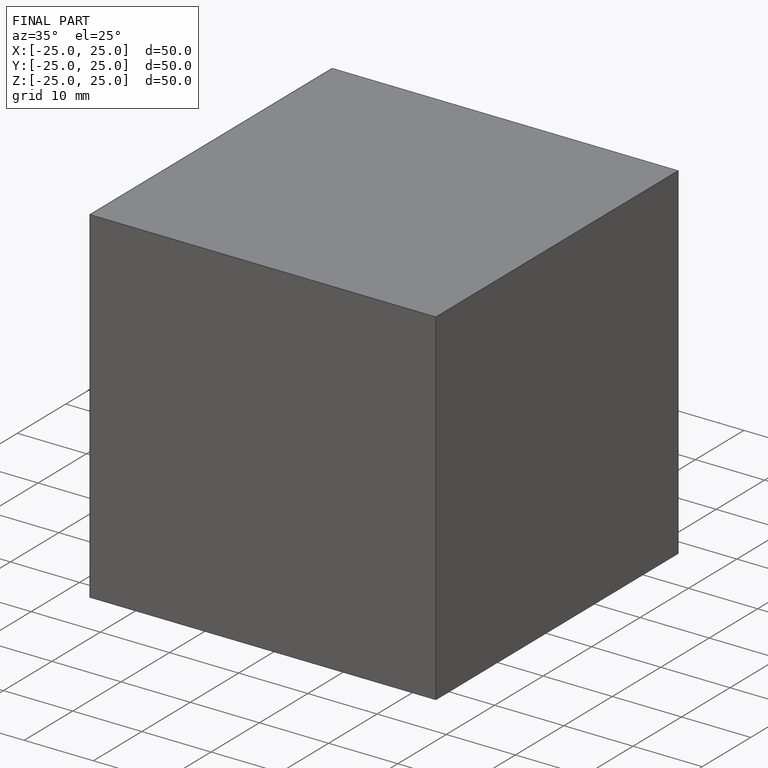
[diagram: finished part — iso view with bounding-box wireframe]
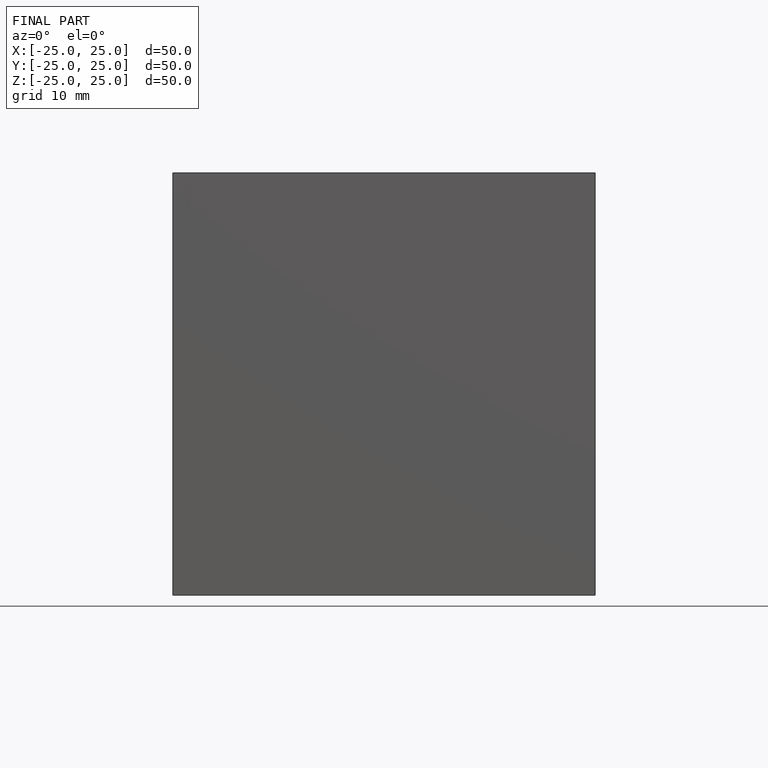
[diagram: finished part — front view with bounding-box wireframe]
